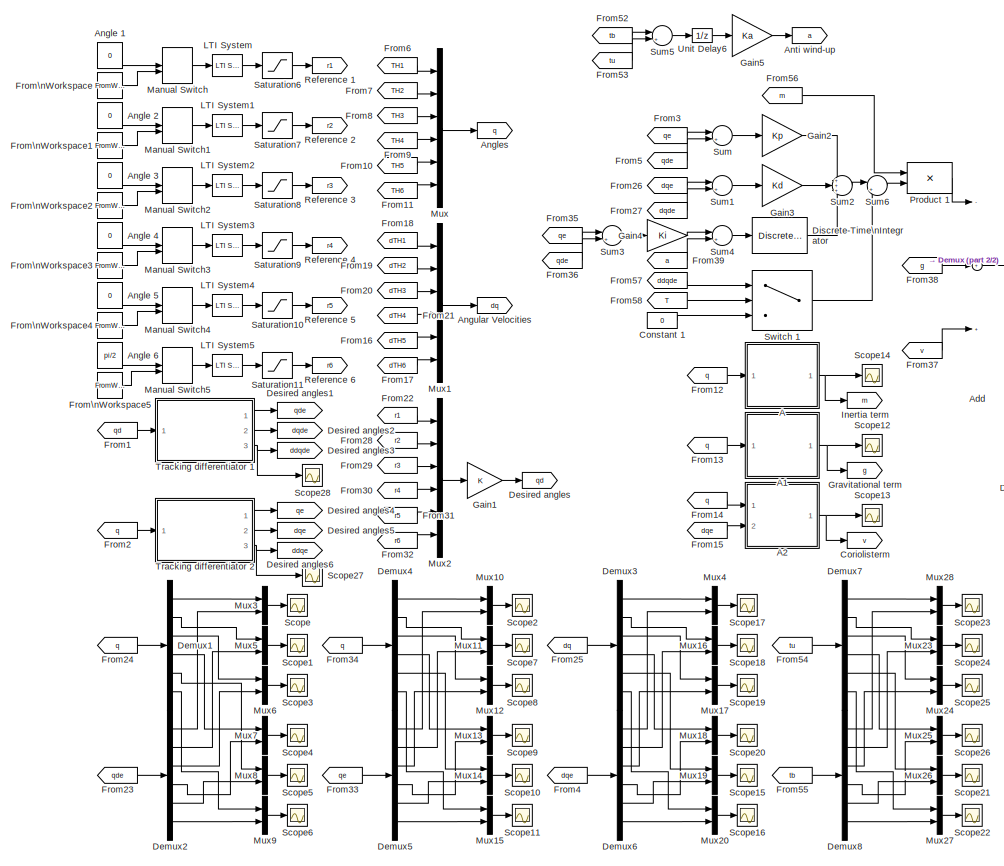
[diagram: root canvas - part 1/2, center side, full height]
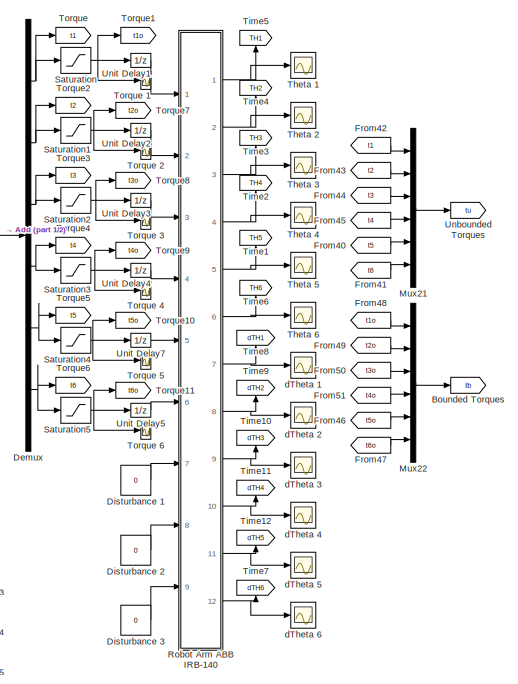
[diagram: root canvas - part 2/2, right side, full height]
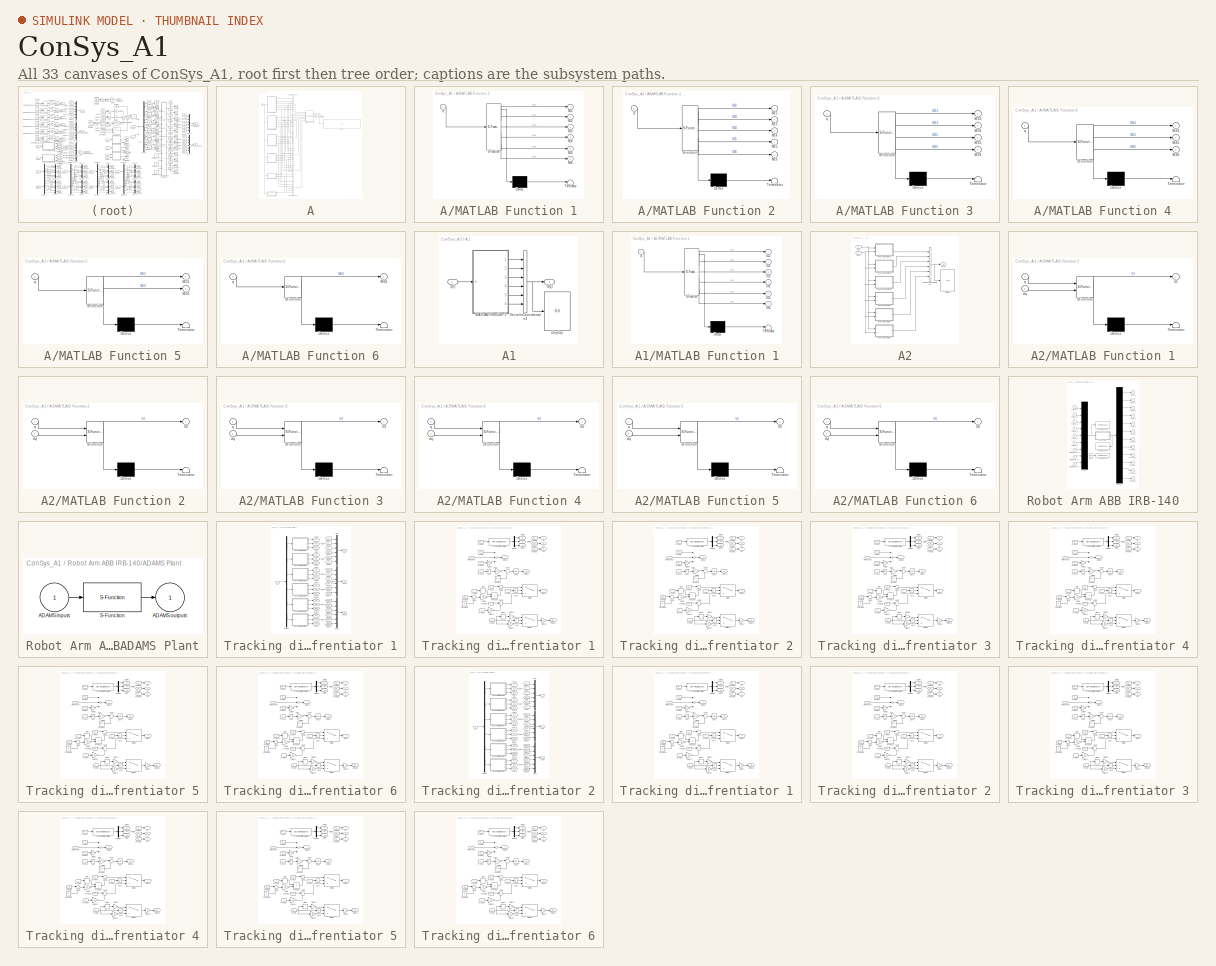
[diagram: thumbnail index - all 33 canvases of the model, root first then tree order]
MODEL ConSys_A1
KIND model
BLOCK [SubSystem] A
  Ports = [1, 1]
  RequestExecContextInheritance = off
  SID = 366
BLOCK [Display] A/Display
  Decimation = 1
  Ports = [1]
  SID = 365
BLOCK [Outport] A/M(q)
  IconDisplay = Port number
  SID = 398
BLOCK [SubSystem] A/MATLAB Function 1
  ErrorFcn = Stateflow.Translate.translate
  PermitHierarchicalResolution = ExplicitOnly
  Ports = [1, 6]
  RequestExecContextInheritance = off
  SFBlockType = MATLAB Function
  SID = 368
  TreatAsAtomicUnit = on
BLOCK [Demux] A/MATLAB Function 1/ Demux 
  Outputs = 1
  Ports = [1, 1]
  SID = 368::13
BLOCK [S-Function] A/MATLAB Function 1/ SFunction 
  EnableBusSupport = on
  FunctionName = sf_sfun
  PortCounts = [1 7]
  Ports = [1, 7]
  SID = 368::12
  Tag = Stateflow S-Function ConSys_A1 2
BLOCK [Terminator] A/MATLAB Function 1/ Terminator 
  SID = 368::14
BLOCK [Outport] A/MATLAB Function 1/M11
  IconDisplay = Port number
  SID = 368::15
BLOCK [Outport] A/MATLAB Function 1/M12
  IconDisplay = Port number
  Port = 2
  SID = 368::16
BLOCK [Outport] A/MATLAB Function 1/M13
  IconDisplay = Port number
  Port = 3
  SID = 368::17
BLOCK [Outport] A/MATLAB Function 1/M14
  IconDisplay = Port number
  Port = 4
  SID = 368::18
BLOCK [Outport] A/MATLAB Function 1/M15
  IconDisplay = Port number
  Port = 5
  SID = 368::19
BLOCK [Outport] A/MATLAB Function 1/M16
  IconDisplay = Port number
  Port = 6
  SID = 368::20
BLOCK [Inport] A/MATLAB Function 1/q
  IconDisplay = Port number
  SID = 368::3
BLOCK [SubSystem] A/MATLAB Function 2
  ErrorFcn = Stateflow.Translate.translate
  PermitHierarchicalResolution = ExplicitOnly
  Ports = [1, 5]
  RequestExecContextInheritance = off
  SFBlockType = MATLAB Function
  SID = 399
  TreatAsAtomicUnit = on
BLOCK [Demux] A/MATLAB Function 2/ Demux 
  Outputs = 1
  Ports = [1, 1]
  SID = 399::13
BLOCK [S-Function] A/MATLAB Function 2/ SFunction 
  EnableBusSupport = on
  FunctionName = sf_sfun
  PortCounts = [1 6]
  Ports = [1, 6]
  SID = 399::12
  Tag = Stateflow S-Function ConSys_A1 1
BLOCK [Terminator] A/MATLAB Function 2/ Terminator 
  SID = 399::14
BLOCK [Outport] A/MATLAB Function 2/M22
  IconDisplay = Port number
  SID = 399::15
BLOCK [Outport] A/MATLAB Function 2/M23
  IconDisplay = Port number
  Port = 2
  SID = 399::16
BLOCK [Outport] A/MATLAB Function 2/M24
  IconDisplay = Port number
  Port = 3
  SID = 399::17
BLOCK [Outport] A/MATLAB Function 2/M25
  IconDisplay = Port number
  Port = 4
  SID = 399::18
BLOCK [Outport] A/MATLAB Function 2/M26
  IconDisplay = Port number
  Port = 5
  SID = 399::19
BLOCK [Inport] A/MATLAB Function 2/q
  IconDisplay = Port number
  SID = 399::3
BLOCK [SubSystem] A/MATLAB Function 3
  ErrorFcn = Stateflow.Translate.translate
  PermitHierarchicalResolution = ExplicitOnly
  Ports = [1, 4]
  RequestExecContextInheritance = off
  SFBlockType = MATLAB Function
  SID = 402
  TreatAsAtomicUnit = on
BLOCK [Demux] A/MATLAB Function 3/ Demux 
  Outputs = 1
  Ports = [1, 1]
  SID = 402::13
BLOCK [S-Function] A/MATLAB Function 3/ SFunction 
  EnableBusSupport = on
  FunctionName = sf_sfun
  PortCounts = [1 5]
  Ports = [1, 5]
  SID = 402::12
  Tag = Stateflow S-Function ConSys_A1 3
BLOCK [Terminator] A/MATLAB Function 3/ Terminator 
  SID = 402::14
BLOCK [Outport] A/MATLAB Function 3/M33
  IconDisplay = Port number
  SID = 402::15
BLOCK [Outport] A/MATLAB Function 3/M34
  IconDisplay = Port number
  Port = 2
  SID = 402::16
BLOCK [Outport] A/MATLAB Function 3/M35
  IconDisplay = Port number
  Port = 3
  SID = 402::17
BLOCK [Outport] A/MATLAB Function 3/M36
  IconDisplay = Port number
  Port = 4
  SID = 402::18
BLOCK [Inport] A/MATLAB Function 3/q
  IconDisplay = Port number
  SID = 402::3
BLOCK [SubSystem] A/MATLAB Function 4
  ErrorFcn = Stateflow.Translate.translate
  PermitHierarchicalResolution = ExplicitOnly
  Ports = [1, 3]
  RequestExecContextInheritance = off
  SFBlockType = MATLAB Function
  SID = 404
  TreatAsAtomicUnit = on
BLOCK [Demux] A/MATLAB Function 4/ Demux 
  Outputs = 1
  Ports = [1, 1]
  SID = 404::13
BLOCK [S-Function] A/MATLAB Function 4/ SFunction 
  EnableBusSupport = on
  FunctionName = sf_sfun
  PortCounts = [1 4]
  Ports = [1, 4]
  SID = 404::12
  Tag = Stateflow S-Function ConSys_A1 4
BLOCK [Terminator] A/MATLAB Function 4/ Terminator 
  SID = 404::14
BLOCK [Outport] A/MATLAB Function 4/M44
  IconDisplay = Port number
  SID = 404::15
BLOCK [Outport] A/MATLAB Function 4/M45
  IconDisplay = Port number
  Port = 2
  SID = 404::16
BLOCK [Outport] A/MATLAB Function 4/M46
  IconDisplay = Port number
  Port = 3
  SID = 404::17
BLOCK [Inport] A/MATLAB Function 4/q
  IconDisplay = Port number
  SID = 404::3
BLOCK [SubSystem] A/MATLAB Function 5
  ErrorFcn = Stateflow.Translate.translate
  PermitHierarchicalResolution = ExplicitOnly
  Ports = [1, 2]
  RequestExecContextInheritance = off
  SFBlockType = MATLAB Function
  SID = 406
  TreatAsAtomicUnit = on
BLOCK [Demux] A/MATLAB Function 5/ Demux 
  Outputs = 1
  Ports = [1, 1]
  SID = 406::13
BLOCK [S-Function] A/MATLAB Function 5/ SFunction 
  EnableBusSupport = on
  FunctionName = sf_sfun
  PortCounts = [1 3]
  Ports = [1, 3]
  SID = 406::12
  Tag = Stateflow S-Function ConSys_A1 5
BLOCK [Terminator] A/MATLAB Function 5/ Terminator 
  SID = 406::14
BLOCK [Outport] A/MATLAB Function 5/M55
  IconDisplay = Port number
  SID = 406::15
BLOCK [Outport] A/MATLAB Function 5/M56
  IconDisplay = Port number
  Port = 2
  SID = 406::16
BLOCK [Inport] A/MATLAB Function 5/q
  IconDisplay = Port number
  SID = 406::3
BLOCK [SubSystem] A/MATLAB Function 6
  ErrorFcn = Stateflow.Translate.translate
  PermitHierarchicalResolution = ExplicitOnly
  Ports = [1, 1]
  RequestExecContextInheritance = off
  SFBlockType = MATLAB Function
  SID = 408
  TreatAsAtomicUnit = on
BLOCK [Demux] A/MATLAB Function 6/ Demux 
  Outputs = 1
  Ports = [1, 1]
  SID = 408::13
BLOCK [S-Function] A/MATLAB Function 6/ SFunction 
  EnableBusSupport = on
  FunctionName = sf_sfun
  PortCounts = [1 2]
  Ports = [1, 2]
  SID = 408::12
  Tag = Stateflow S-Function ConSys_A1 6
BLOCK [Terminator] A/MATLAB Function 6/ Terminator 
  SID = 408::14
BLOCK [Outport] A/MATLAB Function 6/M66
  IconDisplay = Port number
  SID = 408::15
BLOCK [Inport] A/MATLAB Function 6/q
  IconDisplay = Port number
  SID = 408::3
BLOCK [Math] A/Math\nFunction
  Operator = transpose
  Ports = [1, 1]
  SID = 369
BLOCK [Concatenate] A/Matrix\nConcatenate
  ConcatenateDimension = 2
  Mode = Multidimensional array
  NumInputs = 6
  Ports = [6, 1]
  SID = 370
BLOCK [Concatenate] A/Vector\nConcatenate1
  NumInputs = 6
  Ports = [6, 1]
  SID = 401
BLOCK [Concatenate] A/Vector\nConcatenate2
  NumInputs = 6
  Ports = [6, 1]
  SID = 403
BLOCK [Concatenate] A/Vector\nConcatenate3
  NumInputs = 6
  Ports = [6, 1]
  SID = 405
BLOCK [Concatenate] A/Vector\nConcatenate4
  NumInputs = 6
  Ports = [6, 1]
  SID = 400
BLOCK [Concatenate] A/Vector\nConcatenate5
  NumInputs = 6
  Ports = [6, 1]
  SID = 407
BLOCK [Concatenate] A/Vector\nConcatenate6
  NumInputs = 6
  Ports = [6, 1]
  SID = 409
BLOCK [Inport] A/q(t)
  IconDisplay = Port number
  SID = 367
BLOCK [SubSystem] A1
  Ports = [1, 1]
  RequestExecContextInheritance = off
  SID = 410
BLOCK [Display] A1/Display
  Decimation = 1
  Ports = [1]
  SID = 412
BLOCK [Outport] A1/G(q)
  IconDisplay = Port number
  SID = 427
BLOCK [SubSystem] A1/MATLAB Function 1
  ErrorFcn = Stateflow.Translate.translate
  PermitHierarchicalResolution = ExplicitOnly
  Ports = [1, 6]
  RequestExecContextInheritance = off
  SFBlockType = MATLAB Function
  SID = 413
  TreatAsAtomicUnit = on
BLOCK [Demux] A1/MATLAB Function 1/ Demux 
  Outputs = 1
  Ports = [1, 1]
  SID = 413::13
BLOCK [S-Function] A1/MATLAB Function 1/ SFunction 
  EnableBusSupport = on
  FunctionName = sf_sfun
  PortCounts = [1 7]
  Ports = [1, 7]
  SID = 413::12
  Tag = Stateflow S-Function ConSys_A1 7
BLOCK [Terminator] A1/MATLAB Function 1/ Terminator 
  SID = 413::14
BLOCK [Outport] A1/MATLAB Function 1/G11
  IconDisplay = Port number
  SID = 413::15
BLOCK [Outport] A1/MATLAB Function 1/G21
  IconDisplay = Port number
  Port = 2
  SID = 413::16
BLOCK [Outport] A1/MATLAB Function 1/G31
  IconDisplay = Port number
  Port = 3
  SID = 413::17
BLOCK [Outport] A1/MATLAB Function 1/G41
  IconDisplay = Port number
  Port = 4
  SID = 413::18
BLOCK [Outport] A1/MATLAB Function 1/G51
  IconDisplay = Port number
  Port = 5
  SID = 413::19
BLOCK [Outport] A1/MATLAB Function 1/G61
  IconDisplay = Port number
  Port = 6
  SID = 413::20
BLOCK [Inport] A1/MATLAB Function 1/q
  IconDisplay = Port number
  SID = 413::3
BLOCK [Concatenate] A1/Vector\nConcatenate4
  NumInputs = 6
  Ports = [6, 1]
  SID = 424
BLOCK [Inport] A1/q(t)
  IconDisplay = Port number
  SID = 411
BLOCK [SubSystem] A2
  Ports = [2, 1]
  RequestExecContextInheritance = off
  SID = 429
BLOCK [Display] A2/Display
  Decimation = 1
  Ports = [1]
  SID = 431
BLOCK [SubSystem] A2/MATLAB Function 1
  ErrorFcn = Stateflow.Translate.translate
  PermitHierarchicalResolution = ExplicitOnly
  Ports = [2, 1]
  RequestExecContextInheritance = off
  SFBlockType = MATLAB Function
  SID = 432
  TreatAsAtomicUnit = on
BLOCK [Demux] A2/MATLAB Function 1/ Demux 
  Outputs = 1
  Ports = [1, 1]
  SID = 432::13
BLOCK [S-Function] A2/MATLAB Function 1/ SFunction 
  EnableBusSupport = on
  FunctionName = sf_sfun
  PortCounts = [2 2]
  Ports = [2, 2]
  SID = 432::12
  Tag = Stateflow S-Function ConSys_A1 8
BLOCK [Terminator] A2/MATLAB Function 1/ Terminator 
  SID = 432::14
BLOCK [Outport] A2/MATLAB Function 1/V1
  IconDisplay = Port number
  SID = 432::15
BLOCK [Inport] A2/MATLAB Function 1/dq
  IconDisplay = Port number
  Port = 2
  SID = 432::21
BLOCK [Inport] A2/MATLAB Function 1/q
  IconDisplay = Port number
  SID = 432::3
BLOCK [SubSystem] A2/MATLAB Function 2
  ErrorFcn = Stateflow.Translate.translate
  PermitHierarchicalResolution = ExplicitOnly
  Ports = [2, 1]
  RequestExecContextInheritance = off
  SFBlockType = MATLAB Function
  SID = 446
  TreatAsAtomicUnit = on
BLOCK [Demux] A2/MATLAB Function 2/ Demux 
  Outputs = 1
  Ports = [1, 1]
  SID = 446::13
BLOCK [S-Function] A2/MATLAB Function 2/ SFunction 
  EnableBusSupport = on
  FunctionName = sf_sfun
  PortCounts = [2 2]
  Ports = [2, 2]
  SID = 446::12
  Tag = Stateflow S-Function ConSys_A1 9
BLOCK [Terminator] A2/MATLAB Function 2/ Terminator 
  SID = 446::14
BLOCK [Outport] A2/MATLAB Function 2/V2
  IconDisplay = Port number
  SID = 446::15
BLOCK [Inport] A2/MATLAB Function 2/dq
  IconDisplay = Port number
  Port = 2
  SID = 446::21
BLOCK [Inport] A2/MATLAB Function 2/q
  IconDisplay = Port number
  SID = 446::3
BLOCK [SubSystem] A2/MATLAB Function 3
  ErrorFcn = Stateflow.Translate.translate
  PermitHierarchicalResolution = ExplicitOnly
  Ports = [2, 1]
  RequestExecContextInheritance = off
  SFBlockType = MATLAB Function
  SID = 447
  TreatAsAtomicUnit = on
BLOCK [Demux] A2/MATLAB Function 3/ Demux 
  Outputs = 1
  Ports = [1, 1]
  SID = 447::13
BLOCK [S-Function] A2/MATLAB Function 3/ SFunction 
  EnableBusSupport = on
  FunctionName = sf_sfun
  PortCounts = [2 2]
  Ports = [2, 2]
  SID = 447::12
  Tag = Stateflow S-Function ConSys_A1 10
BLOCK [Terminator] A2/MATLAB Function 3/ Terminator 
  SID = 447::14
BLOCK [Outport] A2/MATLAB Function 3/V3
  IconDisplay = Port number
  SID = 447::15
BLOCK [Inport] A2/MATLAB Function 3/dq
  IconDisplay = Port number
  Port = 2
  SID = 447::21
BLOCK [Inport] A2/MATLAB Function 3/q
  IconDisplay = Port number
  SID = 447::3
BLOCK [SubSystem] A2/MATLAB Function 4
  ErrorFcn = Stateflow.Translate.translate
  PermitHierarchicalResolution = ExplicitOnly
  Ports = [2, 1]
  RequestExecContextInheritance = off
  SFBlockType = MATLAB Function
  SID = 448
  TreatAsAtomicUnit = on
BLOCK [Demux] A2/MATLAB Function 4/ Demux 
  Outputs = 1
  Ports = [1, 1]
  SID = 448::13
BLOCK [S-Function] A2/MATLAB Function 4/ SFunction 
  EnableBusSupport = on
  FunctionName = sf_sfun
  PortCounts = [2 2]
  Ports = [2, 2]
  SID = 448::12
  Tag = Stateflow S-Function ConSys_A1 11
BLOCK [Terminator] A2/MATLAB Function 4/ Terminator 
  SID = 448::14
BLOCK [Outport] A2/MATLAB Function 4/V4
  IconDisplay = Port number
  SID = 448::15
BLOCK [Inport] A2/MATLAB Function 4/dq
  IconDisplay = Port number
  Port = 2
  SID = 448::21
BLOCK [Inport] A2/MATLAB Function 4/q
  IconDisplay = Port number
  SID = 448::3
BLOCK [SubSystem] A2/MATLAB Function 5
  ErrorFcn = Stateflow.Translate.translate
  PermitHierarchicalResolution = ExplicitOnly
  Ports = [2, 1]
  RequestExecContextInheritance = off
  SFBlockType = MATLAB Function
  SID = 449
  TreatAsAtomicUnit = on
BLOCK [Demux] A2/MATLAB Function 5/ Demux 
  Outputs = 1
  Ports = [1, 1]
  SID = 449::13
BLOCK [S-Function] A2/MATLAB Function 5/ SFunction 
  EnableBusSupport = on
  FunctionName = sf_sfun
  PortCounts = [2 2]
  Ports = [2, 2]
  SID = 449::12
  Tag = Stateflow S-Function ConSys_A1 12
BLOCK [Terminator] A2/MATLAB Function 5/ Terminator 
  SID = 449::14
BLOCK [Outport] A2/MATLAB Function 5/V5
  IconDisplay = Port number
  SID = 449::15
BLOCK [Inport] A2/MATLAB Function 5/dq
  IconDisplay = Port number
  Port = 2
  SID = 449::21
BLOCK [Inport] A2/MATLAB Function 5/q
  IconDisplay = Port number
  SID = 449::3
BLOCK [SubSystem] A2/MATLAB Function 6
  ErrorFcn = Stateflow.Translate.translate
  PermitHierarchicalResolution = ExplicitOnly
  Ports = [2, 1]
  RequestExecContextInheritance = off
  SFBlockType = MATLAB Function
  SID = 450
  TreatAsAtomicUnit = on
BLOCK [Demux] A2/MATLAB Function 6/ Demux 
  Outputs = 1
  Ports = [1, 1]
  SID = 450::13
BLOCK [S-Function] A2/MATLAB Function 6/ SFunction 
  EnableBusSupport = on
  FunctionName = sf_sfun
  PortCounts = [2 2]
  Ports = [2, 2]
  SID = 450::12
  Tag = Stateflow S-Function ConSys_A1 13
BLOCK [Terminator] A2/MATLAB Function 6/ Terminator 
  SID = 450::14
BLOCK [Outport] A2/MATLAB Function 6/V6
  IconDisplay = Port number
  SID = 450::15
BLOCK [Inport] A2/MATLAB Function 6/dq
  IconDisplay = Port number
  Port = 2
  SID = 450::21
BLOCK [Inport] A2/MATLAB Function 6/q
  IconDisplay = Port number
  SID = 450::3
BLOCK [Outport] A2/V(q)
  IconDisplay = Port number
  SID = 434
BLOCK [Concatenate] A2/Vector\nConcatenate4
  NumInputs = 6
  Ports = [6, 1]
  SID = 433
BLOCK [Inport] A2/dq(t)
  IconDisplay = Port number
  Port = 2
  SID = 436
BLOCK [Inport] A2/q(t)
  IconDisplay = Port number
  SID = 430
BLOCK [Sum] Add
  InputSameDT = off
  Inputs = -++
  OutDataTypeStr = Inherit: Inherit via internal rule
  Ports = [3, 1]
  SID = 1411
  SaturateOnIntegerOverflow = off
BLOCK [Constant] Angle 1
  SID = 2309
  Value = 0
BLOCK [Constant] Angle 2
  SID = 2310
  Value = 0
BLOCK [Constant] Angle 3
  SID = 2311
  Value = 0
BLOCK [Constant] Angle 4
  SID = 2312
  Value = 0
BLOCK [Constant] Angle 5
  SID = 2313
  Value = 0
BLOCK [Constant] Angle 6
  SID = 2314
  Value = pi/2
BLOCK [Goto] Angles
  GotoTag = q
  SID = 363
BLOCK [Goto] Angular Velocities
  GotoTag = dq
  SID = 438
BLOCK [Goto] Anti wind-up
  GotoTag = a
  SID = 2218
BLOCK [Goto] Bounded Torques
  GotoTag = tb
  SID = 2213
BLOCK [Constant] Constant 1
  SID = 2317
  Value = 0
BLOCK [Goto] Coriolisterm
  GotoTag = v
  SID = 2175
BLOCK [Demux] Demux
  DisplayOption = bar
  Outputs = 6
  Ports = [1, 6]
  SID = 465
BLOCK [Demux] Demux1
  DisplayOption = bar
  Outputs = 6
  Ports = [1, 6]
  SID = 1420
BLOCK [Demux] Demux2
  DisplayOption = bar
  Outputs = 6
  Ports = [1, 6]
  SID = 1421
BLOCK [Demux] Demux3
  DisplayOption = bar
  Outputs = 6
  Ports = [1, 6]
  SID = 2146
BLOCK [Demux] Demux4
  DisplayOption = bar
  Outputs = 6
  Ports = [1, 6]
  SID = 1617
BLOCK [Demux] Demux5
  DisplayOption = bar
  Outputs = 6
  Ports = [1, 6]
  SID = 1618
BLOCK [Demux] Demux6
  DisplayOption = bar
  Outputs = 6
  Ports = [1, 6]
  SID = 2147
BLOCK [Demux] Demux7
  DisplayOption = bar
  Outputs = 6
  Ports = [1, 6]
  SID = 2222
BLOCK [Demux] Demux8
  DisplayOption = bar
  Outputs = 6
  Ports = [1, 6]
  SID = 2223
BLOCK [Goto] Desired angles
  GotoTag = qd
  SID = 451
BLOCK [Goto] Desired angles1
  GotoTag = qde
  SID = 1046
BLOCK [Goto] Desired angles2
  GotoTag = dqde
  SID = 1047
BLOCK [Goto] Desired angles3
  GotoTag = ddqde
  SID = 1048
BLOCK [Goto] Desired angles4
  GotoTag = qe
  SID = 1786
BLOCK [Goto] Desired angles5
  GotoTag = dqe
  SID = 1787
BLOCK [Goto] Desired angles6
  GotoTag = ddqe
  SID = 1788
BLOCK [DiscreteIntegrator] Discrete-Time\nIntegrator
  ICPrevOutput = DiscIntNeverNeededParam
  ICPrevScaledInput = DiscIntNeverNeededParam
  InitialCondition = [0 0 0 0 0 0]'
  IntegratorMethod = Integration: Trapezoidal
  Ports = [1, 1]
  SID = 2171
  SampleTime = Ts
BLOCK [Constant] Disturbance 1
  SID = 197
  Value = 0
BLOCK [Constant] Disturbance 2
  SID = 198
  Value = 0
BLOCK [Constant] Disturbance 3
  SID = 1746
  Value = 0
BLOCK [From] From1
  GotoTag = qd
  SID = 805
BLOCK [From] From10
  GotoTag = TH5
  SID = 360
BLOCK [From] From11
  GotoTag = TH6
  SID = 361
BLOCK [From] From12
  GotoTag = q
  SID = 364
BLOCK [From] From13
  GotoTag = q
  SID = 428
BLOCK [From] From14
  GotoTag = q
  SID = 435
BLOCK [From] From15
  GotoTag = dqe
  SID = 437
BLOCK [From] From16
  GotoTag = dTH5
  SID = 439
BLOCK [From] From17
  GotoTag = dTH6
  SID = 440
BLOCK [From] From18
  GotoTag = dTH1
  SID = 441
BLOCK [From] From19
  GotoTag = dTH2
  SID = 442
BLOCK [From] From2
  GotoTag = q
  SID = 1789
BLOCK [From] From20
  GotoTag = dTH3
  SID = 443
BLOCK [From] From21
  GotoTag = dTH4
  SID = 444
BLOCK [From] From22
  GotoTag = r1
  SID = 1611
BLOCK [From] From23
  GotoTag = qde
  SID = 1417
BLOCK [From] From24
  GotoTag = q
  SID = 1418
BLOCK [From] From25
  GotoTag = dq
  SID = 2149
BLOCK [From] From26
  GotoTag = dqe
  SID = 2163
BLOCK [From] From27
  GotoTag = dqde
  SID = 2164
BLOCK [From] From28
  GotoTag = r2
  SID = 1612
BLOCK [From] From29
  GotoTag = r3
  SID = 1613
BLOCK [From] From3
  GotoTag = qe
  SID = 1583
BLOCK [From] From30
  GotoTag = r4
  SID = 1614
BLOCK [From] From31
  GotoTag = r5
  SID = 1615
BLOCK [From] From32
  GotoTag = r6
  SID = 1616
BLOCK [From] From33
  GotoTag = qe
  SID = 1619
BLOCK [From] From34
  GotoTag = q
  SID = 1620
BLOCK [From] From35
  GotoTag = qe
  SID = 2167
BLOCK [From] From36
  GotoTag = qde
  SID = 2168
BLOCK [From] From37
  GotoTag = v
  SID = 2176
BLOCK [From] From38
  GotoTag = g
  SID = 2174
BLOCK [From] From39
  GotoTag = a
  SID = 2196
BLOCK [From] From4
  GotoTag = dqe
  SID = 2148
BLOCK [From] From40
  GotoTag = t5
  SID = 2199
BLOCK [From] From41
  GotoTag = t6
  SID = 2200
BLOCK [From] From42
  GotoTag = t1
  SID = 2201
BLOCK [From] From43
  GotoTag = t2
  SID = 2202
BLOCK [From] From44
  GotoTag = t3
  SID = 2203
BLOCK [From] From45
  GotoTag = t4
  SID = 2204
BLOCK [From] From46
  GotoTag = t5o
  SID = 2206
BLOCK [From] From47
  GotoTag = t6o
  SID = 2207
BLOCK [From] From48
  GotoTag = t1o
  SID = 2208
BLOCK [From] From49
  GotoTag = t2o
  SID = 2209
BLOCK [From] From5
  GotoTag = qde
  SID = 1584
BLOCK [From] From50
  GotoTag = t3o
  SID = 2210
BLOCK [From] From51
  GotoTag = t4o
  SID = 2211
BLOCK [From] From52
  GotoTag = tb
  SID = 2214
BLOCK [From] From53
  GotoTag = tu
  SID = 2215
BLOCK [From] From54
  GotoTag = tu
  SID = 2224
BLOCK [From] From55
  GotoTag = tb
  SID = 2225
BLOCK [From] From56
  GotoTag = m
  SID = 2283
BLOCK [From] From57
  GotoTag = ddqde
  SID = 2284
BLOCK [From] From58
  GotoTag = T
  SID = 2316
BLOCK [From] From6
  GotoTag = TH1
  SID = 356
BLOCK [From] From7
  GotoTag = TH2
  SID = 357
BLOCK [From] From8
  GotoTag = TH3
  SID = 358
BLOCK [From] From9
  GotoTag = TH4
  SID = 359
BLOCK [FromWorkspace] From\nWorkspace
  SID = 2271
  VariableName = R1
  ZeroCross = on
BLOCK [FromWorkspace] From\nWorkspace1
  SID = 2272
  VariableName = R2
  ZeroCross = on
BLOCK [FromWorkspace] From\nWorkspace2
  SID = 2273
  VariableName = R3
  ZeroCross = on
BLOCK [FromWorkspace] From\nWorkspace3
  SID = 2274
  VariableName = R4
  ZeroCross = on
BLOCK [FromWorkspace] From\nWorkspace4
  SID = 2275
  VariableName = R5
  ZeroCross = on
BLOCK [FromWorkspace] From\nWorkspace5
  SID = 2276
  VariableName = R6
  ZeroCross = on
BLOCK [Gain] Gain1
  OutDataTypeStr = Inherit: Inherit via internal rule
  ParamDataTypeStr = Inherit: Inherit via internal rule
  SID = 2145
  SaturateOnIntegerOverflow = off
BLOCK [Gain] Gain2
  Gain = Kp
  Multiplication = Matrix(K*u)
  OutDataTypeStr = Inherit: Inherit via internal rule
  ParamDataTypeStr = Inherit: Inherit via internal rule
  SID = 2162
  SaturateOnIntegerOverflow = off
BLOCK [Gain] Gain3
  Gain = Kd
  Multiplication = Matrix(K*u)
  OutDataTypeStr = Inherit: Inherit via internal rule
  ParamDataTypeStr = Inherit: Inherit via internal rule
  SID = 2165
  SaturateOnIntegerOverflow = off
BLOCK [Gain] Gain4
  Gain = Ki
  Multiplication = Matrix(K*u)
  OutDataTypeStr = Inherit: Inherit via internal rule
  ParamDataTypeStr = Inherit: Inherit via internal rule
  SID = 2169
  SaturateOnIntegerOverflow = off
BLOCK [Gain] Gain5
  Gain = Ka
  Multiplication = Matrix(K*u)
  OutDataTypeStr = Inherit: Inherit via internal rule
  ParamDataTypeStr = Inherit: Inherit via internal rule
  SID = 2217
  SaturateOnIntegerOverflow = off
BLOCK [Goto] Gravitational term
  GotoTag = g
  SID = 2173
BLOCK [Goto] Inertia term
  GotoTag = m
  SID = 2197
BLOCK [Reference] LTI System  REF=cstblocks/LTI System
  IC = []
  Ports = [1, 1]
  SID = 1634
  SourceBlock = cstblocks/LTI System
  SourceType = LTI Block
  sys = F1z
BLOCK [Reference] LTI System1  REF=cstblocks/LTI System
  IC = []
  Ports = [1, 1]
  SID = 1635
  SourceBlock = cstblocks/LTI System
  SourceType = LTI Block
  sys = F2z
BLOCK [Reference] LTI System2  REF=cstblocks/LTI System
  IC = []
  Ports = [1, 1]
  SID = 1636
  SourceBlock = cstblocks/LTI System
  SourceType = LTI Block
  sys = F3z
BLOCK [Reference] LTI System3  REF=cstblocks/LTI System
  IC = []
  Ports = [1, 1]
  SID = 1637
  SourceBlock = cstblocks/LTI System
  SourceType = LTI Block
  sys = F4z
BLOCK [Reference] LTI System4  REF=cstblocks/LTI System
  IC = []
  Ports = [1, 1]
  SID = 1638
  SourceBlock = cstblocks/LTI System
  SourceType = LTI Block
  sys = F5z
BLOCK [Reference] LTI System5  REF=cstblocks/LTI System
  IC = []
  Ports = [1, 1]
  SID = 1639
  SourceBlock = cstblocks/LTI System
  SourceType = LTI Block
  sys = F6z
BLOCK [ManualSwitch] Manual Switch
  CurrentSetting = 0
  SID = 1589
BLOCK [ManualSwitch] Manual Switch1
  CurrentSetting = 0
  SID = 1592
BLOCK [ManualSwitch] Manual Switch2
  CurrentSetting = 0
  SID = 1596
BLOCK [ManualSwitch] Manual Switch3
  CurrentSetting = 0
  SID = 1600
BLOCK [ManualSwitch] Manual Switch4
  CurrentSetting = 0
  SID = 1604
BLOCK [ManualSwitch] Manual Switch5
  CurrentSetting = 0
  SID = 1608
BLOCK [Mux] Mux
  DisplayOption = bar
  Inputs = 6
  Ports = [6, 1]
  SID = 362
BLOCK [Mux] Mux1
  DisplayOption = bar
  Inputs = 6
  Ports = [6, 1]
  SID = 445
BLOCK [Mux] Mux10
  DisplayOption = bar
  Inputs = 2
  Ports = [2, 1]
  SID = 1621
BLOCK [Mux] Mux11
  DisplayOption = bar
  Inputs = 2
  Ports = [2, 1]
  SID = 1622
BLOCK [Mux] Mux12
  DisplayOption = bar
  Inputs = 2
  Ports = [2, 1]
  SID = 1623
BLOCK [Mux] Mux13
  DisplayOption = bar
  Inputs = 2
  Ports = [2, 1]
  SID = 1624
BLOCK [Mux] Mux14
  DisplayOption = bar
  Inputs = 2
  Ports = [2, 1]
  SID = 1625
BLOCK [Mux] Mux15
  DisplayOption = bar
  Inputs = 2
  Ports = [2, 1]
  SID = 1626
BLOCK [Mux] Mux16
  DisplayOption = bar
  Inputs = 2
  Ports = [2, 1]
  SID = 2151
BLOCK [Mux] Mux17
  DisplayOption = bar
  Inputs = 2
  Ports = [2, 1]
  SID = 2152
BLOCK [Mux] Mux18
  DisplayOption = bar
  Inputs = 2
  Ports = [2, 1]
  SID = 2153
BLOCK [Mux] Mux19
  DisplayOption = bar
  Inputs = 2
  Ports = [2, 1]
  SID = 2154
BLOCK [Mux] Mux2
  DisplayOption = bar
  Inputs = 6
  Ports = [6, 1]
  SID = 458
BLOCK [Mux] Mux20
  DisplayOption = bar
  Inputs = 2
  Ports = [2, 1]
  SID = 2155
BLOCK [Mux] Mux21
  DisplayOption = bar
  Inputs = 6
  Ports = [6, 1]
  SID = 2205
BLOCK [Mux] Mux22
  DisplayOption = bar
  Inputs = 6
  Ports = [6, 1]
  SID = 2212
BLOCK [Mux] Mux23
  DisplayOption = bar
  Inputs = 2
  Ports = [2, 1]
  SID = 2226
BLOCK [Mux] Mux24
  DisplayOption = bar
  Inputs = 2
  Ports = [2, 1]
  SID = 2227
BLOCK [Mux] Mux25
  DisplayOption = bar
  Inputs = 2
  Ports = [2, 1]
  SID = 2228
BLOCK [Mux] Mux26
  DisplayOption = bar
  Inputs = 2
  Ports = [2, 1]
  SID = 2229
BLOCK [Mux] Mux27
  DisplayOption = bar
  Inputs = 2
  Ports = [2, 1]
  SID = 2230
BLOCK [Mux] Mux28
  DisplayOption = bar
  Inputs = 2
  Ports = [2, 1]
  SID = 2231
BLOCK [Mux] Mux3
  DisplayOption = bar
  Inputs = 2
  Ports = [2, 1]
  SID = 1422
BLOCK [Mux] Mux4
  DisplayOption = bar
  Inputs = 2
  Ports = [2, 1]
  SID = 2150
BLOCK [Mux] Mux5
  DisplayOption = bar
  Inputs = 2
  Ports = [2, 1]
  SID = 1492
BLOCK [Mux] Mux6
  DisplayOption = bar
  Inputs = 2
  Ports = [2, 1]
  SID = 1494
BLOCK [Mux] Mux7
  DisplayOption = bar
  Inputs = 2
  Ports = [2, 1]
  SID = 1495
BLOCK [Mux] Mux8
  DisplayOption = bar
  Inputs = 2
  Ports = [2, 1]
  SID = 1498
BLOCK [Mux] Mux9
  DisplayOption = bar
  Inputs = 2
  Ports = [2, 1]
  SID = 1499
BLOCK [Product] Product 1
  InputSameDT = off
  Multiplication = Matrix(*)
  OutDataTypeStr = Inherit: Inherit via internal rule
  Ports = [2, 1]
  RndMeth = Floor
  SID = 2281
  SaturateOnIntegerOverflow = off
BLOCK [Goto] Reference 1
  GotoTag = r1
  SID = 1590
BLOCK [Goto] Reference 2
  GotoTag = r2
  SID = 1593
BLOCK [Goto] Reference 3
  GotoTag = r3
  SID = 1597
BLOCK [Goto] Reference 4
  GotoTag = r4
  SID = 1601
BLOCK [Goto] Reference 5
  GotoTag = r5
  SID = 1605
BLOCK [Goto] Reference 6
  GotoTag = r6
  SID = 1609
BLOCK [SubSystem] Robot Arm ABB IRB-140
  Ports = [9, 12]
  RequestExecContextInheritance = off
  SID = 2318
  ShowPortLabels = none
BLOCK [SubSystem] Robot Arm ABB IRB-140/ADAMS Plant
  InitFcn = clear mex
  LoadFcn = %check based on dialog box setting for when setting by popup menu                                             \nif exist('ADAMS_solver_type')                                                                                 \n  if strcmp(ADAMS_solver_type,'C++')                                                                          \n    set_param(gcb,'exetyp','C++');                              ...<+4531ch>
  OpenFcn = open_system(gcb,'mask')                                                                                                                          \nif not(exist('set_some_params_states'))                                                                                                          \n                                                                                                          ...<+634ch>
  Ports = [1, 1]
  RequestExecContextInheritance = off
  SID = 2328
BLOCK [Inport] Robot Arm ABB IRB-140/ADAMS Plant/ADAMS inputs
  IconDisplay = Port number
  SID = 2329
BLOCK [Outport] Robot Arm ABB IRB-140/ADAMS Plant/ADAMS outputs
  IconDisplay = Port number
  InitialOutput = 0
  SID = 2331
BLOCK [S-Function] Robot Arm ABB IRB-140/ADAMS Plant/S-Function
  EnableBusSupport = off
  FunctionName = adams_plant
  Parameters = exevie,exesol,stat,outfil,nampre,o_rate,nam_in,namout,dft,modsim,modani,dt_out,inicmd,exetyp,comtyp,ada_host, workdir,pin_interp_order,pout_extrap_order,pin_extrap_order,pout_interp_order,simulink_lead_cosim
  Ports = [1, 1]
  SID = 2330
  StopFcn = clear mex
BLOCK [Clock] Robot Arm ABB IRB-140/Clock
  SID = 2332
BLOCK [Demux] Robot Arm ABB IRB-140/Demux
  Outputs = 12
  Ports = [1, 12]
  SID = 2333
BLOCK [Inport] Robot Arm ABB IRB-140/Disturbance_1
  IconDisplay = Port number
  Port = 7
  SID = 2325
BLOCK [Inport] Robot Arm ABB IRB-140/Disturbance_2
  IconDisplay = Port number
  Port = 8
  SID = 2326
BLOCK [Inport] Robot Arm ABB IRB-140/Disturbance_3
  IconDisplay = Port number
  Port = 9
  SID = 2327
BLOCK [Mux] Robot Arm ABB IRB-140/Mux
  Inputs = 9
  Ports = [9, 1]
  SID = 2334
BLOCK [ToWorkspace] Robot Arm ABB IRB-140/T To Workspace
  MaxDataPoints = 100000
  Ports = [1]
  SID = 2335
  VariableName = ADAMS_tout
BLOCK [Outport] Robot Arm ABB IRB-140/Theta_1
  IconDisplay = Port number
  SID = 2338
BLOCK [Outport] Robot Arm ABB IRB-140/Theta_2
  IconDisplay = Port number
  Port = 2
  SID = 2339
BLOCK [Outport] Robot Arm ABB IRB-140/Theta_3
  IconDisplay = Port number
  Port = 3
  SID = 2340
BLOCK [Outport] Robot Arm ABB IRB-140/Theta_4
  IconDisplay = Port number
  Port = 4
  SID = 2341
BLOCK [Outport] Robot Arm ABB IRB-140/Theta_5
  IconDisplay = Port number
  Port = 5
  SID = 2342
BLOCK [Outport] Robot Arm ABB IRB-140/Theta_6
  IconDisplay = Port number
  Port = 6
  SID = 2343
BLOCK [Inport] Robot Arm ABB IRB-140/Torque_1
  IconDisplay = Port number
  SID = 2319
BLOCK [Inport] Robot Arm ABB IRB-140/Torque_2
  IconDisplay = Port number
  Port = 2
  SID = 2320
BLOCK [Inport] Robot Arm ABB IRB-140/Torque_3
  IconDisplay = Port number
  Port = 3
  SID = 2321
BLOCK [Inport] Robot Arm ABB IRB-140/Torque_4
  IconDisplay = Port number
  Port = 4
  SID = 2322
BLOCK [Inport] Robot Arm ABB IRB-140/Torque_5
  IconDisplay = Port number
  Port = 5
  SID = 2323
BLOCK [Inport] Robot Arm ABB IRB-140/Torque_6
  IconDisplay = Port number
  Port = 6
  SID = 2324
BLOCK [ToWorkspace] Robot Arm ABB IRB-140/U To Workspace
  MaxDataPoints = 100000
  Ports = [1]
  SID = 2336
  VariableName = ADAMS_uout
BLOCK [ToWorkspace] Robot Arm ABB IRB-140/Y To Workspace
  MaxDataPoints = 100000
  Ports = [1]
  SID = 2337
  VariableName = ADAMS_yout
BLOCK [Outport] Robot Arm ABB IRB-140/dTheta_1
  IconDisplay = Port number
  Port = 7
  SID = 2344
BLOCK [Outport] Robot Arm ABB IRB-140/dTheta_2
  IconDisplay = Port number
  Port = 8
  SID = 2345
BLOCK [Outport] Robot Arm ABB IRB-140/dTheta_3
  IconDisplay = Port number
  Port = 9
  SID = 2346
BLOCK [Outport] Robot Arm ABB IRB-140/dTheta_4
  IconDisplay = Port number
  Port = 10
  SID = 2347
BLOCK [Outport] Robot Arm ABB IRB-140/dTheta_5
  IconDisplay = Port number
  Port = 11
  SID = 2348
BLOCK [Outport] Robot Arm ABB IRB-140/dTheta_6
  IconDisplay = Port number
  Port = 12
  SID = 2349
BLOCK [Saturate] Saturation
  InputPortMap = u0
  LowerLimit = -400
  Ports = [1, 1]
  SID = 1429
  UpperLimit = 400
BLOCK [Saturate] Saturation1
  InputPortMap = u0
  LowerLimit = -300
  Ports = [1, 1]
  SID = 1431
  UpperLimit = 300
BLOCK [Saturate] Saturation10
  InputPortMap = u0
  LowerLimit = -120
  Ports = [1, 1]
  SID = 1643
  UpperLimit = 120
BLOCK [Saturate] Saturation11
  InputPortMap = u0
  LowerLimit = -400
  Ports = [1, 1]
  SID = 1644
  UpperLimit = 400
BLOCK [Saturate] Saturation2
  InputPortMap = u0
  LowerLimit = -250
  Ports = [1, 1]
  SID = 1432
  UpperLimit = 250
BLOCK [Saturate] Saturation3
  InputPortMap = u0
  LowerLimit = -50
  Ports = [1, 1]
  SID = 1433
  UpperLimit = 50
BLOCK [Saturate] Saturation4
  InputPortMap = u0
  LowerLimit = -8
  Ports = [1, 1]
  SID = 1434
  UpperLimit = 8
BLOCK [Saturate] Saturation5
  InputPortMap = u0
  LowerLimit = -0.3
  Ports = [1, 1]
  SID = 1435
  UpperLimit = 0.3
BLOCK [Saturate] Saturation6
  InputPortMap = u0
  LowerLimit = -180
  Ports = [1, 1]
  SID = 1633
  UpperLimit = 180
BLOCK [Saturate] Saturation7
  InputPortMap = u0
  LowerLimit = -100
  Ports = [1, 1]
  SID = 1640
  UpperLimit = 100
BLOCK [Saturate] Saturation8
  InputPortMap = u0
  LowerLimit = -140
  Ports = [1, 1]
  SID = 1641
  UpperLimit = 140
BLOCK [Saturate] Saturation9
  InputPortMap = u0
  LowerLimit = -200*pi/180
  Ports = [1, 1]
  SID = 1642
  UpperLimit = 200*pi/180
BLOCK [Scope] Scope
  DataFormat = StructureWithTime
  Floating = off
  LimitDataPoints = off
  NumInputPorts = 1
  Ports = [1]
  SID = 1419
  SampleTime = 0
  SaveName = ScopeData18
  ShowLegends = off
  YMax = 2
  YMin = -2
BLOCK [Scope] Scope1
  DataFormat = StructureWithTime
  Floating = off
  LimitDataPoints = off
  NumInputPorts = 1
  Ports = [1]
  SID = 1493
  SampleTime = 0
  SaveName = ScopeData19
  ShowLegends = off
  YMax = 3
  YMin = -3
  ZoomMode = xonly
BLOCK [Scope] Scope10
  DataFormat = StructureWithTime
  Floating = off
  LimitDataPoints = off
  NumInputPorts = 1
  Ports = [1]
  SID = 1631
  SampleTime = 0
  SaveName = ScopeData20
  ShowLegends = off
  YMax = 2
  YMin = -2
  ZoomMode = xonly
BLOCK [Scope] Scope11
  DataFormat = StructureWithTime
  Floating = off
  LimitDataPoints = off
  NumInputPorts = 1
  Ports = [1]
  SID = 1632
  SampleTime = 0
  SaveName = ScopeData25
  ShowLegends = off
  YMin = -2
  ZoomMode = xonly
BLOCK [Scope] Scope12
  DataFormat = StructureWithTime
  Floating = off
  LimitDataPoints = off
  NumInputPorts = 1
  Ports = [1]
  SID = 2141
  SampleTime = 0
  SaveName = ScopeData30
  ShowLegends = off
  YMax = 4
  YMin = -2
BLOCK [Scope] Scope13
  DataFormat = StructureWithTime
  Floating = off
  LimitDataPoints = off
  NumInputPorts = 1
  Ports = [1]
  SID = 2142
  SampleTime = 0
  SaveName = ScopeData31
  ShowLegends = off
  YMax = 4
  YMin = -2
BLOCK [Scope] Scope14
  DataFormat = StructureWithTime
  Floating = off
  LimitDataPoints = off
  NumInputPorts = 1
  Ports = [1]
  SID = 2143
  SampleTime = 0
  SaveName = ScopeData32
  ShowLegends = off
  YMax = 4
  YMin = -2
BLOCK [Scope] Scope15
  DataFormat = StructureWithTime
  Floating = off
  LimitDataPoints = off
  NumInputPorts = 1
  Ports = [1]
  SID = 2156
  SampleTime = 0
  SaveName = ScopeData33
  ShowLegends = off
  YMax = 2
  YMin = -2
  ZoomMode = xonly
BLOCK [Scope] Scope16
  DataFormat = StructureWithTime
  Floating = off
  LimitDataPoints = off
  NumInputPorts = 1
  Ports = [1]
  SID = 2157
  SampleTime = 0
  SaveName = ScopeData34
  ShowLegends = off
  YMin = -2
  ZoomMode = xonly
BLOCK [Scope] Scope17
  DataFormat = StructureWithTime
  Floating = off
  LimitDataPoints = off
  NumInputPorts = 1
  Ports = [1]
  SID = 2158
  SampleTime = 0
  SaveName = ScopeData35
  ShowLegends = off
  YMax = 2
  YMin = -1
BLOCK [Scope] Scope18
  DataFormat = StructureWithTime
  Floating = off
  LimitDataPoints = off
  NumInputPorts = 1
  Ports = [1]
  SID = 2159
  SampleTime = 0
  SaveName = ScopeData36
  ShowLegends = off
  YMax = 2
  YMin = -1
  ZoomMode = xonly
BLOCK [Scope] Scope19
  DataFormat = StructureWithTime
  Floating = off
  LimitDataPoints = off
  NumInputPorts = 1
  Ports = [1]
  SID = 2160
  SampleTime = 0
  SaveName = ScopeData37
  ShowLegends = off
  YMax = 2
  YMin = -1
  ZoomMode = xonly
BLOCK [Scope] Scope2
  DataFormat = StructureWithTime
  Floating = off
  LimitDataPoints = off
  NumInputPorts = 1
  Ports = [1]
  SID = 1627
  SampleTime = 0
  SaveName = ScopeData26
  ShowLegends = off
  YMax = 2
  YMin = -1
BLOCK [Scope] Scope20
  DataFormat = StructureWithTime
  Floating = off
  LimitDataPoints = off
  NumInputPorts = 1
  Ports = [1]
  SID = 2161
  SampleTime = 0
  SaveName = ScopeData38
  ShowLegends = off
  YMax = 2
  YMin = -1
  ZoomMode = xonly
BLOCK [Scope] Scope21
  DataFormat = StructureWithTime
  Floating = off
  LimitDataPoints = off
  NumInputPorts = 1
  Ports = [1]
  SID = 2232
  SampleTime = 0
  SaveName = ScopeData39
  ShowLegends = off
  YMax = 2
  YMin = -2
  ZoomMode = xonly
BLOCK [Scope] Scope22
  DataFormat = StructureWithTime
  Floating = off
  LimitDataPoints = off
  NumInputPorts = 1
  Ports = [1]
  SID = 2233
  SampleTime = 0
  SaveName = ScopeData40
  ShowLegends = off
  YMax = 1
  YMin = -1
  ZoomMode = xonly
BLOCK [Scope] Scope23
  DataFormat = StructureWithTime
  Floating = off
  LimitDataPoints = off
  NumInputPorts = 1
  Ports = [1]
  SID = 2234
  SampleTime = 0
  SaveName = ScopeData41
  ShowLegends = off
  YMax = 2
  YMin = -1
BLOCK [Scope] Scope24
  DataFormat = StructureWithTime
  Floating = off
  LimitDataPoints = off
  NumInputPorts = 1
  Ports = [1]
  SID = 2235
  SampleTime = 0
  SaveName = ScopeData42
  ShowLegends = off
  YMax = 2
  YMin = -1
  ZoomMode = xonly
BLOCK [Scope] Scope25
  DataFormat = StructureWithTime
  Floating = off
  LimitDataPoints = off
  NumInputPorts = 1
  Ports = [1]
  SID = 2236
  SampleTime = 0
  SaveName = ScopeData43
  ShowLegends = off
  YMax = 2
  YMin = -1
  ZoomMode = xonly
BLOCK [Scope] Scope26
  DataFormat = StructureWithTime
  Floating = off
  LimitDataPoints = off
  NumInputPorts = 1
  Ports = [1]
  SID = 2237
  SampleTime = 0
  SaveName = ScopeData44
  ShowLegends = off
  YMax = 2
  YMin = -1
  ZoomMode = xonly
BLOCK [Scope] Scope27
  DataFormat = StructureWithTime
  Floating = off
  LimitDataPoints = off
  NumInputPorts = 1
  Ports = [1]
  SID = 2285
  SampleTime = 0
  SaveName = ScopeData45
  ShowLegends = off
  YMax = 2
  YMin = -2
BLOCK [Scope] Scope28
  DataFormat = StructureWithTime
  Floating = off
  LimitDataPoints = off
  NumInputPorts = 1
  Ports = [1]
  SID = 2286
  SampleTime = 0
  SaveName = ScopeData46
  ShowLegends = off
  YMax = 20
  YMin = -20
BLOCK [Scope] Scope3
  DataFormat = StructureWithTime
  Floating = off
  LimitDataPoints = off
  NumInputPorts = 1
  Ports = [1]
  SID = 1496
  SampleTime = 0
  SaveName = ScopeData21
  ShowLegends = off
  YMax = 2
  YMin = -2
  ZoomMode = xonly
BLOCK [Scope] Scope4
  DataFormat = StructureWithTime
  Floating = off
  LimitDataPoints = off
  NumInputPorts = 1
  Ports = [1]
  SID = 1497
  SampleTime = 0
  SaveName = ScopeData22
  ShowLegends = off
  YMax = 2
  YMin = -2
  ZoomMode = xonly
BLOCK [Scope] Scope5
  DataFormat = StructureWithTime
  Floating = off
  LimitDataPoints = off
  NumInputPorts = 1
  Ports = [1]
  SID = 1500
  SampleTime = 0
  SaveName = ScopeData23
  ShowLegends = off
  YMax = 2
  YMin = -2
  ZoomMode = yonly
BLOCK [Scope] Scope6
  DataFormat = StructureWithTime
  Floating = off
  LimitDataPoints = off
  NumInputPorts = 1
  Ports = [1]
  SID = 1501
  SampleTime = 0
  SaveName = ScopeData24
  ShowLegends = off
  ZoomMode = yonly
BLOCK [Scope] Scope7
  DataFormat = StructureWithTime
  Floating = off
  LimitDataPoints = off
  NumInputPorts = 1
  Ports = [1]
  SID = 1628
  SampleTime = 0
  SaveName = ScopeData27
  ShowLegends = off
  YMax = 2
  YMin = -1
  ZoomMode = xonly
BLOCK [Scope] Scope8
  DataFormat = StructureWithTime
  Floating = off
  LimitDataPoints = off
  NumInputPorts = 1
  Ports = [1]
  SID = 1629
  SampleTime = 0
  SaveName = ScopeData28
  ShowLegends = off
  YMax = 2
  YMin = -1
  ZoomMode = xonly
BLOCK [Scope] Scope9
  DataFormat = StructureWithTime
  Floating = off
  LimitDataPoints = off
  NumInputPorts = 1
  Ports = [1]
  SID = 1630
  SampleTime = 0
  SaveName = ScopeData29
  ShowLegends = off
  YMax = 2
  YMin = -1
  ZoomMode = xonly
BLOCK [Sum] Sum
  IconShape = round
  InputSameDT = off
  Inputs = |+-
  OutDataTypeStr = Inherit: Inherit via internal rule
  Ports = [2, 1]
  SID = 1585
  SaturateOnIntegerOverflow = off
BLOCK [Sum] Sum1
  IconShape = round
  InputSameDT = off
  Inputs = |+-
  OutDataTypeStr = Inherit: Inherit via internal rule
  Ports = [2, 1]
  SID = 2166
  SaturateOnIntegerOverflow = off
BLOCK [Sum] Sum2
  IconShape = round
  InputSameDT = off
  Inputs = +++
  OutDataTypeStr = Inherit: Inherit via internal rule
  Ports = [3, 1]
  SID = 2282
  SaturateOnIntegerOverflow = off
BLOCK [Sum] Sum3
  IconShape = round
  InputSameDT = off
  Inputs = |+-
  OutDataTypeStr = Inherit: Inherit via internal rule
  Ports = [2, 1]
  SID = 2170
  SaturateOnIntegerOverflow = off
BLOCK [Sum] Sum4
  IconShape = round
  InputSameDT = off
  Inputs = |++
  OutDataTypeStr = Inherit: Inherit via internal rule
  Ports = [2, 1]
  SID = 2195
  SaturateOnIntegerOverflow = off
BLOCK [Sum] Sum5
  IconShape = round
  InputSameDT = off
  Inputs = |+-
  OutDataTypeStr = Inherit: Inherit via internal rule
  Ports = [2, 1]
  SID = 2216
  SaturateOnIntegerOverflow = off
BLOCK [Sum] Sum6
  IconShape = round
  InputSameDT = off
  Inputs = |+-
  OutDataTypeStr = Inherit: Inherit via internal rule
  Ports = [2, 1]
  SID = 2299
  SaturateOnIntegerOverflow = off
BLOCK [Switch] Switch 1
  Criteria = u2 > Threshold
  InputSameDT = off
  SID = 2315
  SaturateOnIntegerOverflow = off
  Threshold = 5
BLOCK [Scope] Theta 1
  Floating = off
  LimitDataPoints = off
  NumInputPorts = 1
  Ports = [1]
  SID = 1
  SaveName = ScopeData1
  ShowLegends = off
  YMax = 0.6
  YMin = -0.6
  ZoomMode = xonly
BLOCK [Scope] Theta 2
  Floating = off
  LimitDataPoints = off
  NumInputPorts = 1
  Ports = [1]
  SID = 2
  SaveName = ScopeData2
  ShowLegends = off
  YMax = 1
  YMin = -1
BLOCK [Scope] Theta 3
  Floating = off
  LimitDataPoints = off
  NumInputPorts = 1
  Ports = [1]
  SID = 3
  SaveName = ScopeData3
  ShowLegends = off
BLOCK [Scope] Theta 4
  Floating = off
  LimitDataPoints = off
  NumInputPorts = 1
  Ports = [1]
  SID = 4
  SaveName = ScopeData4
  ShowLegends = off
BLOCK [Scope] Theta 5
  Floating = off
  LimitDataPoints = off
  NumInputPorts = 1
  Ports = [1]
  SID = 5
  SaveName = ScopeData5
  ShowLegends = off
BLOCK [Scope] Theta 6
  Floating = off
  LimitDataPoints = off
  NumInputPorts = 1
  Ports = [1]
  SID = 6
  ShowLegends = off
  YMax = 100
  YMin = -100
BLOCK [Goto] Time1
  GotoTag = TH5
  SID = 184
BLOCK [Goto] Time10
  GotoTag = dTH3
  SID = 349
BLOCK [Goto] Time11
  GotoTag = dTH4
  SID = 351
BLOCK [Goto] Time12
  GotoTag = dTH5
  SID = 353
BLOCK [Goto] Time2
  GotoTag = TH4
  SID = 185
BLOCK [Goto] Time3
  GotoTag = TH3
  SID = 186
BLOCK [Goto] Time4
  GotoTag = TH2
  SID = 187
BLOCK [Goto] Time5
  GotoTag = TH1
  SID = 188
BLOCK [Goto] Time6
  GotoTag = TH6
  SID = 183
BLOCK [Goto] Time7
  GotoTag = dTH6
  SID = 344
BLOCK [Goto] Time8
  GotoTag = dTH1
  SID = 345
BLOCK [Goto] Time9
  GotoTag = dTH2
  SID = 347
BLOCK [Goto] Torque
  GotoTag = t1
  SID = 2177
BLOCK [Scope] Torque 1
  Floating = off
  LimitDataPoints = off
  NumInputPorts = 1
  Ports = [1]
  SID = 279
  SaveName = ScopeData6
  ShowLegends = off
  YMax = 400
  YMin = -400
BLOCK [Scope] Torque 2
  Floating = off
  LimitDataPoints = off
  NumInputPorts = 1
  Ports = [1]
  SID = 2187
  SaveName = ScopeData7
  ShowLegends = off
  YMax = 400
  YMin = -400
BLOCK [Scope] Torque 3
  Floating = off
  LimitDataPoints = off
  NumInputPorts = 1
  Ports = [1]
  SID = 2188
  SaveName = ScopeData8
  ShowLegends = off
  YMax = 400
  YMin = -400
BLOCK [Scope] Torque 4
  Floating = off
  LimitDataPoints = off
  NumInputPorts = 1
  Ports = [1]
  SID = 2189
  SaveName = ScopeData9
  ShowLegends = off
  YMax = 20
  YMin = -20
BLOCK [Scope] Torque 5
  Floating = off
  LimitDataPoints = off
  NumInputPorts = 1
  Ports = [1]
  SID = 2190
  SaveName = ScopeData10
  ShowLegends = off
  YMax = 400
  YMin = -400
BLOCK [Scope] Torque 6
  Floating = off
  LimitDataPoints = off
  NumInputPorts = 1
  Ports = [1]
  SID = 2191
  SaveName = ScopeData11
  ShowLegends = off
  YMax = 0.3
  YMin = -0.3
BLOCK [Goto] Torque1
  GotoTag = t1o
  SID = 2178
BLOCK [Goto] Torque10
  GotoTag = t5o
  SID = 2193
BLOCK [Goto] Torque11
  GotoTag = t6o
  SID = 2194
BLOCK [Goto] Torque2
  GotoTag = t2
  SID = 2179
BLOCK [Goto] Torque3
  GotoTag = t3
  SID = 2180
BLOCK [Goto] Torque4
  GotoTag = t4
  SID = 2181
BLOCK [Goto] Torque5
  GotoTag = t5
  SID = 2182
BLOCK [Goto] Torque6
  GotoTag = t6
  SID = 2183
BLOCK [Goto] Torque7
  GotoTag = t2o
  SID = 2184
BLOCK [Goto] Torque8
  GotoTag = t3o
  SID = 2185
BLOCK [Goto] Torque9
  GotoTag = t4o
  SID = 2192
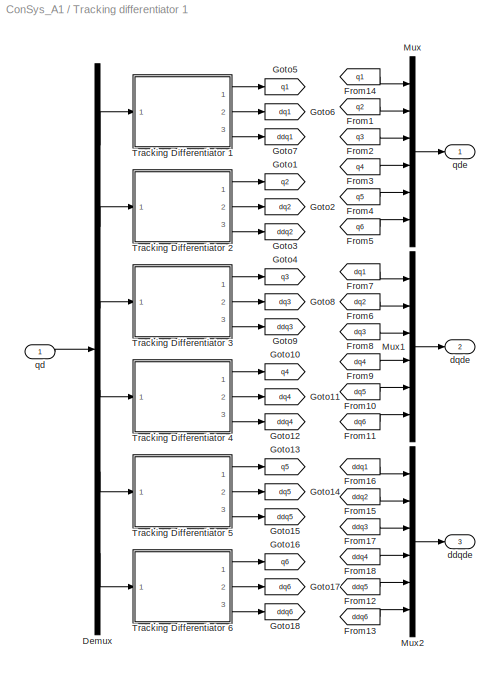
BLOCK [SubSystem] Tracking differentiator 1
  Ports = [1, 3]
  RequestExecContextInheritance = off
  SID = 797
BLOCK [Demux] Tracking differentiator 1/Demux
  DisplayOption = bar
  Outputs = 6
  Ports = [1, 6]
  SID = 808
BLOCK [From] Tracking differentiator 1/From1
  GotoTag = q2
  SID = 1027
BLOCK [From] Tracking differentiator 1/From10
  GotoTag = dq5
  SID = 1037
BLOCK [From] Tracking differentiator 1/From11
  GotoTag = dq6
  SID = 1038
BLOCK [From] Tracking differentiator 1/From12
  GotoTag = ddq5
  SID = 1039
BLOCK [From] Tracking differentiator 1/From13
  GotoTag = ddq6
  SID = 1040
BLOCK [From] Tracking differentiator 1/From14
  GotoTag = q1
  SID = 1026
BLOCK [From] Tracking differentiator 1/From15
  GotoTag = ddq2
  SID = 1041
BLOCK [From] Tracking differentiator 1/From16
  GotoTag = ddq1
  SID = 1042
BLOCK [From] Tracking differentiator 1/From17
  GotoTag = ddq3
  SID = 1043
BLOCK [From] Tracking differentiator 1/From18
  GotoTag = ddq4
  SID = 1044
BLOCK [From] Tracking differentiator 1/From2
  GotoTag = q3
  SID = 1028
BLOCK [From] Tracking differentiator 1/From3
  GotoTag = q4
  SID = 1029
BLOCK [From] Tracking differentiator 1/From4
  GotoTag = q5
  SID = 1030
BLOCK [From] Tracking differentiator 1/From5
  GotoTag = q6
  SID = 1031
BLOCK [From] Tracking differentiator 1/From6
  GotoTag = dq2
  SID = 1033
BLOCK [From] Tracking differentiator 1/From7
  GotoTag = dq1
  SID = 1034
BLOCK [From] Tracking differentiator 1/From8
  GotoTag = dq3
  SID = 1035
BLOCK [From] Tracking differentiator 1/From9
  GotoTag = dq4
  SID = 1036
BLOCK [Goto] Tracking differentiator 1/Goto1
  GotoTag = q2
  SID = 527
BLOCK [Goto] Tracking differentiator 1/Goto10
  GotoTag = q4
  SID = 863
BLOCK [Goto] Tracking differentiator 1/Goto11
  GotoTag = dq4
  SID = 864
BLOCK [Goto] Tracking differentiator 1/Goto12
  GotoTag = ddq4
  SID = 865
BLOCK [Goto] Tracking differentiator 1/Goto13
  GotoTag = q5
  SID = 917
BLOCK [Goto] Tracking differentiator 1/Goto14
  GotoTag = dq5
  SID = 918
BLOCK [Goto] Tracking differentiator 1/Goto15
  GotoTag = ddq5
  SID = 919
BLOCK [Goto] Tracking differentiator 1/Goto16
  GotoTag = q6
  SID = 971
BLOCK [Goto] Tracking differentiator 1/Goto17
  GotoTag = dq6
  SID = 972
BLOCK [Goto] Tracking differentiator 1/Goto18
  GotoTag = ddq6
  SID = 973
BLOCK [Goto] Tracking differentiator 1/Goto2
  GotoTag = dq2
  SID = 528
BLOCK [Goto] Tracking differentiator 1/Goto3
  GotoTag = ddq2
  SID = 529
BLOCK [Goto] Tracking differentiator 1/Goto4
  GotoTag = q3
  SID = 809
BLOCK [Goto] Tracking differentiator 1/Goto5
  GotoTag = q1
  SID = 473
BLOCK [Goto] Tracking differentiator 1/Goto6
  GotoTag = dq1
  SID = 474
BLOCK [Goto] Tracking differentiator 1/Goto7
  GotoTag = ddq1
  SID = 475
BLOCK [Goto] Tracking differentiator 1/Goto8
  GotoTag = dq3
  SID = 810
BLOCK [Goto] Tracking differentiator 1/Goto9
  GotoTag = ddq3
  SID = 811
BLOCK [Mux] Tracking differentiator 1/Mux
  DisplayOption = bar
  Inputs = 6
  Ports = [6, 1]
  SID = 1025
BLOCK [Mux] Tracking differentiator 1/Mux1
  DisplayOption = bar
  Inputs = 6
  Ports = [6, 1]
  SID = 1032
BLOCK [Mux] Tracking differentiator 1/Mux2
  DisplayOption = bar
  Inputs = 6
  Ports = [6, 1]
  SID = 1045
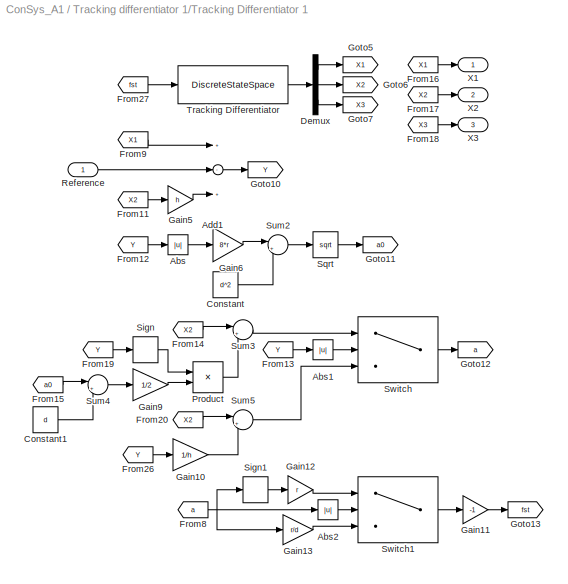
BLOCK [SubSystem] Tracking differentiator 1/Tracking Differentiator 1
  Ports = [1, 3]
  RequestExecContextInheritance = off
  SID = 476
BLOCK [Abs] Tracking differentiator 1/Tracking Differentiator 1/Abs
  SID = 478
  SaturateOnIntegerOverflow = off
BLOCK [Abs] Tracking differentiator 1/Tracking Differentiator 1/Abs1
  SID = 479
  SaturateOnIntegerOverflow = off
BLOCK [Abs] Tracking differentiator 1/Tracking Differentiator 1/Abs2
  SID = 480
  SaturateOnIntegerOverflow = off
BLOCK [Sum] Tracking differentiator 1/Tracking Differentiator 1/Add1
  InputSameDT = off
  Inputs = +-+
  OutDataTypeStr = Inherit: Inherit via internal rule
  Ports = [3, 1]
  SID = 481
  SaturateOnIntegerOverflow = off
BLOCK [Constant] Tracking differentiator 1/Tracking Differentiator 1/Constant
  SID = 482
  Value = d^2
BLOCK [Constant] Tracking differentiator 1/Tracking Differentiator 1/Constant1
  SID = 483
  Value = d
BLOCK [Demux] Tracking differentiator 1/Tracking Differentiator 1/Demux
  DisplayOption = bar
  Outputs = 3
  Ports = [1, 3]
  SID = 484
BLOCK [From] Tracking differentiator 1/Tracking Differentiator 1/From11
  GotoTag = X2
  SID = 485
BLOCK [From] Tracking differentiator 1/Tracking Differentiator 1/From12
  GotoTag = Y
  SID = 486
BLOCK [From] Tracking differentiator 1/Tracking Differentiator 1/From13
  GotoTag = Y
  SID = 487
BLOCK [From] Tracking differentiator 1/Tracking Differentiator 1/From14
  GotoTag = X2
  SID = 488
BLOCK [From] Tracking differentiator 1/Tracking Differentiator 1/From15
  GotoTag = a0
  SID = 489
BLOCK [From] Tracking differentiator 1/Tracking Differentiator 1/From16
  GotoTag = X1
  SID = 490
BLOCK [From] Tracking differentiator 1/Tracking Differentiator 1/From17
  GotoTag = X2
  SID = 491
BLOCK [From] Tracking differentiator 1/Tracking Differentiator 1/From18
  GotoTag = X3
  SID = 492
BLOCK [From] Tracking differentiator 1/Tracking Differentiator 1/From19
  GotoTag = Y
  SID = 493
BLOCK [From] Tracking differentiator 1/Tracking Differentiator 1/From20
  GotoTag = X2
  SID = 494
BLOCK [From] Tracking differentiator 1/Tracking Differentiator 1/From26
  GotoTag = Y
  SID = 495
BLOCK [From] Tracking differentiator 1/Tracking Differentiator 1/From27
  GotoTag = fst
  SID = 496
BLOCK [From] Tracking differentiator 1/Tracking Differentiator 1/From8
  GotoTag = a
  SID = 497
BLOCK [From] Tracking differentiator 1/Tracking Differentiator 1/From9
  GotoTag = X1
  SID = 498
BLOCK [Gain] Tracking differentiator 1/Tracking Differentiator 1/Gain10
  Gain = 1/h
  OutDataTypeStr = Inherit: Inherit via internal rule
  ParamDataTypeStr = Inherit: Inherit via internal rule
  SID = 499
  SaturateOnIntegerOverflow = off
BLOCK [Gain] Tracking differentiator 1/Tracking Differentiator 1/Gain11
  Gain = -1
  OutDataTypeStr = Inherit: Inherit via internal rule
  ParamDataTypeStr = Inherit: Inherit via internal rule
  SID = 500
  SaturateOnIntegerOverflow = off
BLOCK [Gain] Tracking differentiator 1/Tracking Differentiator 1/Gain12
  Gain = r
  OutDataTypeStr = Inherit: Inherit via internal rule
  ParamDataTypeStr = Inherit: Inherit via internal rule
  SID = 501
  SaturateOnIntegerOverflow = off
BLOCK [Gain] Tracking differentiator 1/Tracking Differentiator 1/Gain13
  Gain = r/d
  OutDataTypeStr = Inherit: Inherit via internal rule
  ParamDataTypeStr = Inherit: Inherit via internal rule
  SID = 502
  SaturateOnIntegerOverflow = off
BLOCK [Gain] Tracking differentiator 1/Tracking Differentiator 1/Gain5
  Gain = h
  OutDataTypeStr = Inherit: Inherit via internal rule
  ParamDataTypeStr = Inherit: Inherit via internal rule
  SID = 503
  SaturateOnIntegerOverflow = off
BLOCK [Gain] Tracking differentiator 1/Tracking Differentiator 1/Gain6
  Gain = 8*r
  OutDataTypeStr = Inherit: Inherit via internal rule
  ParamDataTypeStr = Inherit: Inherit via internal rule
  SID = 504
  SaturateOnIntegerOverflow = off
BLOCK [Gain] Tracking differentiator 1/Tracking Differentiator 1/Gain9
  Gain = 1/2
  OutDataTypeStr = Inherit: Inherit via internal rule
  ParamDataTypeStr = Inherit: Inherit via internal rule
  SID = 505
  SaturateOnIntegerOverflow = off
BLOCK [Goto] Tracking differentiator 1/Tracking Differentiator 1/Goto10
  GotoTag = Y
  SID = 506
BLOCK [Goto] Tracking differentiator 1/Tracking Differentiator 1/Goto11
  GotoTag = a0
  SID = 507
BLOCK [Goto] Tracking differentiator 1/Tracking Differentiator 1/Goto12
  GotoTag = a
  SID = 508
BLOCK [Goto] Tracking differentiator 1/Tracking Differentiator 1/Goto13
  GotoTag = fst
  SID = 509
BLOCK [Goto] Tracking differentiator 1/Tracking Differentiator 1/Goto5
  GotoTag = X1
  SID = 510
BLOCK [Goto] Tracking differentiator 1/Tracking Differentiator 1/Goto6
  GotoTag = X2
  SID = 511
BLOCK [Goto] Tracking differentiator 1/Tracking Differentiator 1/Goto7
  GotoTag = X3
  SID = 512
BLOCK [Product] Tracking differentiator 1/Tracking Differentiator 1/Product
  InputSameDT = off
  OutDataTypeStr = Inherit: Inherit via internal rule
  Ports = [2, 1]
  RndMeth = Floor
  SID = 513
  SaturateOnIntegerOverflow = off
BLOCK [Inport] Tracking differentiator 1/Tracking Differentiator 1/Reference
  IconDisplay = Port number
  SID = 477
BLOCK [Signum] Tracking differentiator 1/Tracking Differentiator 1/Sign
  SID = 514
BLOCK [Signum] Tracking differentiator 1/Tracking Differentiator 1/Sign1
  SID = 515
BLOCK [Sqrt] Tracking differentiator 1/Tracking Differentiator 1/Sqrt
  SID = 516
BLOCK [Sum] Tracking differentiator 1/Tracking Differentiator 1/Sum2
  IconShape = round
  InputSameDT = off
  Inputs = |++
  OutDataTypeStr = Inherit: Inherit via internal rule
  Ports = [2, 1]
  SID = 517
  SaturateOnIntegerOverflow = off
BLOCK [Sum] Tracking differentiator 1/Tracking Differentiator 1/Sum3
  IconShape = round
  InputSameDT = off
  Inputs = |++
  OutDataTypeStr = Inherit: Inherit via internal rule
  Ports = [2, 1]
  SID = 518
  SaturateOnIntegerOverflow = off
BLOCK [Sum] Tracking differentiator 1/Tracking Differentiator 1/Sum4
  IconShape = round
  InputSameDT = off
  Inputs = |+-
  OutDataTypeStr = Inherit: Inherit via internal rule
  Ports = [2, 1]
  SID = 519
  SaturateOnIntegerOverflow = off
BLOCK [Sum] Tracking differentiator 1/Tracking Differentiator 1/Sum5
  IconShape = round
  InputSameDT = off
  Inputs = |++
  OutDataTypeStr = Inherit: Inherit via internal rule
  Ports = [2, 1]
  SID = 520
  SaturateOnIntegerOverflow = off
BLOCK [Switch] Tracking differentiator 1/Tracking Differentiator 1/Switch
  Criteria = u2 > Threshold
  InputSameDT = off
  SID = 521
  SaturateOnIntegerOverflow = off
  Threshold = d0
BLOCK [Switch] Tracking differentiator 1/Tracking Differentiator 1/Switch1
  Criteria = u2 > Threshold
  InputSameDT = off
  SID = 522
  SaturateOnIntegerOverflow = off
  Threshold = d
BLOCK [DiscreteStateSpace] Tracking differentiator 1/Tracking Differentiator 1/Tracking Differentiator
  A = TD.a
  B = TD.b
  C = TD.c
  D = TD.d
  SID = 523
  SampleTime = Ts
BLOCK [Outport] Tracking differentiator 1/Tracking Differentiator 1/X1
  IconDisplay = Port number
  SID = 524
BLOCK [Outport] Tracking differentiator 1/Tracking Differentiator 1/X2
  IconDisplay = Port number
  Port = 2
  SID = 525
BLOCK [Outport] Tracking differentiator 1/Tracking Differentiator 1/X3
  IconDisplay = Port number
  Port = 3
  SID = 526
BLOCK [SubSystem] Tracking differentiator 1/Tracking Differentiator 2
  Ports = [1, 3]
  RequestExecContextInheritance = off
  SID = 530
BLOCK [Abs] Tracking differentiator 1/Tracking Differentiator 2/Abs
  SID = 532
  SaturateOnIntegerOverflow = off
BLOCK [Abs] Tracking differentiator 1/Tracking Differentiator 2/Abs1
  SID = 533
  SaturateOnIntegerOverflow = off
BLOCK [Abs] Tracking differentiator 1/Tracking Differentiator 2/Abs2
  SID = 534
  SaturateOnIntegerOverflow = off
BLOCK [Sum] Tracking differentiator 1/Tracking Differentiator 2/Add1
  InputSameDT = off
  Inputs = +-+
  OutDataTypeStr = Inherit: Inherit via internal rule
  Ports = [3, 1]
  SID = 535
  SaturateOnIntegerOverflow = off
BLOCK [Constant] Tracking differentiator 1/Tracking Differentiator 2/Constant
  SID = 536
  Value = d^2
BLOCK [Constant] Tracking differentiator 1/Tracking Differentiator 2/Constant1
  SID = 537
  Value = d
BLOCK [Demux] Tracking differentiator 1/Tracking Differentiator 2/Demux
  DisplayOption = bar
  Outputs = 3
  Ports = [1, 3]
  SID = 538
BLOCK [From] Tracking differentiator 1/Tracking Differentiator 2/From11
  GotoTag = X2
  SID = 539
BLOCK [From] Tracking differentiator 1/Tracking Differentiator 2/From12
  GotoTag = Y
  SID = 540
BLOCK [From] Tracking differentiator 1/Tracking Differentiator 2/From13
  GotoTag = Y
  SID = 541
BLOCK [From] Tracking differentiator 1/Tracking Differentiator 2/From14
  GotoTag = X2
  SID = 542
BLOCK [From] Tracking differentiator 1/Tracking Differentiator 2/From15
  GotoTag = a0
  SID = 543
BLOCK [From] Tracking differentiator 1/Tracking Differentiator 2/From16
  GotoTag = X1
  SID = 544
BLOCK [From] Tracking differentiator 1/Tracking Differentiator 2/From17
  GotoTag = X2
  SID = 545
BLOCK [From] Tracking differentiator 1/Tracking Differentiator 2/From18
  GotoTag = X3
  SID = 546
BLOCK [From] Tracking differentiator 1/Tracking Differentiator 2/From19
  GotoTag = Y
  SID = 547
BLOCK [From] Tracking differentiator 1/Tracking Differentiator 2/From20
  GotoTag = X2
  SID = 548
BLOCK [From] Tracking differentiator 1/Tracking Differentiator 2/From26
  GotoTag = Y
  SID = 549
BLOCK [From] Tracking differentiator 1/Tracking Differentiator 2/From27
  GotoTag = fst
  SID = 550
BLOCK [From] Tracking differentiator 1/Tracking Differentiator 2/From8
  GotoTag = a
  SID = 551
BLOCK [From] Tracking differentiator 1/Tracking Differentiator 2/From9
  GotoTag = X1
  SID = 552
BLOCK [Gain] Tracking differentiator 1/Tracking Differentiator 2/Gain10
  Gain = 1/h
  OutDataTypeStr = Inherit: Inherit via internal rule
  ParamDataTypeStr = Inherit: Inherit via internal rule
  SID = 553
  SaturateOnIntegerOverflow = off
BLOCK [Gain] Tracking differentiator 1/Tracking Differentiator 2/Gain11
  Gain = -1
  OutDataTypeStr = Inherit: Inherit via internal rule
  ParamDataTypeStr = Inherit: Inherit via internal rule
  SID = 554
  SaturateOnIntegerOverflow = off
BLOCK [Gain] Tracking differentiator 1/Tracking Differentiator 2/Gain12
  Gain = r
  OutDataTypeStr = Inherit: Inherit via internal rule
  ParamDataTypeStr = Inherit: Inherit via internal rule
  SID = 555
  SaturateOnIntegerOverflow = off
BLOCK [Gain] Tracking differentiator 1/Tracking Differentiator 2/Gain13
  Gain = r/d
  OutDataTypeStr = Inherit: Inherit via internal rule
  ParamDataTypeStr = Inherit: Inherit via internal rule
  SID = 556
  SaturateOnIntegerOverflow = off
BLOCK [Gain] Tracking differentiator 1/Tracking Differentiator 2/Gain5
  Gain = h
  OutDataTypeStr = Inherit: Inherit via internal rule
  ParamDataTypeStr = Inherit: Inherit via internal rule
  SID = 557
  SaturateOnIntegerOverflow = off
BLOCK [Gain] Tracking differentiator 1/Tracking Differentiator 2/Gain6
  Gain = 8*r
  OutDataTypeStr = Inherit: Inherit via internal rule
  ParamDataTypeStr = Inherit: Inherit via internal rule
  SID = 558
  SaturateOnIntegerOverflow = off
BLOCK [Gain] Tracking differentiator 1/Tracking Differentiator 2/Gain9
  Gain = 1/2
  OutDataTypeStr = Inherit: Inherit via internal rule
  ParamDataTypeStr = Inherit: Inherit via internal rule
  SID = 559
  SaturateOnIntegerOverflow = off
BLOCK [Goto] Tracking differentiator 1/Tracking Differentiator 2/Goto10
  GotoTag = Y
  SID = 560
BLOCK [Goto] Tracking differentiator 1/Tracking Differentiator 2/Goto11
  GotoTag = a0
  SID = 561
BLOCK [Goto] Tracking differentiator 1/Tracking Differentiator 2/Goto12
  GotoTag = a
  SID = 562
BLOCK [Goto] Tracking differentiator 1/Tracking Differentiator 2/Goto13
  GotoTag = fst
  SID = 563
BLOCK [Goto] Tracking differentiator 1/Tracking Differentiator 2/Goto5
  GotoTag = X1
  SID = 564
BLOCK [Goto] Tracking differentiator 1/Tracking Differentiator 2/Goto6
  GotoTag = X2
  SID = 565
BLOCK [Goto] Tracking differentiator 1/Tracking Differentiator 2/Goto7
  GotoTag = X3
  SID = 566
BLOCK [Product] Tracking differentiator 1/Tracking Differentiator 2/Product
  InputSameDT = off
  OutDataTypeStr = Inherit: Inherit via internal rule
  Ports = [2, 1]
  RndMeth = Floor
  SID = 567
  SaturateOnIntegerOverflow = off
BLOCK [Inport] Tracking differentiator 1/Tracking Differentiator 2/Reference
  IconDisplay = Port number
  SID = 531
BLOCK [Signum] Tracking differentiator 1/Tracking Differentiator 2/Sign
  SID = 568
BLOCK [Signum] Tracking differentiator 1/Tracking Differentiator 2/Sign1
  SID = 569
BLOCK [Sqrt] Tracking differentiator 1/Tracking Differentiator 2/Sqrt
  SID = 570
BLOCK [Sum] Tracking differentiator 1/Tracking Differentiator 2/Sum2
  IconShape = round
  InputSameDT = off
  Inputs = |++
  OutDataTypeStr = Inherit: Inherit via internal rule
  Ports = [2, 1]
  SID = 571
  SaturateOnIntegerOverflow = off
BLOCK [Sum] Tracking differentiator 1/Tracking Differentiator 2/Sum3
  IconShape = round
  InputSameDT = off
  Inputs = |++
  OutDataTypeStr = Inherit: Inherit via internal rule
  Ports = [2, 1]
  SID = 572
  SaturateOnIntegerOverflow = off
BLOCK [Sum] Tracking differentiator 1/Tracking Differentiator 2/Sum4
  IconShape = round
  InputSameDT = off
  Inputs = |+-
  OutDataTypeStr = Inherit: Inherit via internal rule
  Ports = [2, 1]
  SID = 573
  SaturateOnIntegerOverflow = off
BLOCK [Sum] Tracking differentiator 1/Tracking Differentiator 2/Sum5
  IconShape = round
  InputSameDT = off
  Inputs = |++
  OutDataTypeStr = Inherit: Inherit via internal rule
  Ports = [2, 1]
  SID = 574
  SaturateOnIntegerOverflow = off
BLOCK [Switch] Tracking differentiator 1/Tracking Differentiator 2/Switch
  Criteria = u2 > Threshold
  InputSameDT = off
  SID = 575
  SaturateOnIntegerOverflow = off
  Threshold = d0
BLOCK [Switch] Tracking differentiator 1/Tracking Differentiator 2/Switch1
  Criteria = u2 > Threshold
  InputSameDT = off
  SID = 576
  SaturateOnIntegerOverflow = off
  Threshold = d
BLOCK [DiscreteStateSpace] Tracking differentiator 1/Tracking Differentiator 2/Tracking Differentiator
  A = TD.a
  B = TD.b
  C = TD.c
  D = TD.d
  SID = 577
  SampleTime = Ts
BLOCK [Outport] Tracking differentiator 1/Tracking Differentiator 2/X1
  IconDisplay = Port number
  SID = 578
BLOCK [Outport] Tracking differentiator 1/Tracking Differentiator 2/X2
  IconDisplay = Port number
  Port = 2
  SID = 579
BLOCK [Outport] Tracking differentiator 1/Tracking Differentiator 2/X3
  IconDisplay = Port number
  Port = 3
  SID = 580
BLOCK [SubSystem] Tracking differentiator 1/Tracking Differentiator 3
  Ports = [1, 3]
  RequestExecContextInheritance = off
  SID = 812
BLOCK [Abs] Tracking differentiator 1/Tracking Differentiator 3/Abs
  SID = 814
  SaturateOnIntegerOverflow = off
BLOCK [Abs] Tracking differentiator 1/Tracking Differentiator 3/Abs1
  SID = 815
  SaturateOnIntegerOverflow = off
BLOCK [Abs] Tracking differentiator 1/Tracking Differentiator 3/Abs2
  SID = 816
  SaturateOnIntegerOverflow = off
BLOCK [Sum] Tracking differentiator 1/Tracking Differentiator 3/Add1
  InputSameDT = off
  Inputs = +-+
  OutDataTypeStr = Inherit: Inherit via internal rule
  Ports = [3, 1]
  SID = 817
  SaturateOnIntegerOverflow = off
BLOCK [Constant] Tracking differentiator 1/Tracking Differentiator 3/Constant
  SID = 818
  Value = d^2
BLOCK [Constant] Tracking differentiator 1/Tracking Differentiator 3/Constant1
  SID = 819
  Value = d
BLOCK [Demux] Tracking differentiator 1/Tracking Differentiator 3/Demux
  DisplayOption = bar
  Outputs = 3
  Ports = [1, 3]
  SID = 820
BLOCK [From] Tracking differentiator 1/Tracking Differentiator 3/From11
  GotoTag = X2
  SID = 821
BLOCK [From] Tracking differentiator 1/Tracking Differentiator 3/From12
  GotoTag = Y
  SID = 822
BLOCK [From] Tracking differentiator 1/Tracking Differentiator 3/From13
  GotoTag = Y
  SID = 823
BLOCK [From] Tracking differentiator 1/Tracking Differentiator 3/From14
  GotoTag = X2
  SID = 824
BLOCK [From] Tracking differentiator 1/Tracking Differentiator 3/From15
  GotoTag = a0
  SID = 825
BLOCK [From] Tracking differentiator 1/Tracking Differentiator 3/From16
  GotoTag = X1
  SID = 826
BLOCK [From] Tracking differentiator 1/Tracking Differentiator 3/From17
  GotoTag = X2
  SID = 827
BLOCK [From] Tracking differentiator 1/Tracking Differentiator 3/From18
  GotoTag = X3
  SID = 828
BLOCK [From] Tracking differentiator 1/Tracking Differentiator 3/From19
  GotoTag = Y
  SID = 829
BLOCK [From] Tracking differentiator 1/Tracking Differentiator 3/From20
  GotoTag = X2
  SID = 830
BLOCK [From] Tracking differentiator 1/Tracking Differentiator 3/From26
  GotoTag = Y
  SID = 831
BLOCK [From] Tracking differentiator 1/Tracking Differentiator 3/From27
  GotoTag = fst
  SID = 832
BLOCK [From] Tracking differentiator 1/Tracking Differentiator 3/From8
  GotoTag = a
  SID = 833
BLOCK [From] Tracking differentiator 1/Tracking Differentiator 3/From9
  GotoTag = X1
  SID = 834
BLOCK [Gain] Tracking differentiator 1/Tracking Differentiator 3/Gain10
  Gain = 1/h
  OutDataTypeStr = Inherit: Inherit via internal rule
  ParamDataTypeStr = Inherit: Inherit via internal rule
  SID = 835
  SaturateOnIntegerOverflow = off
BLOCK [Gain] Tracking differentiator 1/Tracking Differentiator 3/Gain11
  Gain = -1
  OutDataTypeStr = Inherit: Inherit via internal rule
  ParamDataTypeStr = Inherit: Inherit via internal rule
  SID = 836
  SaturateOnIntegerOverflow = off
BLOCK [Gain] Tracking differentiator 1/Tracking Differentiator 3/Gain12
  Gain = r
  OutDataTypeStr = Inherit: Inherit via internal rule
  ParamDataTypeStr = Inherit: Inherit via internal rule
  SID = 837
  SaturateOnIntegerOverflow = off
BLOCK [Gain] Tracking differentiator 1/Tracking Differentiator 3/Gain13
  Gain = r/d
  OutDataTypeStr = Inherit: Inherit via internal rule
  ParamDataTypeStr = Inherit: Inherit via internal rule
  SID = 838
  SaturateOnIntegerOverflow = off
BLOCK [Gain] Tracking differentiator 1/Tracking Differentiator 3/Gain5
  Gain = h
  OutDataTypeStr = Inherit: Inherit via internal rule
  ParamDataTypeStr = Inherit: Inherit via internal rule
  SID = 839
  SaturateOnIntegerOverflow = off
BLOCK [Gain] Tracking differentiator 1/Tracking Differentiator 3/Gain6
  Gain = 8*r
  OutDataTypeStr = Inherit: Inherit via internal rule
  ParamDataTypeStr = Inherit: Inherit via internal rule
  SID = 840
  SaturateOnIntegerOverflow = off
BLOCK [Gain] Tracking differentiator 1/Tracking Differentiator 3/Gain9
  Gain = 1/2
  OutDataTypeStr = Inherit: Inherit via internal rule
  ParamDataTypeStr = Inherit: Inherit via internal rule
  SID = 841
  SaturateOnIntegerOverflow = off
BLOCK [Goto] Tracking differentiator 1/Tracking Differentiator 3/Goto10
  GotoTag = Y
  SID = 842
BLOCK [Goto] Tracking differentiator 1/Tracking Differentiator 3/Goto11
  GotoTag = a0
  SID = 843
BLOCK [Goto] Tracking differentiator 1/Tracking Differentiator 3/Goto12
  GotoTag = a
  SID = 844
BLOCK [Goto] Tracking differentiator 1/Tracking Differentiator 3/Goto13
  GotoTag = fst
  SID = 845
BLOCK [Goto] Tracking differentiator 1/Tracking Differentiator 3/Goto5
  GotoTag = X1
  SID = 846
BLOCK [Goto] Tracking differentiator 1/Tracking Differentiator 3/Goto6
  GotoTag = X2
  SID = 847
BLOCK [Goto] Tracking differentiator 1/Tracking Differentiator 3/Goto7
  GotoTag = X3
  SID = 848
BLOCK [Product] Tracking differentiator 1/Tracking Differentiator 3/Product
  InputSameDT = off
  OutDataTypeStr = Inherit: Inherit via internal rule
  Ports = [2, 1]
  RndMeth = Floor
  SID = 849
  SaturateOnIntegerOverflow = off
BLOCK [Inport] Tracking differentiator 1/Tracking Differentiator 3/Reference
  IconDisplay = Port number
  SID = 813
BLOCK [Signum] Tracking differentiator 1/Tracking Differentiator 3/Sign
  SID = 850
BLOCK [Signum] Tracking differentiator 1/Tracking Differentiator 3/Sign1
  SID = 851
BLOCK [Sqrt] Tracking differentiator 1/Tracking Differentiator 3/Sqrt
  SID = 852
BLOCK [Sum] Tracking differentiator 1/Tracking Differentiator 3/Sum2
  IconShape = round
  InputSameDT = off
  Inputs = |++
  OutDataTypeStr = Inherit: Inherit via internal rule
  Ports = [2, 1]
  SID = 853
  SaturateOnIntegerOverflow = off
BLOCK [Sum] Tracking differentiator 1/Tracking Differentiator 3/Sum3
  IconShape = round
  InputSameDT = off
  Inputs = |++
  OutDataTypeStr = Inherit: Inherit via internal rule
  Ports = [2, 1]
  SID = 854
  SaturateOnIntegerOverflow = off
BLOCK [Sum] Tracking differentiator 1/Tracking Differentiator 3/Sum4
  IconShape = round
  InputSameDT = off
  Inputs = |+-
  OutDataTypeStr = Inherit: Inherit via internal rule
  Ports = [2, 1]
  SID = 855
  SaturateOnIntegerOverflow = off
BLOCK [Sum] Tracking differentiator 1/Tracking Differentiator 3/Sum5
  IconShape = round
  InputSameDT = off
  Inputs = |++
  OutDataTypeStr = Inherit: Inherit via internal rule
  Ports = [2, 1]
  SID = 856
  SaturateOnIntegerOverflow = off
BLOCK [Switch] Tracking differentiator 1/Tracking Differentiator 3/Switch
  Criteria = u2 > Threshold
  InputSameDT = off
  SID = 857
  SaturateOnIntegerOverflow = off
  Threshold = d0
BLOCK [Switch] Tracking differentiator 1/Tracking Differentiator 3/Switch1
  Criteria = u2 > Threshold
  InputSameDT = off
  SID = 858
  SaturateOnIntegerOverflow = off
  Threshold = d
BLOCK [DiscreteStateSpace] Tracking differentiator 1/Tracking Differentiator 3/Tracking Differentiator
  A = TD.a
  B = TD.b
  C = TD.c
  D = TD.d
  SID = 859
  SampleTime = Ts
BLOCK [Outport] Tracking differentiator 1/Tracking Differentiator 3/X1
  IconDisplay = Port number
  SID = 860
BLOCK [Outport] Tracking differentiator 1/Tracking Differentiator 3/X2
  IconDisplay = Port number
  Port = 2
  SID = 861
BLOCK [Outport] Tracking differentiator 1/Tracking Differentiator 3/X3
  IconDisplay = Port number
  Port = 3
  SID = 862
BLOCK [SubSystem] Tracking differentiator 1/Tracking Differentiator 4
  Ports = [1, 3]
  RequestExecContextInheritance = off
  SID = 866
BLOCK [Abs] Tracking differentiator 1/Tracking Differentiator 4/Abs
  SID = 868
  SaturateOnIntegerOverflow = off
BLOCK [Abs] Tracking differentiator 1/Tracking Differentiator 4/Abs1
  SID = 869
  SaturateOnIntegerOverflow = off
BLOCK [Abs] Tracking differentiator 1/Tracking Differentiator 4/Abs2
  SID = 870
  SaturateOnIntegerOverflow = off
BLOCK [Sum] Tracking differentiator 1/Tracking Differentiator 4/Add1
  InputSameDT = off
  Inputs = +-+
  OutDataTypeStr = Inherit: Inherit via internal rule
  Ports = [3, 1]
  SID = 871
  SaturateOnIntegerOverflow = off
BLOCK [Constant] Tracking differentiator 1/Tracking Differentiator 4/Constant
  SID = 872
  Value = d^2
BLOCK [Constant] Tracking differentiator 1/Tracking Differentiator 4/Constant1
  SID = 873
  Value = d
BLOCK [Demux] Tracking differentiator 1/Tracking Differentiator 4/Demux
  DisplayOption = bar
  Outputs = 3
  Ports = [1, 3]
  SID = 874
BLOCK [From] Tracking differentiator 1/Tracking Differentiator 4/From11
  GotoTag = X2
  SID = 875
BLOCK [From] Tracking differentiator 1/Tracking Differentiator 4/From12
  GotoTag = Y
  SID = 876
BLOCK [From] Tracking differentiator 1/Tracking Differentiator 4/From13
  GotoTag = Y
  SID = 877
BLOCK [From] Tracking differentiator 1/Tracking Differentiator 4/From14
  GotoTag = X2
  SID = 878
BLOCK [From] Tracking differentiator 1/Tracking Differentiator 4/From15
  GotoTag = a0
  SID = 879
BLOCK [From] Tracking differentiator 1/Tracking Differentiator 4/From16
  GotoTag = X1
  SID = 880
BLOCK [From] Tracking differentiator 1/Tracking Differentiator 4/From17
  GotoTag = X2
  SID = 881
BLOCK [From] Tracking differentiator 1/Tracking Differentiator 4/From18
  GotoTag = X3
  SID = 882
BLOCK [From] Tracking differentiator 1/Tracking Differentiator 4/From19
  GotoTag = Y
  SID = 883
BLOCK [From] Tracking differentiator 1/Tracking Differentiator 4/From20
  GotoTag = X2
  SID = 884
BLOCK [From] Tracking differentiator 1/Tracking Differentiator 4/From26
  GotoTag = Y
  SID = 885
BLOCK [From] Tracking differentiator 1/Tracking Differentiator 4/From27
  GotoTag = fst
  SID = 886
BLOCK [From] Tracking differentiator 1/Tracking Differentiator 4/From8
  GotoTag = a
  SID = 887
BLOCK [From] Tracking differentiator 1/Tracking Differentiator 4/From9
  GotoTag = X1
  SID = 888
BLOCK [Gain] Tracking differentiator 1/Tracking Differentiator 4/Gain10
  Gain = 1/h
  OutDataTypeStr = Inherit: Inherit via internal rule
  ParamDataTypeStr = Inherit: Inherit via internal rule
  SID = 889
  SaturateOnIntegerOverflow = off
BLOCK [Gain] Tracking differentiator 1/Tracking Differentiator 4/Gain11
  Gain = -1
  OutDataTypeStr = Inherit: Inherit via internal rule
  ParamDataTypeStr = Inherit: Inherit via internal rule
  SID = 890
  SaturateOnIntegerOverflow = off
BLOCK [Gain] Tracking differentiator 1/Tracking Differentiator 4/Gain12
  Gain = r
  OutDataTypeStr = Inherit: Inherit via internal rule
  ParamDataTypeStr = Inherit: Inherit via internal rule
  SID = 891
  SaturateOnIntegerOverflow = off
BLOCK [Gain] Tracking differentiator 1/Tracking Differentiator 4/Gain13
  Gain = r/d
  OutDataTypeStr = Inherit: Inherit via internal rule
  ParamDataTypeStr = Inherit: Inherit via internal rule
  SID = 892
  SaturateOnIntegerOverflow = off
BLOCK [Gain] Tracking differentiator 1/Tracking Differentiator 4/Gain5
  Gain = h
  OutDataTypeStr = Inherit: Inherit via internal rule
  ParamDataTypeStr = Inherit: Inherit via internal rule
  SID = 893
  SaturateOnIntegerOverflow = off
BLOCK [Gain] Tracking differentiator 1/Tracking Differentiator 4/Gain6
  Gain = 8*r
  OutDataTypeStr = Inherit: Inherit via internal rule
  ParamDataTypeStr = Inherit: Inherit via internal rule
  SID = 894
  SaturateOnIntegerOverflow = off
BLOCK [Gain] Tracking differentiator 1/Tracking Differentiator 4/Gain9
  Gain = 1/2
  OutDataTypeStr = Inherit: Inherit via internal rule
  ParamDataTypeStr = Inherit: Inherit via internal rule
  SID = 895
  SaturateOnIntegerOverflow = off
BLOCK [Goto] Tracking differentiator 1/Tracking Differentiator 4/Goto10
  GotoTag = Y
  SID = 896
BLOCK [Goto] Tracking differentiator 1/Tracking Differentiator 4/Goto11
  GotoTag = a0
  SID = 897
BLOCK [Goto] Tracking differentiator 1/Tracking Differentiator 4/Goto12
  GotoTag = a
  SID = 898
BLOCK [Goto] Tracking differentiator 1/Tracking Differentiator 4/Goto13
  GotoTag = fst
  SID = 899
BLOCK [Goto] Tracking differentiator 1/Tracking Differentiator 4/Goto5
  GotoTag = X1
  SID = 900
BLOCK [Goto] Tracking differentiator 1/Tracking Differentiator 4/Goto6
  GotoTag = X2
  SID = 901
BLOCK [Goto] Tracking differentiator 1/Tracking Differentiator 4/Goto7
  GotoTag = X3
  SID = 902
BLOCK [Product] Tracking differentiator 1/Tracking Differentiator 4/Product
  InputSameDT = off
  OutDataTypeStr = Inherit: Inherit via internal rule
  Ports = [2, 1]
  RndMeth = Floor
  SID = 903
  SaturateOnIntegerOverflow = off
BLOCK [Inport] Tracking differentiator 1/Tracking Differentiator 4/Reference
  IconDisplay = Port number
  SID = 867
BLOCK [Signum] Tracking differentiator 1/Tracking Differentiator 4/Sign
  SID = 904
BLOCK [Signum] Tracking differentiator 1/Tracking Differentiator 4/Sign1
  SID = 905
BLOCK [Sqrt] Tracking differentiator 1/Tracking Differentiator 4/Sqrt
  SID = 906
BLOCK [Sum] Tracking differentiator 1/Tracking Differentiator 4/Sum2
  IconShape = round
  InputSameDT = off
  Inputs = |++
  OutDataTypeStr = Inherit: Inherit via internal rule
  Ports = [2, 1]
  SID = 907
  SaturateOnIntegerOverflow = off
BLOCK [Sum] Tracking differentiator 1/Tracking Differentiator 4/Sum3
  IconShape = round
  InputSameDT = off
  Inputs = |++
  OutDataTypeStr = Inherit: Inherit via internal rule
  Ports = [2, 1]
  SID = 908
  SaturateOnIntegerOverflow = off
BLOCK [Sum] Tracking differentiator 1/Tracking Differentiator 4/Sum4
  IconShape = round
  InputSameDT = off
  Inputs = |+-
  OutDataTypeStr = Inherit: Inherit via internal rule
  Ports = [2, 1]
  SID = 909
  SaturateOnIntegerOverflow = off
BLOCK [Sum] Tracking differentiator 1/Tracking Differentiator 4/Sum5
  IconShape = round
  InputSameDT = off
  Inputs = |++
  OutDataTypeStr = Inherit: Inherit via internal rule
  Ports = [2, 1]
  SID = 910
  SaturateOnIntegerOverflow = off
BLOCK [Switch] Tracking differentiator 1/Tracking Differentiator 4/Switch
  Criteria = u2 > Threshold
  InputSameDT = off
  SID = 911
  SaturateOnIntegerOverflow = off
  Threshold = d0
BLOCK [Switch] Tracking differentiator 1/Tracking Differentiator 4/Switch1
  Criteria = u2 > Threshold
  InputSameDT = off
  SID = 912
  SaturateOnIntegerOverflow = off
  Threshold = d
BLOCK [DiscreteStateSpace] Tracking differentiator 1/Tracking Differentiator 4/Tracking Differentiator
  A = TD.a
  B = TD.b
  C = TD.c
  D = TD.d
  SID = 913
  SampleTime = Ts
BLOCK [Outport] Tracking differentiator 1/Tracking Differentiator 4/X1
  IconDisplay = Port number
  SID = 914
BLOCK [Outport] Tracking differentiator 1/Tracking Differentiator 4/X2
  IconDisplay = Port number
  Port = 2
  SID = 915
BLOCK [Outport] Tracking differentiator 1/Tracking Differentiator 4/X3
  IconDisplay = Port number
  Port = 3
  SID = 916
BLOCK [SubSystem] Tracking differentiator 1/Tracking Differentiator 5
  Ports = [1, 3]
  RequestExecContextInheritance = off
  SID = 920
BLOCK [Abs] Tracking differentiator 1/Tracking Differentiator 5/Abs
  SID = 922
  SaturateOnIntegerOverflow = off
BLOCK [Abs] Tracking differentiator 1/Tracking Differentiator 5/Abs1
  SID = 923
  SaturateOnIntegerOverflow = off
BLOCK [Abs] Tracking differentiator 1/Tracking Differentiator 5/Abs2
  SID = 924
  SaturateOnIntegerOverflow = off
BLOCK [Sum] Tracking differentiator 1/Tracking Differentiator 5/Add1
  InputSameDT = off
  Inputs = +-+
  OutDataTypeStr = Inherit: Inherit via internal rule
  Ports = [3, 1]
  SID = 925
  SaturateOnIntegerOverflow = off
BLOCK [Constant] Tracking differentiator 1/Tracking Differentiator 5/Constant
  SID = 926
  Value = d^2
BLOCK [Constant] Tracking differentiator 1/Tracking Differentiator 5/Constant1
  SID = 927
  Value = d
BLOCK [Demux] Tracking differentiator 1/Tracking Differentiator 5/Demux
  DisplayOption = bar
  Outputs = 3
  Ports = [1, 3]
  SID = 928
BLOCK [From] Tracking differentiator 1/Tracking Differentiator 5/From11
  GotoTag = X2
  SID = 929
BLOCK [From] Tracking differentiator 1/Tracking Differentiator 5/From12
  GotoTag = Y
  SID = 930
BLOCK [From] Tracking differentiator 1/Tracking Differentiator 5/From13
  GotoTag = Y
  SID = 931
BLOCK [From] Tracking differentiator 1/Tracking Differentiator 5/From14
  GotoTag = X2
  SID = 932
BLOCK [From] Tracking differentiator 1/Tracking Differentiator 5/From15
  GotoTag = a0
  SID = 933
BLOCK [From] Tracking differentiator 1/Tracking Differentiator 5/From16
  GotoTag = X1
  SID = 934
BLOCK [From] Tracking differentiator 1/Tracking Differentiator 5/From17
  GotoTag = X2
  SID = 935
BLOCK [From] Tracking differentiator 1/Tracking Differentiator 5/From18
  GotoTag = X3
  SID = 936
BLOCK [From] Tracking differentiator 1/Tracking Differentiator 5/From19
  GotoTag = Y
  SID = 937
BLOCK [From] Tracking differentiator 1/Tracking Differentiator 5/From20
  GotoTag = X2
  SID = 938
BLOCK [From] Tracking differentiator 1/Tracking Differentiator 5/From26
  GotoTag = Y
  SID = 939
BLOCK [From] Tracking differentiator 1/Tracking Differentiator 5/From27
  GotoTag = fst
  SID = 940
BLOCK [From] Tracking differentiator 1/Tracking Differentiator 5/From8
  GotoTag = a
  SID = 941
BLOCK [From] Tracking differentiator 1/Tracking Differentiator 5/From9
  GotoTag = X1
  SID = 942
BLOCK [Gain] Tracking differentiator 1/Tracking Differentiator 5/Gain10
  Gain = 1/h
  OutDataTypeStr = Inherit: Inherit via internal rule
  ParamDataTypeStr = Inherit: Inherit via internal rule
  SID = 943
  SaturateOnIntegerOverflow = off
BLOCK [Gain] Tracking differentiator 1/Tracking Differentiator 5/Gain11
  Gain = -1
  OutDataTypeStr = Inherit: Inherit via internal rule
  ParamDataTypeStr = Inherit: Inherit via internal rule
  SID = 944
  SaturateOnIntegerOverflow = off
BLOCK [Gain] Tracking differentiator 1/Tracking Differentiator 5/Gain12
  Gain = r
  OutDataTypeStr = Inherit: Inherit via internal rule
  ParamDataTypeStr = Inherit: Inherit via internal rule
  SID = 945
  SaturateOnIntegerOverflow = off
BLOCK [Gain] Tracking differentiator 1/Tracking Differentiator 5/Gain13
  Gain = r/d
  OutDataTypeStr = Inherit: Inherit via internal rule
  ParamDataTypeStr = Inherit: Inherit via internal rule
  SID = 946
  SaturateOnIntegerOverflow = off
BLOCK [Gain] Tracking differentiator 1/Tracking Differentiator 5/Gain5
  Gain = h
  OutDataTypeStr = Inherit: Inherit via internal rule
  ParamDataTypeStr = Inherit: Inherit via internal rule
  SID = 947
  SaturateOnIntegerOverflow = off
BLOCK [Gain] Tracking differentiator 1/Tracking Differentiator 5/Gain6
  Gain = 8*r
  OutDataTypeStr = Inherit: Inherit via internal rule
  ParamDataTypeStr = Inherit: Inherit via internal rule
  SID = 948
  SaturateOnIntegerOverflow = off
BLOCK [Gain] Tracking differentiator 1/Tracking Differentiator 5/Gain9
  Gain = 1/2
  OutDataTypeStr = Inherit: Inherit via internal rule
  ParamDataTypeStr = Inherit: Inherit via internal rule
  SID = 949
  SaturateOnIntegerOverflow = off
BLOCK [Goto] Tracking differentiator 1/Tracking Differentiator 5/Goto10
  GotoTag = Y
  SID = 950
BLOCK [Goto] Tracking differentiator 1/Tracking Differentiator 5/Goto11
  GotoTag = a0
  SID = 951
BLOCK [Goto] Tracking differentiator 1/Tracking Differentiator 5/Goto12
  GotoTag = a
  SID = 952
BLOCK [Goto] Tracking differentiator 1/Tracking Differentiator 5/Goto13
  GotoTag = fst
  SID = 953
BLOCK [Goto] Tracking differentiator 1/Tracking Differentiator 5/Goto5
  GotoTag = X1
  SID = 954
BLOCK [Goto] Tracking differentiator 1/Tracking Differentiator 5/Goto6
  GotoTag = X2
  SID = 955
BLOCK [Goto] Tracking differentiator 1/Tracking Differentiator 5/Goto7
  GotoTag = X3
  SID = 956
BLOCK [Product] Tracking differentiator 1/Tracking Differentiator 5/Product
  InputSameDT = off
  OutDataTypeStr = Inherit: Inherit via internal rule
  Ports = [2, 1]
  RndMeth = Floor
  SID = 957
  SaturateOnIntegerOverflow = off
BLOCK [Inport] Tracking differentiator 1/Tracking Differentiator 5/Reference
  IconDisplay = Port number
  SID = 921
BLOCK [Signum] Tracking differentiator 1/Tracking Differentiator 5/Sign
  SID = 958
BLOCK [Signum] Tracking differentiator 1/Tracking Differentiator 5/Sign1
  SID = 959
BLOCK [Sqrt] Tracking differentiator 1/Tracking Differentiator 5/Sqrt
  SID = 960
BLOCK [Sum] Tracking differentiator 1/Tracking Differentiator 5/Sum2
  IconShape = round
  InputSameDT = off
  Inputs = |++
  OutDataTypeStr = Inherit: Inherit via internal rule
  Ports = [2, 1]
  SID = 961
  SaturateOnIntegerOverflow = off
BLOCK [Sum] Tracking differentiator 1/Tracking Differentiator 5/Sum3
  IconShape = round
  InputSameDT = off
  Inputs = |++
  OutDataTypeStr = Inherit: Inherit via internal rule
  Ports = [2, 1]
  SID = 962
  SaturateOnIntegerOverflow = off
BLOCK [Sum] Tracking differentiator 1/Tracking Differentiator 5/Sum4
  IconShape = round
  InputSameDT = off
  Inputs = |+-
  OutDataTypeStr = Inherit: Inherit via internal rule
  Ports = [2, 1]
  SID = 963
  SaturateOnIntegerOverflow = off
BLOCK [Sum] Tracking differentiator 1/Tracking Differentiator 5/Sum5
  IconShape = round
  InputSameDT = off
  Inputs = |++
  OutDataTypeStr = Inherit: Inherit via internal rule
  Ports = [2, 1]
  SID = 964
  SaturateOnIntegerOverflow = off
BLOCK [Switch] Tracking differentiator 1/Tracking Differentiator 5/Switch
  Criteria = u2 > Threshold
  InputSameDT = off
  SID = 965
  SaturateOnIntegerOverflow = off
  Threshold = d0
BLOCK [Switch] Tracking differentiator 1/Tracking Differentiator 5/Switch1
  Criteria = u2 > Threshold
  InputSameDT = off
  SID = 966
  SaturateOnIntegerOverflow = off
  Threshold = d
BLOCK [DiscreteStateSpace] Tracking differentiator 1/Tracking Differentiator 5/Tracking Differentiator
  A = TD.a
  B = TD.b
  C = TD.c
  D = TD.d
  SID = 967
  SampleTime = Ts
BLOCK [Outport] Tracking differentiator 1/Tracking Differentiator 5/X1
  IconDisplay = Port number
  SID = 968
BLOCK [Outport] Tracking differentiator 1/Tracking Differentiator 5/X2
  IconDisplay = Port number
  Port = 2
  SID = 969
BLOCK [Outport] Tracking differentiator 1/Tracking Differentiator 5/X3
  IconDisplay = Port number
  Port = 3
  SID = 970
BLOCK [SubSystem] Tracking differentiator 1/Tracking Differentiator 6
  Ports = [1, 3]
  RequestExecContextInheritance = off
  SID = 974
BLOCK [Abs] Tracking differentiator 1/Tracking Differentiator 6/Abs
  SID = 976
  SaturateOnIntegerOverflow = off
BLOCK [Abs] Tracking differentiator 1/Tracking Differentiator 6/Abs1
  SID = 977
  SaturateOnIntegerOverflow = off
BLOCK [Abs] Tracking differentiator 1/Tracking Differentiator 6/Abs2
  SID = 978
  SaturateOnIntegerOverflow = off
BLOCK [Sum] Tracking differentiator 1/Tracking Differentiator 6/Add1
  InputSameDT = off
  Inputs = +-+
  OutDataTypeStr = Inherit: Inherit via internal rule
  Ports = [3, 1]
  SID = 979
  SaturateOnIntegerOverflow = off
BLOCK [Constant] Tracking differentiator 1/Tracking Differentiator 6/Constant
  SID = 980
  Value = d^2
BLOCK [Constant] Tracking differentiator 1/Tracking Differentiator 6/Constant1
  SID = 981
  Value = d
BLOCK [Demux] Tracking differentiator 1/Tracking Differentiator 6/Demux
  DisplayOption = bar
  Outputs = 3
  Ports = [1, 3]
  SID = 982
BLOCK [From] Tracking differentiator 1/Tracking Differentiator 6/From11
  GotoTag = X2
  SID = 983
BLOCK [From] Tracking differentiator 1/Tracking Differentiator 6/From12
  GotoTag = Y
  SID = 984
BLOCK [From] Tracking differentiator 1/Tracking Differentiator 6/From13
  GotoTag = Y
  SID = 985
BLOCK [From] Tracking differentiator 1/Tracking Differentiator 6/From14
  GotoTag = X2
  SID = 986
BLOCK [From] Tracking differentiator 1/Tracking Differentiator 6/From15
  GotoTag = a0
  SID = 987
BLOCK [From] Tracking differentiator 1/Tracking Differentiator 6/From16
  GotoTag = X1
  SID = 988
BLOCK [From] Tracking differentiator 1/Tracking Differentiator 6/From17
  GotoTag = X2
  SID = 989
BLOCK [From] Tracking differentiator 1/Tracking Differentiator 6/From18
  GotoTag = X3
  SID = 990
BLOCK [From] Tracking differentiator 1/Tracking Differentiator 6/From19
  GotoTag = Y
  SID = 991
BLOCK [From] Tracking differentiator 1/Tracking Differentiator 6/From20
  GotoTag = X2
  SID = 992
BLOCK [From] Tracking differentiator 1/Tracking Differentiator 6/From26
  GotoTag = Y
  SID = 993
BLOCK [From] Tracking differentiator 1/Tracking Differentiator 6/From27
  GotoTag = fst
  SID = 994
BLOCK [From] Tracking differentiator 1/Tracking Differentiator 6/From8
  GotoTag = a
  SID = 995
BLOCK [From] Tracking differentiator 1/Tracking Differentiator 6/From9
  GotoTag = X1
  SID = 996
BLOCK [Gain] Tracking differentiator 1/Tracking Differentiator 6/Gain10
  Gain = 1/h
  OutDataTypeStr = Inherit: Inherit via internal rule
  ParamDataTypeStr = Inherit: Inherit via internal rule
  SID = 997
  SaturateOnIntegerOverflow = off
BLOCK [Gain] Tracking differentiator 1/Tracking Differentiator 6/Gain11
  Gain = -1
  OutDataTypeStr = Inherit: Inherit via internal rule
  ParamDataTypeStr = Inherit: Inherit via internal rule
  SID = 998
  SaturateOnIntegerOverflow = off
BLOCK [Gain] Tracking differentiator 1/Tracking Differentiator 6/Gain12
  Gain = r
  OutDataTypeStr = Inherit: Inherit via internal rule
  ParamDataTypeStr = Inherit: Inherit via internal rule
  SID = 999
  SaturateOnIntegerOverflow = off
BLOCK [Gain] Tracking differentiator 1/Tracking Differentiator 6/Gain13
  Gain = r/d
  OutDataTypeStr = Inherit: Inherit via internal rule
  ParamDataTypeStr = Inherit: Inherit via internal rule
  SID = 1000
  SaturateOnIntegerOverflow = off
BLOCK [Gain] Tracking differentiator 1/Tracking Differentiator 6/Gain5
  Gain = h
  OutDataTypeStr = Inherit: Inherit via internal rule
  ParamDataTypeStr = Inherit: Inherit via internal rule
  SID = 1001
  SaturateOnIntegerOverflow = off
BLOCK [Gain] Tracking differentiator 1/Tracking Differentiator 6/Gain6
  Gain = 8*r
  OutDataTypeStr = Inherit: Inherit via internal rule
  ParamDataTypeStr = Inherit: Inherit via internal rule
  SID = 1002
  SaturateOnIntegerOverflow = off
BLOCK [Gain] Tracking differentiator 1/Tracking Differentiator 6/Gain9
  Gain = 1/2
  OutDataTypeStr = Inherit: Inherit via internal rule
  ParamDataTypeStr = Inherit: Inherit via internal rule
  SID = 1003
  SaturateOnIntegerOverflow = off
BLOCK [Goto] Tracking differentiator 1/Tracking Differentiator 6/Goto10
  GotoTag = Y
  SID = 1004
BLOCK [Goto] Tracking differentiator 1/Tracking Differentiator 6/Goto11
  GotoTag = a0
  SID = 1005
BLOCK [Goto] Tracking differentiator 1/Tracking Differentiator 6/Goto12
  GotoTag = a
  SID = 1006
BLOCK [Goto] Tracking differentiator 1/Tracking Differentiator 6/Goto13
  GotoTag = fst
  SID = 1007
BLOCK [Goto] Tracking differentiator 1/Tracking Differentiator 6/Goto5
  GotoTag = X1
  SID = 1008
BLOCK [Goto] Tracking differentiator 1/Tracking Differentiator 6/Goto6
  GotoTag = X2
  SID = 1009
BLOCK [Goto] Tracking differentiator 1/Tracking Differentiator 6/Goto7
  GotoTag = X3
  SID = 1010
BLOCK [Product] Tracking differentiator 1/Tracking Differentiator 6/Product
  InputSameDT = off
  OutDataTypeStr = Inherit: Inherit via internal rule
  Ports = [2, 1]
  RndMeth = Floor
  SID = 1011
  SaturateOnIntegerOverflow = off
BLOCK [Inport] Tracking differentiator 1/Tracking Differentiator 6/Reference
  IconDisplay = Port number
  SID = 975
BLOCK [Signum] Tracking differentiator 1/Tracking Differentiator 6/Sign
  SID = 1012
BLOCK [Signum] Tracking differentiator 1/Tracking Differentiator 6/Sign1
  SID = 1013
BLOCK [Sqrt] Tracking differentiator 1/Tracking Differentiator 6/Sqrt
  SID = 1014
BLOCK [Sum] Tracking differentiator 1/Tracking Differentiator 6/Sum2
  IconShape = round
  InputSameDT = off
  Inputs = |++
  OutDataTypeStr = Inherit: Inherit via internal rule
  Ports = [2, 1]
  SID = 1015
  SaturateOnIntegerOverflow = off
BLOCK [Sum] Tracking differentiator 1/Tracking Differentiator 6/Sum3
  IconShape = round
  InputSameDT = off
  Inputs = |++
  OutDataTypeStr = Inherit: Inherit via internal rule
  Ports = [2, 1]
  SID = 1016
  SaturateOnIntegerOverflow = off
BLOCK [Sum] Tracking differentiator 1/Tracking Differentiator 6/Sum4
  IconShape = round
  InputSameDT = off
  Inputs = |+-
  OutDataTypeStr = Inherit: Inherit via internal rule
  Ports = [2, 1]
  SID = 1017
  SaturateOnIntegerOverflow = off
BLOCK [Sum] Tracking differentiator 1/Tracking Differentiator 6/Sum5
  IconShape = round
  InputSameDT = off
  Inputs = |++
  OutDataTypeStr = Inherit: Inherit via internal rule
  Ports = [2, 1]
  SID = 1018
  SaturateOnIntegerOverflow = off
BLOCK [Switch] Tracking differentiator 1/Tracking Differentiator 6/Switch
  Criteria = u2 > Threshold
  InputSameDT = off
  SID = 1019
  SaturateOnIntegerOverflow = off
  Threshold = d0
BLOCK [Switch] Tracking differentiator 1/Tracking Differentiator 6/Switch1
  Criteria = u2 > Threshold
  InputSameDT = off
  SID = 1020
  SaturateOnIntegerOverflow = off
  Threshold = d
BLOCK [DiscreteStateSpace] Tracking differentiator 1/Tracking Differentiator 6/Tracking Differentiator
  A = TD.a
  B = TD.b
  C = TD.c
  D = TD.d
  SID = 1021
  SampleTime = Ts
BLOCK [Outport] Tracking differentiator 1/Tracking Differentiator 6/X1
  IconDisplay = Port number
  SID = 1022
BLOCK [Outport] Tracking differentiator 1/Tracking Differentiator 6/X2
  IconDisplay = Port number
  Port = 2
  SID = 1023
BLOCK [Outport] Tracking differentiator 1/Tracking Differentiator 6/X3
  IconDisplay = Port number
  Port = 3
  SID = 1024
BLOCK [Outport] Tracking differentiator 1/ddqde
  IconDisplay = Port number
  Port = 3
  SID = 807
BLOCK [Outport] Tracking differentiator 1/dqde
  IconDisplay = Port number
  Port = 2
  SID = 806
BLOCK [Inport] Tracking differentiator 1/qd
  IconDisplay = Port number
  SID = 798
BLOCK [Outport] Tracking differentiator 1/qde
  IconDisplay = Port number
  SID = 804
BLOCK [SubSystem] Tracking differentiator 2
  Ports = [1, 3]
  RequestExecContextInheritance = off
  SID = 1790
BLOCK [Demux] Tracking differentiator 2/Demux
  DisplayOption = bar
  Outputs = 6
  Ports = [1, 6]
  SID = 1792
BLOCK [From] Tracking differentiator 2/From1
  GotoTag = q2
  SID = 1793
BLOCK [From] Tracking differentiator 2/From10
  GotoTag = dq5
  SID = 1794
BLOCK [From] Tracking differentiator 2/From11
  GotoTag = dq6
  SID = 1795
BLOCK [From] Tracking differentiator 2/From12
  GotoTag = ddq5
  SID = 1796
BLOCK [From] Tracking differentiator 2/From13
  GotoTag = ddq6
  SID = 1797
BLOCK [From] Tracking differentiator 2/From14
  GotoTag = q1
  SID = 1798
BLOCK [From] Tracking differentiator 2/From15
  GotoTag = ddq2
  SID = 1799
BLOCK [From] Tracking differentiator 2/From16
  GotoTag = ddq1
  SID = 1800
BLOCK [From] Tracking differentiator 2/From17
  GotoTag = ddq3
  SID = 1801
BLOCK [From] Tracking differentiator 2/From18
  GotoTag = ddq4
  SID = 1802
BLOCK [From] Tracking differentiator 2/From2
  GotoTag = q3
  SID = 1803
BLOCK [From] Tracking differentiator 2/From3
  GotoTag = q4
  SID = 1804
BLOCK [From] Tracking differentiator 2/From4
  GotoTag = q5
  SID = 1805
BLOCK [From] Tracking differentiator 2/From5
  GotoTag = q6
  SID = 1806
BLOCK [From] Tracking differentiator 2/From6
  GotoTag = dq2
  SID = 1807
BLOCK [From] Tracking differentiator 2/From7
  GotoTag = dq1
  SID = 1808
BLOCK [From] Tracking differentiator 2/From8
  GotoTag = dq3
  SID = 1809
BLOCK [From] Tracking differentiator 2/From9
  GotoTag = dq4
  SID = 1810
BLOCK [Goto] Tracking differentiator 2/Goto1
  GotoTag = q2
  SID = 1811
BLOCK [Goto] Tracking differentiator 2/Goto10
  GotoTag = q4
  SID = 1812
BLOCK [Goto] Tracking differentiator 2/Goto11
  GotoTag = dq4
  SID = 1813
BLOCK [Goto] Tracking differentiator 2/Goto12
  GotoTag = ddq4
  SID = 1814
BLOCK [Goto] Tracking differentiator 2/Goto13
  GotoTag = q5
  SID = 1815
BLOCK [Goto] Tracking differentiator 2/Goto14
  GotoTag = dq5
  SID = 1816
BLOCK [Goto] Tracking differentiator 2/Goto15
  GotoTag = ddq5
  SID = 1817
BLOCK [Goto] Tracking differentiator 2/Goto16
  GotoTag = q6
  SID = 1818
BLOCK [Goto] Tracking differentiator 2/Goto17
  GotoTag = dq6
  SID = 1819
BLOCK [Goto] Tracking differentiator 2/Goto18
  GotoTag = ddq6
  SID = 1820
BLOCK [Goto] Tracking differentiator 2/Goto2
  GotoTag = dq2
  SID = 1821
BLOCK [Goto] Tracking differentiator 2/Goto3
  GotoTag = ddq2
  SID = 1822
BLOCK [Goto] Tracking differentiator 2/Goto4
  GotoTag = q3
  SID = 1823
BLOCK [Goto] Tracking differentiator 2/Goto5
  GotoTag = q1
  SID = 1824
BLOCK [Goto] Tracking differentiator 2/Goto6
  GotoTag = dq1
  SID = 1825
BLOCK [Goto] Tracking differentiator 2/Goto7
  GotoTag = ddq1
  SID = 1826
BLOCK [Goto] Tracking differentiator 2/Goto8
  GotoTag = dq3
  SID = 1827
BLOCK [Goto] Tracking differentiator 2/Goto9
  GotoTag = ddq3
  SID = 1828
BLOCK [Mux] Tracking differentiator 2/Mux
  DisplayOption = bar
  Inputs = 6
  Ports = [6, 1]
  SID = 1829
BLOCK [Mux] Tracking differentiator 2/Mux1
  DisplayOption = bar
  Inputs = 6
  Ports = [6, 1]
  SID = 1830
BLOCK [Mux] Tracking differentiator 2/Mux2
  DisplayOption = bar
  Inputs = 6
  Ports = [6, 1]
  SID = 1831
BLOCK [SubSystem] Tracking differentiator 2/Tracking Differentiator 1
  Ports = [1, 3]
  RequestExecContextInheritance = off
  SID = 1832
BLOCK [Abs] Tracking differentiator 2/Tracking Differentiator 1/Abs
  SID = 1834
  SaturateOnIntegerOverflow = off
BLOCK [Abs] Tracking differentiator 2/Tracking Differentiator 1/Abs1
  SID = 1835
  SaturateOnIntegerOverflow = off
BLOCK [Abs] Tracking differentiator 2/Tracking Differentiator 1/Abs2
  SID = 1836
  SaturateOnIntegerOverflow = off
BLOCK [Sum] Tracking differentiator 2/Tracking Differentiator 1/Add1
  InputSameDT = off
  Inputs = +-+
  OutDataTypeStr = Inherit: Inherit via internal rule
  Ports = [3, 1]
  SID = 1837
  SaturateOnIntegerOverflow = off
BLOCK [Constant] Tracking differentiator 2/Tracking Differentiator 1/Constant
  SID = 1838
  Value = d^2
BLOCK [Constant] Tracking differentiator 2/Tracking Differentiator 1/Constant1
  SID = 1839
  Value = d
BLOCK [Demux] Tracking differentiator 2/Tracking Differentiator 1/Demux
  DisplayOption = bar
  Outputs = 3
  Ports = [1, 3]
  SID = 1840
BLOCK [From] Tracking differentiator 2/Tracking Differentiator 1/From11
  GotoTag = X2
  SID = 1841
BLOCK [From] Tracking differentiator 2/Tracking Differentiator 1/From12
  GotoTag = Y
  SID = 1842
BLOCK [From] Tracking differentiator 2/Tracking Differentiator 1/From13
  GotoTag = Y
  SID = 1843
BLOCK [From] Tracking differentiator 2/Tracking Differentiator 1/From14
  GotoTag = X2
  SID = 1844
BLOCK [From] Tracking differentiator 2/Tracking Differentiator 1/From15
  GotoTag = a0
  SID = 1845
BLOCK [From] Tracking differentiator 2/Tracking Differentiator 1/From16
  GotoTag = X1
  SID = 1846
BLOCK [From] Tracking differentiator 2/Tracking Differentiator 1/From17
  GotoTag = X2
  SID = 1847
BLOCK [From] Tracking differentiator 2/Tracking Differentiator 1/From18
  GotoTag = X3
  SID = 1848
BLOCK [From] Tracking differentiator 2/Tracking Differentiator 1/From19
  GotoTag = Y
  SID = 1849
BLOCK [From] Tracking differentiator 2/Tracking Differentiator 1/From20
  GotoTag = X2
  SID = 1850
BLOCK [From] Tracking differentiator 2/Tracking Differentiator 1/From26
  GotoTag = Y
  SID = 1851
BLOCK [From] Tracking differentiator 2/Tracking Differentiator 1/From27
  GotoTag = fst
  SID = 1852
BLOCK [From] Tracking differentiator 2/Tracking Differentiator 1/From8
  GotoTag = a
  SID = 1853
BLOCK [From] Tracking differentiator 2/Tracking Differentiator 1/From9
  GotoTag = X1
  SID = 1854
BLOCK [Gain] Tracking differentiator 2/Tracking Differentiator 1/Gain10
  Gain = 1/h
  OutDataTypeStr = Inherit: Inherit via internal rule
  ParamDataTypeStr = Inherit: Inherit via internal rule
  SID = 1855
  SaturateOnIntegerOverflow = off
BLOCK [Gain] Tracking differentiator 2/Tracking Differentiator 1/Gain11
  Gain = -1
  OutDataTypeStr = Inherit: Inherit via internal rule
  ParamDataTypeStr = Inherit: Inherit via internal rule
  SID = 1856
  SaturateOnIntegerOverflow = off
BLOCK [Gain] Tracking differentiator 2/Tracking Differentiator 1/Gain12
  Gain = r
  OutDataTypeStr = Inherit: Inherit via internal rule
  ParamDataTypeStr = Inherit: Inherit via internal rule
  SID = 1857
  SaturateOnIntegerOverflow = off
BLOCK [Gain] Tracking differentiator 2/Tracking Differentiator 1/Gain13
  Gain = r/d
  OutDataTypeStr = Inherit: Inherit via internal rule
  ParamDataTypeStr = Inherit: Inherit via internal rule
  SID = 1858
  SaturateOnIntegerOverflow = off
BLOCK [Gain] Tracking differentiator 2/Tracking Differentiator 1/Gain5
  Gain = h
  OutDataTypeStr = Inherit: Inherit via internal rule
  ParamDataTypeStr = Inherit: Inherit via internal rule
  SID = 1859
  SaturateOnIntegerOverflow = off
BLOCK [Gain] Tracking differentiator 2/Tracking Differentiator 1/Gain6
  Gain = 8*r
  OutDataTypeStr = Inherit: Inherit via internal rule
  ParamDataTypeStr = Inherit: Inherit via internal rule
  SID = 1860
  SaturateOnIntegerOverflow = off
BLOCK [Gain] Tracking differentiator 2/Tracking Differentiator 1/Gain9
  Gain = 1/2
  OutDataTypeStr = Inherit: Inherit via internal rule
  ParamDataTypeStr = Inherit: Inherit via internal rule
  SID = 1861
  SaturateOnIntegerOverflow = off
BLOCK [Goto] Tracking differentiator 2/Tracking Differentiator 1/Goto10
  GotoTag = Y
  SID = 1862
BLOCK [Goto] Tracking differentiator 2/Tracking Differentiator 1/Goto11
  GotoTag = a0
  SID = 1863
BLOCK [Goto] Tracking differentiator 2/Tracking Differentiator 1/Goto12
  GotoTag = a
  SID = 1864
BLOCK [Goto] Tracking differentiator 2/Tracking Differentiator 1/Goto13
  GotoTag = fst
  SID = 1865
BLOCK [Goto] Tracking differentiator 2/Tracking Differentiator 1/Goto5
  GotoTag = X1
  SID = 1866
BLOCK [Goto] Tracking differentiator 2/Tracking Differentiator 1/Goto6
  GotoTag = X2
  SID = 1867
BLOCK [Goto] Tracking differentiator 2/Tracking Differentiator 1/Goto7
  GotoTag = X3
  SID = 1868
BLOCK [Product] Tracking differentiator 2/Tracking Differentiator 1/Product
  InputSameDT = off
  OutDataTypeStr = Inherit: Inherit via internal rule
  Ports = [2, 1]
  RndMeth = Floor
  SID = 1869
  SaturateOnIntegerOverflow = off
BLOCK [Inport] Tracking differentiator 2/Tracking Differentiator 1/Reference
  IconDisplay = Port number
  SID = 1833
BLOCK [Signum] Tracking differentiator 2/Tracking Differentiator 1/Sign
  SID = 1870
BLOCK [Signum] Tracking differentiator 2/Tracking Differentiator 1/Sign1
  SID = 1871
BLOCK [Sqrt] Tracking differentiator 2/Tracking Differentiator 1/Sqrt
  SID = 1872
BLOCK [Sum] Tracking differentiator 2/Tracking Differentiator 1/Sum2
  IconShape = round
  InputSameDT = off
  Inputs = |++
  OutDataTypeStr = Inherit: Inherit via internal rule
  Ports = [2, 1]
  SID = 1873
  SaturateOnIntegerOverflow = off
BLOCK [Sum] Tracking differentiator 2/Tracking Differentiator 1/Sum3
  IconShape = round
  InputSameDT = off
  Inputs = |++
  OutDataTypeStr = Inherit: Inherit via internal rule
  Ports = [2, 1]
  SID = 1874
  SaturateOnIntegerOverflow = off
BLOCK [Sum] Tracking differentiator 2/Tracking Differentiator 1/Sum4
  IconShape = round
  InputSameDT = off
  Inputs = |+-
  OutDataTypeStr = Inherit: Inherit via internal rule
  Ports = [2, 1]
  SID = 1875
  SaturateOnIntegerOverflow = off
BLOCK [Sum] Tracking differentiator 2/Tracking Differentiator 1/Sum5
  IconShape = round
  InputSameDT = off
  Inputs = |++
  OutDataTypeStr = Inherit: Inherit via internal rule
  Ports = [2, 1]
  SID = 1876
  SaturateOnIntegerOverflow = off
BLOCK [Switch] Tracking differentiator 2/Tracking Differentiator 1/Switch
  Criteria = u2 > Threshold
  InputSameDT = off
  SID = 1877
  SaturateOnIntegerOverflow = off
  Threshold = d0
BLOCK [Switch] Tracking differentiator 2/Tracking Differentiator 1/Switch1
  Criteria = u2 > Threshold
  InputSameDT = off
  SID = 1878
  SaturateOnIntegerOverflow = off
  Threshold = d
BLOCK [DiscreteStateSpace] Tracking differentiator 2/Tracking Differentiator 1/Tracking Differentiator
  A = TD.a
  B = TD.b
  C = TD.c
  D = TD.d
  SID = 1879
  SampleTime = Ts
BLOCK [Outport] Tracking differentiator 2/Tracking Differentiator 1/X1
  IconDisplay = Port number
  SID = 1880
BLOCK [Outport] Tracking differentiator 2/Tracking Differentiator 1/X2
  IconDisplay = Port number
  Port = 2
  SID = 1881
BLOCK [Outport] Tracking differentiator 2/Tracking Differentiator 1/X3
  IconDisplay = Port number
  Port = 3
  SID = 1882
BLOCK [SubSystem] Tracking differentiator 2/Tracking Differentiator 2
  Ports = [1, 3]
  RequestExecContextInheritance = off
  SID = 1883
BLOCK [Abs] Tracking differentiator 2/Tracking Differentiator 2/Abs
  SID = 1885
  SaturateOnIntegerOverflow = off
BLOCK [Abs] Tracking differentiator 2/Tracking Differentiator 2/Abs1
  SID = 1886
  SaturateOnIntegerOverflow = off
BLOCK [Abs] Tracking differentiator 2/Tracking Differentiator 2/Abs2
  SID = 1887
  SaturateOnIntegerOverflow = off
BLOCK [Sum] Tracking differentiator 2/Tracking Differentiator 2/Add1
  InputSameDT = off
  Inputs = +-+
  OutDataTypeStr = Inherit: Inherit via internal rule
  Ports = [3, 1]
  SID = 1888
  SaturateOnIntegerOverflow = off
BLOCK [Constant] Tracking differentiator 2/Tracking Differentiator 2/Constant
  SID = 1889
  Value = d^2
BLOCK [Constant] Tracking differentiator 2/Tracking Differentiator 2/Constant1
  SID = 1890
  Value = d
BLOCK [Demux] Tracking differentiator 2/Tracking Differentiator 2/Demux
  DisplayOption = bar
  Outputs = 3
  Ports = [1, 3]
  SID = 1891
BLOCK [From] Tracking differentiator 2/Tracking Differentiator 2/From11
  GotoTag = X2
  SID = 1892
BLOCK [From] Tracking differentiator 2/Tracking Differentiator 2/From12
  GotoTag = Y
  SID = 1893
BLOCK [From] Tracking differentiator 2/Tracking Differentiator 2/From13
  GotoTag = Y
  SID = 1894
BLOCK [From] Tracking differentiator 2/Tracking Differentiator 2/From14
  GotoTag = X2
  SID = 1895
BLOCK [From] Tracking differentiator 2/Tracking Differentiator 2/From15
  GotoTag = a0
  SID = 1896
BLOCK [From] Tracking differentiator 2/Tracking Differentiator 2/From16
  GotoTag = X1
  SID = 1897
BLOCK [From] Tracking differentiator 2/Tracking Differentiator 2/From17
  GotoTag = X2
  SID = 1898
BLOCK [From] Tracking differentiator 2/Tracking Differentiator 2/From18
  GotoTag = X3
  SID = 1899
BLOCK [From] Tracking differentiator 2/Tracking Differentiator 2/From19
  GotoTag = Y
  SID = 1900
BLOCK [From] Tracking differentiator 2/Tracking Differentiator 2/From20
  GotoTag = X2
  SID = 1901
BLOCK [From] Tracking differentiator 2/Tracking Differentiator 2/From26
  GotoTag = Y
  SID = 1902
BLOCK [From] Tracking differentiator 2/Tracking Differentiator 2/From27
  GotoTag = fst
  SID = 1903
BLOCK [From] Tracking differentiator 2/Tracking Differentiator 2/From8
  GotoTag = a
  SID = 1904
BLOCK [From] Tracking differentiator 2/Tracking Differentiator 2/From9
  GotoTag = X1
  SID = 1905
BLOCK [Gain] Tracking differentiator 2/Tracking Differentiator 2/Gain10
  Gain = 1/h
  OutDataTypeStr = Inherit: Inherit via internal rule
  ParamDataTypeStr = Inherit: Inherit via internal rule
  SID = 1906
  SaturateOnIntegerOverflow = off
BLOCK [Gain] Tracking differentiator 2/Tracking Differentiator 2/Gain11
  Gain = -1
  OutDataTypeStr = Inherit: Inherit via internal rule
  ParamDataTypeStr = Inherit: Inherit via internal rule
  SID = 1907
  SaturateOnIntegerOverflow = off
BLOCK [Gain] Tracking differentiator 2/Tracking Differentiator 2/Gain12
  Gain = r
  OutDataTypeStr = Inherit: Inherit via internal rule
  ParamDataTypeStr = Inherit: Inherit via internal rule
  SID = 1908
  SaturateOnIntegerOverflow = off
BLOCK [Gain] Tracking differentiator 2/Tracking Differentiator 2/Gain13
  Gain = r/d
  OutDataTypeStr = Inherit: Inherit via internal rule
  ParamDataTypeStr = Inherit: Inherit via internal rule
  SID = 1909
  SaturateOnIntegerOverflow = off
BLOCK [Gain] Tracking differentiator 2/Tracking Differentiator 2/Gain5
  Gain = h
  OutDataTypeStr = Inherit: Inherit via internal rule
  ParamDataTypeStr = Inherit: Inherit via internal rule
  SID = 1910
  SaturateOnIntegerOverflow = off
BLOCK [Gain] Tracking differentiator 2/Tracking Differentiator 2/Gain6
  Gain = 8*r
  OutDataTypeStr = Inherit: Inherit via internal rule
  ParamDataTypeStr = Inherit: Inherit via internal rule
  SID = 1911
  SaturateOnIntegerOverflow = off
BLOCK [Gain] Tracking differentiator 2/Tracking Differentiator 2/Gain9
  Gain = 1/2
  OutDataTypeStr = Inherit: Inherit via internal rule
  ParamDataTypeStr = Inherit: Inherit via internal rule
  SID = 1912
  SaturateOnIntegerOverflow = off
BLOCK [Goto] Tracking differentiator 2/Tracking Differentiator 2/Goto10
  GotoTag = Y
  SID = 1913
BLOCK [Goto] Tracking differentiator 2/Tracking Differentiator 2/Goto11
  GotoTag = a0
  SID = 1914
BLOCK [Goto] Tracking differentiator 2/Tracking Differentiator 2/Goto12
  GotoTag = a
  SID = 1915
BLOCK [Goto] Tracking differentiator 2/Tracking Differentiator 2/Goto13
  GotoTag = fst
  SID = 1916
BLOCK [Goto] Tracking differentiator 2/Tracking Differentiator 2/Goto5
  GotoTag = X1
  SID = 1917
BLOCK [Goto] Tracking differentiator 2/Tracking Differentiator 2/Goto6
  GotoTag = X2
  SID = 1918
BLOCK [Goto] Tracking differentiator 2/Tracking Differentiator 2/Goto7
  GotoTag = X3
  SID = 1919
BLOCK [Product] Tracking differentiator 2/Tracking Differentiator 2/Product
  InputSameDT = off
  OutDataTypeStr = Inherit: Inherit via internal rule
  Ports = [2, 1]
  RndMeth = Floor
  SID = 1920
  SaturateOnIntegerOverflow = off
BLOCK [Inport] Tracking differentiator 2/Tracking Differentiator 2/Reference
  IconDisplay = Port number
  SID = 1884
BLOCK [Signum] Tracking differentiator 2/Tracking Differentiator 2/Sign
  SID = 1921
BLOCK [Signum] Tracking differentiator 2/Tracking Differentiator 2/Sign1
  SID = 1922
BLOCK [Sqrt] Tracking differentiator 2/Tracking Differentiator 2/Sqrt
  SID = 1923
BLOCK [Sum] Tracking differentiator 2/Tracking Differentiator 2/Sum2
  IconShape = round
  InputSameDT = off
  Inputs = |++
  OutDataTypeStr = Inherit: Inherit via internal rule
  Ports = [2, 1]
  SID = 1924
  SaturateOnIntegerOverflow = off
BLOCK [Sum] Tracking differentiator 2/Tracking Differentiator 2/Sum3
  IconShape = round
  InputSameDT = off
  Inputs = |++
  OutDataTypeStr = Inherit: Inherit via internal rule
  Ports = [2, 1]
  SID = 1925
  SaturateOnIntegerOverflow = off
BLOCK [Sum] Tracking differentiator 2/Tracking Differentiator 2/Sum4
  IconShape = round
  InputSameDT = off
  Inputs = |+-
  OutDataTypeStr = Inherit: Inherit via internal rule
  Ports = [2, 1]
  SID = 1926
  SaturateOnIntegerOverflow = off
BLOCK [Sum] Tracking differentiator 2/Tracking Differentiator 2/Sum5
  IconShape = round
  InputSameDT = off
  Inputs = |++
  OutDataTypeStr = Inherit: Inherit via internal rule
  Ports = [2, 1]
  SID = 1927
  SaturateOnIntegerOverflow = off
BLOCK [Switch] Tracking differentiator 2/Tracking Differentiator 2/Switch
  Criteria = u2 > Threshold
  InputSameDT = off
  SID = 1928
  SaturateOnIntegerOverflow = off
  Threshold = d0
BLOCK [Switch] Tracking differentiator 2/Tracking Differentiator 2/Switch1
  Criteria = u2 > Threshold
  InputSameDT = off
  SID = 1929
  SaturateOnIntegerOverflow = off
  Threshold = d
BLOCK [DiscreteStateSpace] Tracking differentiator 2/Tracking Differentiator 2/Tracking Differentiator
  A = TD.a
  B = TD.b
  C = TD.c
  D = TD.d
  SID = 1930
  SampleTime = Ts
BLOCK [Outport] Tracking differentiator 2/Tracking Differentiator 2/X1
  IconDisplay = Port number
  SID = 1931
BLOCK [Outport] Tracking differentiator 2/Tracking Differentiator 2/X2
  IconDisplay = Port number
  Port = 2
  SID = 1932
BLOCK [Outport] Tracking differentiator 2/Tracking Differentiator 2/X3
  IconDisplay = Port number
  Port = 3
  SID = 1933
BLOCK [SubSystem] Tracking differentiator 2/Tracking Differentiator 3
  Ports = [1, 3]
  RequestExecContextInheritance = off
  SID = 1934
BLOCK [Abs] Tracking differentiator 2/Tracking Differentiator 3/Abs
  SID = 1936
  SaturateOnIntegerOverflow = off
BLOCK [Abs] Tracking differentiator 2/Tracking Differentiator 3/Abs1
  SID = 1937
  SaturateOnIntegerOverflow = off
BLOCK [Abs] Tracking differentiator 2/Tracking Differentiator 3/Abs2
  SID = 1938
  SaturateOnIntegerOverflow = off
BLOCK [Sum] Tracking differentiator 2/Tracking Differentiator 3/Add1
  InputSameDT = off
  Inputs = +-+
  OutDataTypeStr = Inherit: Inherit via internal rule
  Ports = [3, 1]
  SID = 1939
  SaturateOnIntegerOverflow = off
BLOCK [Constant] Tracking differentiator 2/Tracking Differentiator 3/Constant
  SID = 1940
  Value = d^2
BLOCK [Constant] Tracking differentiator 2/Tracking Differentiator 3/Constant1
  SID = 1941
  Value = d
BLOCK [Demux] Tracking differentiator 2/Tracking Differentiator 3/Demux
  DisplayOption = bar
  Outputs = 3
  Ports = [1, 3]
  SID = 1942
BLOCK [From] Tracking differentiator 2/Tracking Differentiator 3/From11
  GotoTag = X2
  SID = 1943
BLOCK [From] Tracking differentiator 2/Tracking Differentiator 3/From12
  GotoTag = Y
  SID = 1944
BLOCK [From] Tracking differentiator 2/Tracking Differentiator 3/From13
  GotoTag = Y
  SID = 1945
BLOCK [From] Tracking differentiator 2/Tracking Differentiator 3/From14
  GotoTag = X2
  SID = 1946
BLOCK [From] Tracking differentiator 2/Tracking Differentiator 3/From15
  GotoTag = a0
  SID = 1947
BLOCK [From] Tracking differentiator 2/Tracking Differentiator 3/From16
  GotoTag = X1
  SID = 1948
BLOCK [From] Tracking differentiator 2/Tracking Differentiator 3/From17
  GotoTag = X2
  SID = 1949
BLOCK [From] Tracking differentiator 2/Tracking Differentiator 3/From18
  GotoTag = X3
  SID = 1950
BLOCK [From] Tracking differentiator 2/Tracking Differentiator 3/From19
  GotoTag = Y
  SID = 1951
BLOCK [From] Tracking differentiator 2/Tracking Differentiator 3/From20
  GotoTag = X2
  SID = 1952
BLOCK [From] Tracking differentiator 2/Tracking Differentiator 3/From26
  GotoTag = Y
  SID = 1953
BLOCK [From] Tracking differentiator 2/Tracking Differentiator 3/From27
  GotoTag = fst
  SID = 1954
BLOCK [From] Tracking differentiator 2/Tracking Differentiator 3/From8
  GotoTag = a
  SID = 1955
BLOCK [From] Tracking differentiator 2/Tracking Differentiator 3/From9
  GotoTag = X1
  SID = 1956
BLOCK [Gain] Tracking differentiator 2/Tracking Differentiator 3/Gain10
  Gain = 1/h
  OutDataTypeStr = Inherit: Inherit via internal rule
  ParamDataTypeStr = Inherit: Inherit via internal rule
  SID = 1957
  SaturateOnIntegerOverflow = off
BLOCK [Gain] Tracking differentiator 2/Tracking Differentiator 3/Gain11
  Gain = -1
  OutDataTypeStr = Inherit: Inherit via internal rule
  ParamDataTypeStr = Inherit: Inherit via internal rule
  SID = 1958
  SaturateOnIntegerOverflow = off
BLOCK [Gain] Tracking differentiator 2/Tracking Differentiator 3/Gain12
  Gain = r
  OutDataTypeStr = Inherit: Inherit via internal rule
  ParamDataTypeStr = Inherit: Inherit via internal rule
  SID = 1959
  SaturateOnIntegerOverflow = off
BLOCK [Gain] Tracking differentiator 2/Tracking Differentiator 3/Gain13
  Gain = r/d
  OutDataTypeStr = Inherit: Inherit via internal rule
  ParamDataTypeStr = Inherit: Inherit via internal rule
  SID = 1960
  SaturateOnIntegerOverflow = off
BLOCK [Gain] Tracking differentiator 2/Tracking Differentiator 3/Gain5
  Gain = h
  OutDataTypeStr = Inherit: Inherit via internal rule
  ParamDataTypeStr = Inherit: Inherit via internal rule
  SID = 1961
  SaturateOnIntegerOverflow = off
BLOCK [Gain] Tracking differentiator 2/Tracking Differentiator 3/Gain6
  Gain = 8*r
  OutDataTypeStr = Inherit: Inherit via internal rule
  ParamDataTypeStr = Inherit: Inherit via internal rule
  SID = 1962
  SaturateOnIntegerOverflow = off
BLOCK [Gain] Tracking differentiator 2/Tracking Differentiator 3/Gain9
  Gain = 1/2
  OutDataTypeStr = Inherit: Inherit via internal rule
  ParamDataTypeStr = Inherit: Inherit via internal rule
  SID = 1963
  SaturateOnIntegerOverflow = off
BLOCK [Goto] Tracking differentiator 2/Tracking Differentiator 3/Goto10
  GotoTag = Y
  SID = 1964
BLOCK [Goto] Tracking differentiator 2/Tracking Differentiator 3/Goto11
  GotoTag = a0
  SID = 1965
BLOCK [Goto] Tracking differentiator 2/Tracking Differentiator 3/Goto12
  GotoTag = a
  SID = 1966
BLOCK [Goto] Tracking differentiator 2/Tracking Differentiator 3/Goto13
  GotoTag = fst
  SID = 1967
BLOCK [Goto] Tracking differentiator 2/Tracking Differentiator 3/Goto5
  GotoTag = X1
  SID = 1968
BLOCK [Goto] Tracking differentiator 2/Tracking Differentiator 3/Goto6
  GotoTag = X2
  SID = 1969
BLOCK [Goto] Tracking differentiator 2/Tracking Differentiator 3/Goto7
  GotoTag = X3
  SID = 1970
BLOCK [Product] Tracking differentiator 2/Tracking Differentiator 3/Product
  InputSameDT = off
  OutDataTypeStr = Inherit: Inherit via internal rule
  Ports = [2, 1]
  RndMeth = Floor
  SID = 1971
  SaturateOnIntegerOverflow = off
BLOCK [Inport] Tracking differentiator 2/Tracking Differentiator 3/Reference
  IconDisplay = Port number
  SID = 1935
BLOCK [Signum] Tracking differentiator 2/Tracking Differentiator 3/Sign
  SID = 1972
BLOCK [Signum] Tracking differentiator 2/Tracking Differentiator 3/Sign1
  SID = 1973
BLOCK [Sqrt] Tracking differentiator 2/Tracking Differentiator 3/Sqrt
  SID = 1974
BLOCK [Sum] Tracking differentiator 2/Tracking Differentiator 3/Sum2
  IconShape = round
  InputSameDT = off
  Inputs = |++
  OutDataTypeStr = Inherit: Inherit via internal rule
  Ports = [2, 1]
  SID = 1975
  SaturateOnIntegerOverflow = off
BLOCK [Sum] Tracking differentiator 2/Tracking Differentiator 3/Sum3
  IconShape = round
  InputSameDT = off
  Inputs = |++
  OutDataTypeStr = Inherit: Inherit via internal rule
  Ports = [2, 1]
  SID = 1976
  SaturateOnIntegerOverflow = off
BLOCK [Sum] Tracking differentiator 2/Tracking Differentiator 3/Sum4
  IconShape = round
  InputSameDT = off
  Inputs = |+-
  OutDataTypeStr = Inherit: Inherit via internal rule
  Ports = [2, 1]
  SID = 1977
  SaturateOnIntegerOverflow = off
BLOCK [Sum] Tracking differentiator 2/Tracking Differentiator 3/Sum5
  IconShape = round
  InputSameDT = off
  Inputs = |++
  OutDataTypeStr = Inherit: Inherit via internal rule
  Ports = [2, 1]
  SID = 1978
  SaturateOnIntegerOverflow = off
BLOCK [Switch] Tracking differentiator 2/Tracking Differentiator 3/Switch
  Criteria = u2 > Threshold
  InputSameDT = off
  SID = 1979
  SaturateOnIntegerOverflow = off
  Threshold = d0
BLOCK [Switch] Tracking differentiator 2/Tracking Differentiator 3/Switch1
  Criteria = u2 > Threshold
  InputSameDT = off
  SID = 1980
  SaturateOnIntegerOverflow = off
  Threshold = d
BLOCK [DiscreteStateSpace] Tracking differentiator 2/Tracking Differentiator 3/Tracking Differentiator
  A = TD.a
  B = TD.b
  C = TD.c
  D = TD.d
  SID = 1981
  SampleTime = Ts
BLOCK [Outport] Tracking differentiator 2/Tracking Differentiator 3/X1
  IconDisplay = Port number
  SID = 1982
BLOCK [Outport] Tracking differentiator 2/Tracking Differentiator 3/X2
  IconDisplay = Port number
  Port = 2
  SID = 1983
BLOCK [Outport] Tracking differentiator 2/Tracking Differentiator 3/X3
  IconDisplay = Port number
  Port = 3
  SID = 1984
BLOCK [SubSystem] Tracking differentiator 2/Tracking Differentiator 4
  Ports = [1, 3]
  RequestExecContextInheritance = off
  SID = 1985
BLOCK [Abs] Tracking differentiator 2/Tracking Differentiator 4/Abs
  SID = 1987
  SaturateOnIntegerOverflow = off
BLOCK [Abs] Tracking differentiator 2/Tracking Differentiator 4/Abs1
  SID = 1988
  SaturateOnIntegerOverflow = off
BLOCK [Abs] Tracking differentiator 2/Tracking Differentiator 4/Abs2
  SID = 1989
  SaturateOnIntegerOverflow = off
BLOCK [Sum] Tracking differentiator 2/Tracking Differentiator 4/Add1
  InputSameDT = off
  Inputs = +-+
  OutDataTypeStr = Inherit: Inherit via internal rule
  Ports = [3, 1]
  SID = 1990
  SaturateOnIntegerOverflow = off
BLOCK [Constant] Tracking differentiator 2/Tracking Differentiator 4/Constant
  SID = 1991
  Value = d^2
BLOCK [Constant] Tracking differentiator 2/Tracking Differentiator 4/Constant1
  SID = 1992
  Value = d
BLOCK [Demux] Tracking differentiator 2/Tracking Differentiator 4/Demux
  DisplayOption = bar
  Outputs = 3
  Ports = [1, 3]
  SID = 1993
BLOCK [From] Tracking differentiator 2/Tracking Differentiator 4/From11
  GotoTag = X2
  SID = 1994
BLOCK [From] Tracking differentiator 2/Tracking Differentiator 4/From12
  GotoTag = Y
  SID = 1995
BLOCK [From] Tracking differentiator 2/Tracking Differentiator 4/From13
  GotoTag = Y
  SID = 1996
BLOCK [From] Tracking differentiator 2/Tracking Differentiator 4/From14
  GotoTag = X2
  SID = 1997
BLOCK [From] Tracking differentiator 2/Tracking Differentiator 4/From15
  GotoTag = a0
  SID = 1998
BLOCK [From] Tracking differentiator 2/Tracking Differentiator 4/From16
  GotoTag = X1
  SID = 1999
BLOCK [From] Tracking differentiator 2/Tracking Differentiator 4/From17
  GotoTag = X2
  SID = 2000
BLOCK [From] Tracking differentiator 2/Tracking Differentiator 4/From18
  GotoTag = X3
  SID = 2001
BLOCK [From] Tracking differentiator 2/Tracking Differentiator 4/From19
  GotoTag = Y
  SID = 2002
BLOCK [From] Tracking differentiator 2/Tracking Differentiator 4/From20
  GotoTag = X2
  SID = 2003
BLOCK [From] Tracking differentiator 2/Tracking Differentiator 4/From26
  GotoTag = Y
  SID = 2004
BLOCK [From] Tracking differentiator 2/Tracking Differentiator 4/From27
  GotoTag = fst
  SID = 2005
BLOCK [From] Tracking differentiator 2/Tracking Differentiator 4/From8
  GotoTag = a
  SID = 2006
BLOCK [From] Tracking differentiator 2/Tracking Differentiator 4/From9
  GotoTag = X1
  SID = 2007
BLOCK [Gain] Tracking differentiator 2/Tracking Differentiator 4/Gain10
  Gain = 1/h
  OutDataTypeStr = Inherit: Inherit via internal rule
  ParamDataTypeStr = Inherit: Inherit via internal rule
  SID = 2008
  SaturateOnIntegerOverflow = off
BLOCK [Gain] Tracking differentiator 2/Tracking Differentiator 4/Gain11
  Gain = -1
  OutDataTypeStr = Inherit: Inherit via internal rule
  ParamDataTypeStr = Inherit: Inherit via internal rule
  SID = 2009
  SaturateOnIntegerOverflow = off
BLOCK [Gain] Tracking differentiator 2/Tracking Differentiator 4/Gain12
  Gain = r
  OutDataTypeStr = Inherit: Inherit via internal rule
  ParamDataTypeStr = Inherit: Inherit via internal rule
  SID = 2010
  SaturateOnIntegerOverflow = off
BLOCK [Gain] Tracking differentiator 2/Tracking Differentiator 4/Gain13
  Gain = r/d
  OutDataTypeStr = Inherit: Inherit via internal rule
  ParamDataTypeStr = Inherit: Inherit via internal rule
  SID = 2011
  SaturateOnIntegerOverflow = off
BLOCK [Gain] Tracking differentiator 2/Tracking Differentiator 4/Gain5
  Gain = h
  OutDataTypeStr = Inherit: Inherit via internal rule
  ParamDataTypeStr = Inherit: Inherit via internal rule
  SID = 2012
  SaturateOnIntegerOverflow = off
BLOCK [Gain] Tracking differentiator 2/Tracking Differentiator 4/Gain6
  Gain = 8*r
  OutDataTypeStr = Inherit: Inherit via internal rule
  ParamDataTypeStr = Inherit: Inherit via internal rule
  SID = 2013
  SaturateOnIntegerOverflow = off
BLOCK [Gain] Tracking differentiator 2/Tracking Differentiator 4/Gain9
  Gain = 1/2
  OutDataTypeStr = Inherit: Inherit via internal rule
  ParamDataTypeStr = Inherit: Inherit via internal rule
  SID = 2014
  SaturateOnIntegerOverflow = off
BLOCK [Goto] Tracking differentiator 2/Tracking Differentiator 4/Goto10
  GotoTag = Y
  SID = 2015
BLOCK [Goto] Tracking differentiator 2/Tracking Differentiator 4/Goto11
  GotoTag = a0
  SID = 2016
BLOCK [Goto] Tracking differentiator 2/Tracking Differentiator 4/Goto12
  GotoTag = a
  SID = 2017
BLOCK [Goto] Tracking differentiator 2/Tracking Differentiator 4/Goto13
  GotoTag = fst
  SID = 2018
BLOCK [Goto] Tracking differentiator 2/Tracking Differentiator 4/Goto5
  GotoTag = X1
  SID = 2019
BLOCK [Goto] Tracking differentiator 2/Tracking Differentiator 4/Goto6
  GotoTag = X2
  SID = 2020
BLOCK [Goto] Tracking differentiator 2/Tracking Differentiator 4/Goto7
  GotoTag = X3
  SID = 2021
BLOCK [Product] Tracking differentiator 2/Tracking Differentiator 4/Product
  InputSameDT = off
  OutDataTypeStr = Inherit: Inherit via internal rule
  Ports = [2, 1]
  RndMeth = Floor
  SID = 2022
  SaturateOnIntegerOverflow = off
BLOCK [Inport] Tracking differentiator 2/Tracking Differentiator 4/Reference
  IconDisplay = Port number
  SID = 1986
BLOCK [Signum] Tracking differentiator 2/Tracking Differentiator 4/Sign
  SID = 2023
BLOCK [Signum] Tracking differentiator 2/Tracking Differentiator 4/Sign1
  SID = 2024
BLOCK [Sqrt] Tracking differentiator 2/Tracking Differentiator 4/Sqrt
  SID = 2025
BLOCK [Sum] Tracking differentiator 2/Tracking Differentiator 4/Sum2
  IconShape = round
  InputSameDT = off
  Inputs = |++
  OutDataTypeStr = Inherit: Inherit via internal rule
  Ports = [2, 1]
  SID = 2026
  SaturateOnIntegerOverflow = off
BLOCK [Sum] Tracking differentiator 2/Tracking Differentiator 4/Sum3
  IconShape = round
  InputSameDT = off
  Inputs = |++
  OutDataTypeStr = Inherit: Inherit via internal rule
  Ports = [2, 1]
  SID = 2027
  SaturateOnIntegerOverflow = off
BLOCK [Sum] Tracking differentiator 2/Tracking Differentiator 4/Sum4
  IconShape = round
  InputSameDT = off
  Inputs = |+-
  OutDataTypeStr = Inherit: Inherit via internal rule
  Ports = [2, 1]
  SID = 2028
  SaturateOnIntegerOverflow = off
BLOCK [Sum] Tracking differentiator 2/Tracking Differentiator 4/Sum5
  IconShape = round
  InputSameDT = off
  Inputs = |++
  OutDataTypeStr = Inherit: Inherit via internal rule
  Ports = [2, 1]
  SID = 2029
  SaturateOnIntegerOverflow = off
BLOCK [Switch] Tracking differentiator 2/Tracking Differentiator 4/Switch
  Criteria = u2 > Threshold
  InputSameDT = off
  SID = 2030
  SaturateOnIntegerOverflow = off
  Threshold = d0
BLOCK [Switch] Tracking differentiator 2/Tracking Differentiator 4/Switch1
  Criteria = u2 > Threshold
  InputSameDT = off
  SID = 2031
  SaturateOnIntegerOverflow = off
  Threshold = d
BLOCK [DiscreteStateSpace] Tracking differentiator 2/Tracking Differentiator 4/Tracking Differentiator
  A = TD.a
  B = TD.b
  C = TD.c
  D = TD.d
  SID = 2032
  SampleTime = Ts
BLOCK [Outport] Tracking differentiator 2/Tracking Differentiator 4/X1
  IconDisplay = Port number
  SID = 2033
BLOCK [Outport] Tracking differentiator 2/Tracking Differentiator 4/X2
  IconDisplay = Port number
  Port = 2
  SID = 2034
BLOCK [Outport] Tracking differentiator 2/Tracking Differentiator 4/X3
  IconDisplay = Port number
  Port = 3
  SID = 2035
BLOCK [SubSystem] Tracking differentiator 2/Tracking Differentiator 5
  Ports = [1, 3]
  RequestExecContextInheritance = off
  SID = 2036
BLOCK [Abs] Tracking differentiator 2/Tracking Differentiator 5/Abs
  SID = 2038
  SaturateOnIntegerOverflow = off
BLOCK [Abs] Tracking differentiator 2/Tracking Differentiator 5/Abs1
  SID = 2039
  SaturateOnIntegerOverflow = off
BLOCK [Abs] Tracking differentiator 2/Tracking Differentiator 5/Abs2
  SID = 2040
  SaturateOnIntegerOverflow = off
BLOCK [Sum] Tracking differentiator 2/Tracking Differentiator 5/Add1
  InputSameDT = off
  Inputs = +-+
  OutDataTypeStr = Inherit: Inherit via internal rule
  Ports = [3, 1]
  SID = 2041
  SaturateOnIntegerOverflow = off
BLOCK [Constant] Tracking differentiator 2/Tracking Differentiator 5/Constant
  SID = 2042
  Value = d^2
BLOCK [Constant] Tracking differentiator 2/Tracking Differentiator 5/Constant1
  SID = 2043
  Value = d
BLOCK [Demux] Tracking differentiator 2/Tracking Differentiator 5/Demux
  DisplayOption = bar
  Outputs = 3
  Ports = [1, 3]
  SID = 2044
BLOCK [From] Tracking differentiator 2/Tracking Differentiator 5/From11
  GotoTag = X2
  SID = 2045
BLOCK [From] Tracking differentiator 2/Tracking Differentiator 5/From12
  GotoTag = Y
  SID = 2046
BLOCK [From] Tracking differentiator 2/Tracking Differentiator 5/From13
  GotoTag = Y
  SID = 2047
BLOCK [From] Tracking differentiator 2/Tracking Differentiator 5/From14
  GotoTag = X2
  SID = 2048
BLOCK [From] Tracking differentiator 2/Tracking Differentiator 5/From15
  GotoTag = a0
  SID = 2049
BLOCK [From] Tracking differentiator 2/Tracking Differentiator 5/From16
  GotoTag = X1
  SID = 2050
BLOCK [From] Tracking differentiator 2/Tracking Differentiator 5/From17
  GotoTag = X2
  SID = 2051
BLOCK [From] Tracking differentiator 2/Tracking Differentiator 5/From18
  GotoTag = X3
  SID = 2052
BLOCK [From] Tracking differentiator 2/Tracking Differentiator 5/From19
  GotoTag = Y
  SID = 2053
BLOCK [From] Tracking differentiator 2/Tracking Differentiator 5/From20
  GotoTag = X2
  SID = 2054
BLOCK [From] Tracking differentiator 2/Tracking Differentiator 5/From26
  GotoTag = Y
  SID = 2055
BLOCK [From] Tracking differentiator 2/Tracking Differentiator 5/From27
  GotoTag = fst
  SID = 2056
BLOCK [From] Tracking differentiator 2/Tracking Differentiator 5/From8
  GotoTag = a
  SID = 2057
BLOCK [From] Tracking differentiator 2/Tracking Differentiator 5/From9
  GotoTag = X1
  SID = 2058
BLOCK [Gain] Tracking differentiator 2/Tracking Differentiator 5/Gain10
  Gain = 1/h
  OutDataTypeStr = Inherit: Inherit via internal rule
  ParamDataTypeStr = Inherit: Inherit via internal rule
  SID = 2059
  SaturateOnIntegerOverflow = off
BLOCK [Gain] Tracking differentiator 2/Tracking Differentiator 5/Gain11
  Gain = -1
  OutDataTypeStr = Inherit: Inherit via internal rule
  ParamDataTypeStr = Inherit: Inherit via internal rule
  SID = 2060
  SaturateOnIntegerOverflow = off
BLOCK [Gain] Tracking differentiator 2/Tracking Differentiator 5/Gain12
  Gain = r
  OutDataTypeStr = Inherit: Inherit via internal rule
  ParamDataTypeStr = Inherit: Inherit via internal rule
  SID = 2061
  SaturateOnIntegerOverflow = off
BLOCK [Gain] Tracking differentiator 2/Tracking Differentiator 5/Gain13
  Gain = r/d
  OutDataTypeStr = Inherit: Inherit via internal rule
  ParamDataTypeStr = Inherit: Inherit via internal rule
  SID = 2062
  SaturateOnIntegerOverflow = off
BLOCK [Gain] Tracking differentiator 2/Tracking Differentiator 5/Gain5
  Gain = h
  OutDataTypeStr = Inherit: Inherit via internal rule
  ParamDataTypeStr = Inherit: Inherit via internal rule
  SID = 2063
  SaturateOnIntegerOverflow = off
BLOCK [Gain] Tracking differentiator 2/Tracking Differentiator 5/Gain6
  Gain = 8*r
  OutDataTypeStr = Inherit: Inherit via internal rule
  ParamDataTypeStr = Inherit: Inherit via internal rule
  SID = 2064
  SaturateOnIntegerOverflow = off
BLOCK [Gain] Tracking differentiator 2/Tracking Differentiator 5/Gain9
  Gain = 1/2
  OutDataTypeStr = Inherit: Inherit via internal rule
  ParamDataTypeStr = Inherit: Inherit via internal rule
  SID = 2065
  SaturateOnIntegerOverflow = off
BLOCK [Goto] Tracking differentiator 2/Tracking Differentiator 5/Goto10
  GotoTag = Y
  SID = 2066
BLOCK [Goto] Tracking differentiator 2/Tracking Differentiator 5/Goto11
  GotoTag = a0
  SID = 2067
BLOCK [Goto] Tracking differentiator 2/Tracking Differentiator 5/Goto12
  GotoTag = a
  SID = 2068
BLOCK [Goto] Tracking differentiator 2/Tracking Differentiator 5/Goto13
  GotoTag = fst
  SID = 2069
BLOCK [Goto] Tracking differentiator 2/Tracking Differentiator 5/Goto5
  GotoTag = X1
  SID = 2070
BLOCK [Goto] Tracking differentiator 2/Tracking Differentiator 5/Goto6
  GotoTag = X2
  SID = 2071
BLOCK [Goto] Tracking differentiator 2/Tracking Differentiator 5/Goto7
  GotoTag = X3
  SID = 2072
BLOCK [Product] Tracking differentiator 2/Tracking Differentiator 5/Product
  InputSameDT = off
  OutDataTypeStr = Inherit: Inherit via internal rule
  Ports = [2, 1]
  RndMeth = Floor
  SID = 2073
  SaturateOnIntegerOverflow = off
BLOCK [Inport] Tracking differentiator 2/Tracking Differentiator 5/Reference
  IconDisplay = Port number
  SID = 2037
BLOCK [Signum] Tracking differentiator 2/Tracking Differentiator 5/Sign
  SID = 2074
BLOCK [Signum] Tracking differentiator 2/Tracking Differentiator 5/Sign1
  SID = 2075
BLOCK [Sqrt] Tracking differentiator 2/Tracking Differentiator 5/Sqrt
  SID = 2076
BLOCK [Sum] Tracking differentiator 2/Tracking Differentiator 5/Sum2
  IconShape = round
  InputSameDT = off
  Inputs = |++
  OutDataTypeStr = Inherit: Inherit via internal rule
  Ports = [2, 1]
  SID = 2077
  SaturateOnIntegerOverflow = off
BLOCK [Sum] Tracking differentiator 2/Tracking Differentiator 5/Sum3
  IconShape = round
  InputSameDT = off
  Inputs = |++
  OutDataTypeStr = Inherit: Inherit via internal rule
  Ports = [2, 1]
  SID = 2078
  SaturateOnIntegerOverflow = off
BLOCK [Sum] Tracking differentiator 2/Tracking Differentiator 5/Sum4
  IconShape = round
  InputSameDT = off
  Inputs = |+-
  OutDataTypeStr = Inherit: Inherit via internal rule
  Ports = [2, 1]
  SID = 2079
  SaturateOnIntegerOverflow = off
BLOCK [Sum] Tracking differentiator 2/Tracking Differentiator 5/Sum5
  IconShape = round
  InputSameDT = off
  Inputs = |++
  OutDataTypeStr = Inherit: Inherit via internal rule
  Ports = [2, 1]
  SID = 2080
  SaturateOnIntegerOverflow = off
BLOCK [Switch] Tracking differentiator 2/Tracking Differentiator 5/Switch
  Criteria = u2 > Threshold
  InputSameDT = off
  SID = 2081
  SaturateOnIntegerOverflow = off
  Threshold = d0
BLOCK [Switch] Tracking differentiator 2/Tracking Differentiator 5/Switch1
  Criteria = u2 > Threshold
  InputSameDT = off
  SID = 2082
  SaturateOnIntegerOverflow = off
  Threshold = d
BLOCK [DiscreteStateSpace] Tracking differentiator 2/Tracking Differentiator 5/Tracking Differentiator
  A = TD.a
  B = TD.b
  C = TD.c
  D = TD.d
  SID = 2083
  SampleTime = Ts
BLOCK [Outport] Tracking differentiator 2/Tracking Differentiator 5/X1
  IconDisplay = Port number
  SID = 2084
BLOCK [Outport] Tracking differentiator 2/Tracking Differentiator 5/X2
  IconDisplay = Port number
  Port = 2
  SID = 2085
BLOCK [Outport] Tracking differentiator 2/Tracking Differentiator 5/X3
  IconDisplay = Port number
  Port = 3
  SID = 2086
BLOCK [SubSystem] Tracking differentiator 2/Tracking Differentiator 6
  Ports = [1, 3]
  RequestExecContextInheritance = off
  SID = 2087
BLOCK [Abs] Tracking differentiator 2/Tracking Differentiator 6/Abs
  SID = 2089
  SaturateOnIntegerOverflow = off
BLOCK [Abs] Tracking differentiator 2/Tracking Differentiator 6/Abs1
  SID = 2090
  SaturateOnIntegerOverflow = off
BLOCK [Abs] Tracking differentiator 2/Tracking Differentiator 6/Abs2
  SID = 2091
  SaturateOnIntegerOverflow = off
BLOCK [Sum] Tracking differentiator 2/Tracking Differentiator 6/Add1
  InputSameDT = off
  Inputs = +-+
  OutDataTypeStr = Inherit: Inherit via internal rule
  Ports = [3, 1]
  SID = 2092
  SaturateOnIntegerOverflow = off
BLOCK [Constant] Tracking differentiator 2/Tracking Differentiator 6/Constant
  SID = 2093
  Value = d^2
BLOCK [Constant] Tracking differentiator 2/Tracking Differentiator 6/Constant1
  SID = 2094
  Value = d
BLOCK [Demux] Tracking differentiator 2/Tracking Differentiator 6/Demux
  DisplayOption = bar
  Outputs = 3
  Ports = [1, 3]
  SID = 2095
BLOCK [From] Tracking differentiator 2/Tracking Differentiator 6/From11
  GotoTag = X2
  SID = 2096
BLOCK [From] Tracking differentiator 2/Tracking Differentiator 6/From12
  GotoTag = Y
  SID = 2097
BLOCK [From] Tracking differentiator 2/Tracking Differentiator 6/From13
  GotoTag = Y
  SID = 2098
BLOCK [From] Tracking differentiator 2/Tracking Differentiator 6/From14
  GotoTag = X2
  SID = 2099
BLOCK [From] Tracking differentiator 2/Tracking Differentiator 6/From15
  GotoTag = a0
  SID = 2100
BLOCK [From] Tracking differentiator 2/Tracking Differentiator 6/From16
  GotoTag = X1
  SID = 2101
BLOCK [From] Tracking differentiator 2/Tracking Differentiator 6/From17
  GotoTag = X2
  SID = 2102
BLOCK [From] Tracking differentiator 2/Tracking Differentiator 6/From18
  GotoTag = X3
  SID = 2103
BLOCK [From] Tracking differentiator 2/Tracking Differentiator 6/From19
  GotoTag = Y
  SID = 2104
BLOCK [From] Tracking differentiator 2/Tracking Differentiator 6/From20
  GotoTag = X2
  SID = 2105
BLOCK [From] Tracking differentiator 2/Tracking Differentiator 6/From26
  GotoTag = Y
  SID = 2106
BLOCK [From] Tracking differentiator 2/Tracking Differentiator 6/From27
  GotoTag = fst
  SID = 2107
BLOCK [From] Tracking differentiator 2/Tracking Differentiator 6/From8
  GotoTag = a
  SID = 2108
BLOCK [From] Tracking differentiator 2/Tracking Differentiator 6/From9
  GotoTag = X1
  SID = 2109
BLOCK [Gain] Tracking differentiator 2/Tracking Differentiator 6/Gain10
  Gain = 1/h
  OutDataTypeStr = Inherit: Inherit via internal rule
  ParamDataTypeStr = Inherit: Inherit via internal rule
  SID = 2110
  SaturateOnIntegerOverflow = off
BLOCK [Gain] Tracking differentiator 2/Tracking Differentiator 6/Gain11
  Gain = -1
  OutDataTypeStr = Inherit: Inherit via internal rule
  ParamDataTypeStr = Inherit: Inherit via internal rule
  SID = 2111
  SaturateOnIntegerOverflow = off
BLOCK [Gain] Tracking differentiator 2/Tracking Differentiator 6/Gain12
  Gain = r
  OutDataTypeStr = Inherit: Inherit via internal rule
  ParamDataTypeStr = Inherit: Inherit via internal rule
  SID = 2112
  SaturateOnIntegerOverflow = off
BLOCK [Gain] Tracking differentiator 2/Tracking Differentiator 6/Gain13
  Gain = r/d
  OutDataTypeStr = Inherit: Inherit via internal rule
  ParamDataTypeStr = Inherit: Inherit via internal rule
  SID = 2113
  SaturateOnIntegerOverflow = off
BLOCK [Gain] Tracking differentiator 2/Tracking Differentiator 6/Gain5
  Gain = h
  OutDataTypeStr = Inherit: Inherit via internal rule
  ParamDataTypeStr = Inherit: Inherit via internal rule
  SID = 2114
  SaturateOnIntegerOverflow = off
BLOCK [Gain] Tracking differentiator 2/Tracking Differentiator 6/Gain6
  Gain = 8*r
  OutDataTypeStr = Inherit: Inherit via internal rule
  ParamDataTypeStr = Inherit: Inherit via internal rule
  SID = 2115
  SaturateOnIntegerOverflow = off
BLOCK [Gain] Tracking differentiator 2/Tracking Differentiator 6/Gain9
  Gain = 1/2
  OutDataTypeStr = Inherit: Inherit via internal rule
  ParamDataTypeStr = Inherit: Inherit via internal rule
  SID = 2116
  SaturateOnIntegerOverflow = off
BLOCK [Goto] Tracking differentiator 2/Tracking Differentiator 6/Goto10
  GotoTag = Y
  SID = 2117
BLOCK [Goto] Tracking differentiator 2/Tracking Differentiator 6/Goto11
  GotoTag = a0
  SID = 2118
BLOCK [Goto] Tracking differentiator 2/Tracking Differentiator 6/Goto12
  GotoTag = a
  SID = 2119
BLOCK [Goto] Tracking differentiator 2/Tracking Differentiator 6/Goto13
  GotoTag = fst
  SID = 2120
BLOCK [Goto] Tracking differentiator 2/Tracking Differentiator 6/Goto5
  GotoTag = X1
  SID = 2121
BLOCK [Goto] Tracking differentiator 2/Tracking Differentiator 6/Goto6
  GotoTag = X2
  SID = 2122
BLOCK [Goto] Tracking differentiator 2/Tracking Differentiator 6/Goto7
  GotoTag = X3
  SID = 2123
BLOCK [Product] Tracking differentiator 2/Tracking Differentiator 6/Product
  InputSameDT = off
  OutDataTypeStr = Inherit: Inherit via internal rule
  Ports = [2, 1]
  RndMeth = Floor
  SID = 2124
  SaturateOnIntegerOverflow = off
BLOCK [Inport] Tracking differentiator 2/Tracking Differentiator 6/Reference
  IconDisplay = Port number
  SID = 2088
BLOCK [Signum] Tracking differentiator 2/Tracking Differentiator 6/Sign
  SID = 2125
BLOCK [Signum] Tracking differentiator 2/Tracking Differentiator 6/Sign1
  SID = 2126
BLOCK [Sqrt] Tracking differentiator 2/Tracking Differentiator 6/Sqrt
  SID = 2127
BLOCK [Sum] Tracking differentiator 2/Tracking Differentiator 6/Sum2
  IconShape = round
  InputSameDT = off
  Inputs = |++
  OutDataTypeStr = Inherit: Inherit via internal rule
  Ports = [2, 1]
  SID = 2128
  SaturateOnIntegerOverflow = off
BLOCK [Sum] Tracking differentiator 2/Tracking Differentiator 6/Sum3
  IconShape = round
  InputSameDT = off
  Inputs = |++
  OutDataTypeStr = Inherit: Inherit via internal rule
  Ports = [2, 1]
  SID = 2129
  SaturateOnIntegerOverflow = off
BLOCK [Sum] Tracking differentiator 2/Tracking Differentiator 6/Sum4
  IconShape = round
  InputSameDT = off
  Inputs = |+-
  OutDataTypeStr = Inherit: Inherit via internal rule
  Ports = [2, 1]
  SID = 2130
  SaturateOnIntegerOverflow = off
BLOCK [Sum] Tracking differentiator 2/Tracking Differentiator 6/Sum5
  IconShape = round
  InputSameDT = off
  Inputs = |++
  OutDataTypeStr = Inherit: Inherit via internal rule
  Ports = [2, 1]
  SID = 2131
  SaturateOnIntegerOverflow = off
BLOCK [Switch] Tracking differentiator 2/Tracking Differentiator 6/Switch
  Criteria = u2 > Threshold
  InputSameDT = off
  SID = 2132
  SaturateOnIntegerOverflow = off
  Threshold = d0
BLOCK [Switch] Tracking differentiator 2/Tracking Differentiator 6/Switch1
  Criteria = u2 > Threshold
  InputSameDT = off
  SID = 2133
  SaturateOnIntegerOverflow = off
  Threshold = d
BLOCK [DiscreteStateSpace] Tracking differentiator 2/Tracking Differentiator 6/Tracking Differentiator
  A = TD.a
  B = TD.b
  C = TD.c
  D = TD.d
  SID = 2134
  SampleTime = Ts
BLOCK [Outport] Tracking differentiator 2/Tracking Differentiator 6/X1
  IconDisplay = Port number
  SID = 2135
BLOCK [Outport] Tracking differentiator 2/Tracking Differentiator 6/X2
  IconDisplay = Port number
  Port = 2
  SID = 2136
BLOCK [Outport] Tracking differentiator 2/Tracking Differentiator 6/X3
  IconDisplay = Port number
  Port = 3
  SID = 2137
BLOCK [Outport] Tracking differentiator 2/ddqe
  IconDisplay = Port number
  Port = 3
  SID = 2140
BLOCK [Outport] Tracking differentiator 2/dqe
  IconDisplay = Port number
  Port = 2
  SID = 2139
BLOCK [Inport] Tracking differentiator 2/q
  IconDisplay = Port number
  SID = 1791
BLOCK [Outport] Tracking differentiator 2/qe
  IconDisplay = Port number
  SID = 2138
BLOCK [Goto] Unbounded Torques
  GotoTag = tu
  SID = 2198
BLOCK [UnitDelay] Unit Delay1
  InputProcessing = Elements as channels (sample based)
  SID = 1447
  SampleTime = -1
BLOCK [UnitDelay] Unit Delay2
  InputProcessing = Elements as channels (sample based)
  SID = 1448
  SampleTime = -1
BLOCK [UnitDelay] Unit Delay3
  InputProcessing = Elements as channels (sample based)
  SID = 1449
  SampleTime = -1
BLOCK [UnitDelay] Unit Delay4
  InputProcessing = Elements as channels (sample based)
  SID = 1450
  SampleTime = -1
BLOCK [UnitDelay] Unit Delay5
  InputProcessing = Elements as channels (sample based)
  SID = 1451
  SampleTime = -1
BLOCK [UnitDelay] Unit Delay6
  InputProcessing = Elements as channels (sample based)
  SID = 2219
  SampleTime = -1
BLOCK [UnitDelay] Unit Delay7
  InputProcessing = Elements as channels (sample based)
  SID = 1454
  SampleTime = -1
BLOCK [Scope] dTheta 1
  Floating = off
  LimitDataPoints = off
  NumInputPorts = 1
  Ports = [1]
  SID = 346
  SaveName = ScopeData13
  ShowLegends = off
  ZoomMode = xonly
BLOCK [Scope] dTheta 2
  Floating = off
  LimitDataPoints = off
  NumInputPorts = 1
  Ports = [1]
  SID = 348
  SaveName = ScopeData14
  ShowLegends = off
BLOCK [Scope] dTheta 3
  Floating = off
  LimitDataPoints = off
  NumInputPorts = 1
  Ports = [1]
  SID = 350
  SaveName = ScopeData15
  ShowLegends = off
BLOCK [Scope] dTheta 4
  Floating = off
  LimitDataPoints = off
  NumInputPorts = 1
  Ports = [1]
  SID = 352
  SaveName = ScopeData16
  ShowLegends = off
BLOCK [Scope] dTheta 5
  Floating = off
  LimitDataPoints = off
  NumInputPorts = 1
  Ports = [1]
  SID = 354
  SaveName = ScopeData17
  ShowLegends = off
BLOCK [Scope] dTheta 6
  Floating = off
  LimitDataPoints = off
  NumInputPorts = 1
  Ports = [1]
  SID = 343
  SaveName = ScopeData12
  ShowLegends = off
LINE A/MATLAB Function 1/ Demux :1 -> A/MATLAB Function 1/ Terminator :1
LINE A/MATLAB Function 1/ SFunction :1 -> A/MATLAB Function 1/ Demux :1
LINE A/MATLAB Function 1/ SFunction :2 -> A/MATLAB Function 1/M11:1
LINE A/MATLAB Function 1/ SFunction :3 -> A/MATLAB Function 1/M12:1
LINE A/MATLAB Function 1/ SFunction :4 -> A/MATLAB Function 1/M13:1
LINE A/MATLAB Function 1/ SFunction :5 -> A/MATLAB Function 1/M14:1
LINE A/MATLAB Function 1/ SFunction :6 -> A/MATLAB Function 1/M15:1
LINE A/MATLAB Function 1/ SFunction :7 -> A/MATLAB Function 1/M16:1
LINE A/MATLAB Function 1/q:1 -> A/MATLAB Function 1/ SFunction :1
LINE A/MATLAB Function 1:1 -> A/Vector\nConcatenate4:1
NET A/MATLAB Function 1:2 -> A/Vector\nConcatenate1:1, A/Vector\nConcatenate4:2
NET A/MATLAB Function 1:3 -> A/Vector\nConcatenate2:1, A/Vector\nConcatenate4:3
NET A/MATLAB Function 1:4 -> A/Vector\nConcatenate3:1, A/Vector\nConcatenate4:4
NET A/MATLAB Function 1:5 -> A/Vector\nConcatenate4:5, A/Vector\nConcatenate5:1
NET A/MATLAB Function 1:6 -> A/Vector\nConcatenate4:6, A/Vector\nConcatenate6:1
LINE A/MATLAB Function 2/ Demux :1 -> A/MATLAB Function 2/ Terminator :1
LINE A/MATLAB Function 2/ SFunction :1 -> A/MATLAB Function 2/ Demux :1
LINE A/MATLAB Function 2/ SFunction :2 -> A/MATLAB Function 2/M22:1
LINE A/MATLAB Function 2/ SFunction :3 -> A/MATLAB Function 2/M23:1
LINE A/MATLAB Function 2/ SFunction :4 -> A/MATLAB Function 2/M24:1
LINE A/MATLAB Function 2/ SFunction :5 -> A/MATLAB Function 2/M25:1
LINE A/MATLAB Function 2/ SFunction :6 -> A/MATLAB Function 2/M26:1
LINE A/MATLAB Function 2/q:1 -> A/MATLAB Function 2/ SFunction :1
LINE A/MATLAB Function 2:1 -> A/Vector\nConcatenate1:2
NET A/MATLAB Function 2:2 -> A/Vector\nConcatenate1:3, A/Vector\nConcatenate2:2
NET A/MATLAB Function 2:3 -> A/Vector\nConcatenate1:4, A/Vector\nConcatenate3:2
NET A/MATLAB Function 2:4 -> A/Vector\nConcatenate1:5, A/Vector\nConcatenate5:2
NET A/MATLAB Function 2:5 -> A/Vector\nConcatenate1:6, A/Vector\nConcatenate6:2
LINE A/MATLAB Function 3/ Demux :1 -> A/MATLAB Function 3/ Terminator :1
LINE A/MATLAB Function 3/ SFunction :1 -> A/MATLAB Function 3/ Demux :1
LINE A/MATLAB Function 3/ SFunction :2 -> A/MATLAB Function 3/M33:1
LINE A/MATLAB Function 3/ SFunction :3 -> A/MATLAB Function 3/M34:1
LINE A/MATLAB Function 3/ SFunction :4 -> A/MATLAB Function 3/M35:1
LINE A/MATLAB Function 3/ SFunction :5 -> A/MATLAB Function 3/M36:1
LINE A/MATLAB Function 3/q:1 -> A/MATLAB Function 3/ SFunction :1
LINE A/MATLAB Function 3:1 -> A/Vector\nConcatenate2:3
NET A/MATLAB Function 3:2 -> A/Vector\nConcatenate2:4, A/Vector\nConcatenate3:3
NET A/MATLAB Function 3:3 -> A/Vector\nConcatenate2:5, A/Vector\nConcatenate5:3
NET A/MATLAB Function 3:4 -> A/Vector\nConcatenate2:6, A/Vector\nConcatenate6:3
LINE A/MATLAB Function 4/ Demux :1 -> A/MATLAB Function 4/ Terminator :1
LINE A/MATLAB Function 4/ SFunction :1 -> A/MATLAB Function 4/ Demux :1
LINE A/MATLAB Function 4/ SFunction :2 -> A/MATLAB Function 4/M44:1
LINE A/MATLAB Function 4/ SFunction :3 -> A/MATLAB Function 4/M45:1
LINE A/MATLAB Function 4/ SFunction :4 -> A/MATLAB Function 4/M46:1
LINE A/MATLAB Function 4/q:1 -> A/MATLAB Function 4/ SFunction :1
LINE A/MATLAB Function 4:1 -> A/Vector\nConcatenate3:4
NET A/MATLAB Function 4:2 -> A/Vector\nConcatenate3:5, A/Vector\nConcatenate5:4
NET A/MATLAB Function 4:3 -> A/Vector\nConcatenate3:6, A/Vector\nConcatenate6:4
LINE A/MATLAB Function 5/ Demux :1 -> A/MATLAB Function 5/ Terminator :1
LINE A/MATLAB Function 5/ SFunction :1 -> A/MATLAB Function 5/ Demux :1
LINE A/MATLAB Function 5/ SFunction :2 -> A/MATLAB Function 5/M55:1
LINE A/MATLAB Function 5/ SFunction :3 -> A/MATLAB Function 5/M56:1
LINE A/MATLAB Function 5/q:1 -> A/MATLAB Function 5/ SFunction :1
LINE A/MATLAB Function 5:1 -> A/Vector\nConcatenate5:5
NET A/MATLAB Function 5:2 -> A/Vector\nConcatenate5:6, A/Vector\nConcatenate6:5
LINE A/MATLAB Function 6/ Demux :1 -> A/MATLAB Function 6/ Terminator :1
LINE A/MATLAB Function 6/ SFunction :1 -> A/MATLAB Function 6/ Demux :1
LINE A/MATLAB Function 6/ SFunction :2 -> A/MATLAB Function 6/M66:1
LINE A/MATLAB Function 6/q:1 -> A/MATLAB Function 6/ SFunction :1
LINE A/MATLAB Function 6:1 -> A/Vector\nConcatenate6:6
NET A/Math\nFunction:1 -> A/Display:1, A/M(q):1
LINE A/Matrix\nConcatenate:1 -> A/Math\nFunction:1
LINE A/Vector\nConcatenate1:1 -> A/Matrix\nConcatenate:2
LINE A/Vector\nConcatenate2:1 -> A/Matrix\nConcatenate:3
LINE A/Vector\nConcatenate3:1 -> A/Matrix\nConcatenate:4
LINE A/Vector\nConcatenate4:1 -> A/Matrix\nConcatenate:1
LINE A/Vector\nConcatenate5:1 -> A/Matrix\nConcatenate:5
LINE A/Vector\nConcatenate6:1 -> A/Matrix\nConcatenate:6
NET A/q(t):1 -> A/MATLAB Function 1:1, A/MATLAB Function 2:1, A/MATLAB Function 3:1, A/MATLAB Function 4:1, A/MATLAB Function 5:1, A/MATLAB Function 6:1
LINE A1/MATLAB Function 1/ Demux :1 -> A1/MATLAB Function 1/ Terminator :1
LINE A1/MATLAB Function 1/ SFunction :1 -> A1/MATLAB Function 1/ Demux :1
LINE A1/MATLAB Function 1/ SFunction :2 -> A1/MATLAB Function 1/G11:1
LINE A1/MATLAB Function 1/ SFunction :3 -> A1/MATLAB Function 1/G21:1
LINE A1/MATLAB Function 1/ SFunction :4 -> A1/MATLAB Function 1/G31:1
LINE A1/MATLAB Function 1/ SFunction :5 -> A1/MATLAB Function 1/G41:1
LINE A1/MATLAB Function 1/ SFunction :6 -> A1/MATLAB Function 1/G51:1
LINE A1/MATLAB Function 1/ SFunction :7 -> A1/MATLAB Function 1/G61:1
LINE A1/MATLAB Function 1/q:1 -> A1/MATLAB Function 1/ SFunction :1
LINE A1/MATLAB Function 1:1 -> A1/Vector\nConcatenate4:1
LINE A1/MATLAB Function 1:2 -> A1/Vector\nConcatenate4:2
LINE A1/MATLAB Function 1:3 -> A1/Vector\nConcatenate4:3
LINE A1/MATLAB Function 1:4 -> A1/Vector\nConcatenate4:4
LINE A1/MATLAB Function 1:5 -> A1/Vector\nConcatenate4:5
LINE A1/MATLAB Function 1:6 -> A1/Vector\nConcatenate4:6
NET A1/Vector\nConcatenate4:1 -> A1/Display:1, A1/G(q):1
LINE A1/q(t):1 -> A1/MATLAB Function 1:1
NET A1:1 -> Gravitational term:1, Scope12:1
LINE A2/MATLAB Function 1/ Demux :1 -> A2/MATLAB Function 1/ Terminator :1
LINE A2/MATLAB Function 1/ SFunction :1 -> A2/MATLAB Function 1/ Demux :1
LINE A2/MATLAB Function 1/ SFunction :2 -> A2/MATLAB Function 1/V1:1
LINE A2/MATLAB Function 1/dq:1 -> A2/MATLAB Function 1/ SFunction :2
LINE A2/MATLAB Function 1/q:1 -> A2/MATLAB Function 1/ SFunction :1
LINE A2/MATLAB Function 1:1 -> A2/Vector\nConcatenate4:1
LINE A2/MATLAB Function 2/ Demux :1 -> A2/MATLAB Function 2/ Terminator :1
LINE A2/MATLAB Function 2/ SFunction :1 -> A2/MATLAB Function 2/ Demux :1
LINE A2/MATLAB Function 2/ SFunction :2 -> A2/MATLAB Function 2/V2:1
LINE A2/MATLAB Function 2/dq:1 -> A2/MATLAB Function 2/ SFunction :2
LINE A2/MATLAB Function 2/q:1 -> A2/MATLAB Function 2/ SFunction :1
LINE A2/MATLAB Function 2:1 -> A2/Vector\nConcatenate4:2
LINE A2/MATLAB Function 3/ Demux :1 -> A2/MATLAB Function 3/ Terminator :1
LINE A2/MATLAB Function 3/ SFunction :1 -> A2/MATLAB Function 3/ Demux :1
LINE A2/MATLAB Function 3/ SFunction :2 -> A2/MATLAB Function 3/V3:1
LINE A2/MATLAB Function 3/dq:1 -> A2/MATLAB Function 3/ SFunction :2
LINE A2/MATLAB Function 3/q:1 -> A2/MATLAB Function 3/ SFunction :1
LINE A2/MATLAB Function 3:1 -> A2/Vector\nConcatenate4:3
LINE A2/MATLAB Function 4/ Demux :1 -> A2/MATLAB Function 4/ Terminator :1
LINE A2/MATLAB Function 4/ SFunction :1 -> A2/MATLAB Function 4/ Demux :1
LINE A2/MATLAB Function 4/ SFunction :2 -> A2/MATLAB Function 4/V4:1
LINE A2/MATLAB Function 4/dq:1 -> A2/MATLAB Function 4/ SFunction :2
LINE A2/MATLAB Function 4/q:1 -> A2/MATLAB Function 4/ SFunction :1
LINE A2/MATLAB Function 4:1 -> A2/Vector\nConcatenate4:4
LINE A2/MATLAB Function 5/ Demux :1 -> A2/MATLAB Function 5/ Terminator :1
LINE A2/MATLAB Function 5/ SFunction :1 -> A2/MATLAB Function 5/ Demux :1
LINE A2/MATLAB Function 5/ SFunction :2 -> A2/MATLAB Function 5/V5:1
LINE A2/MATLAB Function 5/dq:1 -> A2/MATLAB Function 5/ SFunction :2
LINE A2/MATLAB Function 5/q:1 -> A2/MATLAB Function 5/ SFunction :1
LINE A2/MATLAB Function 5:1 -> A2/Vector\nConcatenate4:5
LINE A2/MATLAB Function 6/ Demux :1 -> A2/MATLAB Function 6/ Terminator :1
LINE A2/MATLAB Function 6/ SFunction :1 -> A2/MATLAB Function 6/ Demux :1
LINE A2/MATLAB Function 6/ SFunction :2 -> A2/MATLAB Function 6/V6:1
LINE A2/MATLAB Function 6/dq:1 -> A2/MATLAB Function 6/ SFunction :2
LINE A2/MATLAB Function 6/q:1 -> A2/MATLAB Function 6/ SFunction :1
LINE A2/MATLAB Function 6:1 -> A2/Vector\nConcatenate4:6
NET A2/Vector\nConcatenate4:1 -> A2/Display:1, A2/V(q):1
NET A2/dq(t):1 -> A2/MATLAB Function 1:2, A2/MATLAB Function 2:2, A2/MATLAB Function 3:2, A2/MATLAB Function 4:2, A2/MATLAB Function 5:2, A2/MATLAB Function 6:2
NET A2/q(t):1 -> A2/MATLAB Function 1:1, A2/MATLAB Function 2:1, A2/MATLAB Function 3:1, A2/MATLAB Function 4:1, A2/MATLAB Function 5:1, A2/MATLAB Function 6:1
NET A2:1 -> Coriolisterm:1, Scope13:1
NET A:1 -> Inertia term:1, Scope14:1
LINE Add:1 -> Demux:1
LINE Angle 1:1 -> Manual Switch:1
LINE Angle 2:1 -> Manual Switch1:1
LINE Angle 3:1 -> Manual Switch2:1
LINE Angle 4:1 -> Manual Switch3:1
LINE Angle 5:1 -> Manual Switch4:1
LINE Angle 6:1 -> Manual Switch5:1
LINE Constant 1:1 -> Switch 1:3
LINE Demux1:1 -> Mux3:1
LINE Demux1:2 -> Mux5:1
LINE Demux1:3 -> Mux6:1
LINE Demux1:4 -> Mux7:1
LINE Demux1:5 -> Mux8:1
LINE Demux1:6 -> Mux9:1
LINE Demux2:1 -> Mux3:2
LINE Demux2:2 -> Mux5:2
LINE Demux2:3 -> Mux6:2
LINE Demux2:4 -> Mux7:2
LINE Demux2:5 -> Mux8:2
LINE Demux2:6 -> Mux9:2
LINE Demux3:1 -> Mux4:1
LINE Demux3:2 -> Mux16:1
LINE Demux3:3 -> Mux17:1
LINE Demux3:4 -> Mux18:1
LINE Demux3:5 -> Mux19:1
LINE Demux3:6 -> Mux20:1
LINE Demux4:1 -> Mux10:1
LINE Demux4:2 -> Mux11:1
LINE Demux4:3 -> Mux12:1
LINE Demux4:4 -> Mux13:1
LINE Demux4:5 -> Mux14:1
LINE Demux4:6 -> Mux15:1
LINE Demux5:1 -> Mux10:2
LINE Demux5:2 -> Mux11:2
LINE Demux5:3 -> Mux12:2
LINE Demux5:4 -> Mux13:2
LINE Demux5:5 -> Mux14:2
LINE Demux5:6 -> Mux15:2
LINE Demux6:1 -> Mux4:2
LINE Demux6:2 -> Mux16:2
LINE Demux6:3 -> Mux17:2
LINE Demux6:4 -> Mux18:2
LINE Demux6:5 -> Mux19:2
LINE Demux6:6 -> Mux20:2
LINE Demux7:1 -> Mux28:1
LINE Demux7:2 -> Mux23:1
LINE Demux7:3 -> Mux24:1
LINE Demux7:4 -> Mux25:1
LINE Demux7:5 -> Mux26:1
LINE Demux7:6 -> Mux27:1
LINE Demux8:1 -> Mux28:2
LINE Demux8:2 -> Mux23:2
LINE Demux8:3 -> Mux24:2
LINE Demux8:4 -> Mux25:2
LINE Demux8:5 -> Mux26:2
LINE Demux8:6 -> Mux27:2
NET Demux:1 -> Saturation:1, Torque:1
NET Demux:2 -> Saturation1:1, Torque2:1
NET Demux:3 -> Saturation2:1, Torque3:1
NET Demux:4 -> Saturation3:1, Torque4:1
NET Demux:5 -> Saturation4:1, Torque5:1
NET Demux:6 -> Saturation5:1, Torque6:1
LINE Discrete-Time\nIntegrator:1 -> Sum2:3
LINE Disturbance 1:1 -> Robot Arm ABB IRB-140:7
LINE Disturbance 2:1 -> Robot Arm ABB IRB-140:8
LINE Disturbance 3:1 -> Robot Arm ABB IRB-140:9
LINE From10:1 -> Mux:5
LINE From11:1 -> Mux:6
LINE From12:1 -> A:1
LINE From13:1 -> A1:1
LINE From14:1 -> A2:1
LINE From15:1 -> A2:2
LINE From16:1 -> Mux1:5
LINE From17:1 -> Mux1:6
LINE From18:1 -> Mux1:1
LINE From19:1 -> Mux1:2
LINE From1:1 -> Tracking differentiator 1:1
LINE From20:1 -> Mux1:3
LINE From21:1 -> Mux1:4
LINE From22:1 -> Mux2:1
LINE From23:1 -> Demux2:1
LINE From24:1 -> Demux1:1
LINE From25:1 -> Demux3:1
LINE From26:1 -> Sum1:1
LINE From27:1 -> Sum1:2
LINE From28:1 -> Mux2:2
LINE From29:1 -> Mux2:3
LINE From2:1 -> Tracking differentiator 2:1
LINE From30:1 -> Mux2:4
LINE From31:1 -> Mux2:5
LINE From32:1 -> Mux2:6
LINE From33:1 -> Demux5:1
LINE From34:1 -> Demux4:1
LINE From35:1 -> Sum3:1
LINE From36:1 -> Sum3:2
LINE From37:1 -> Add:3
LINE From38:1 -> Add:2
LINE From39:1 -> Sum4:2
LINE From3:1 -> Sum:1
LINE From40:1 -> Mux21:5
LINE From41:1 -> Mux21:6
LINE From42:1 -> Mux21:1
LINE From43:1 -> Mux21:2
LINE From44:1 -> Mux21:3
LINE From45:1 -> Mux21:4
LINE From46:1 -> Mux22:5
LINE From47:1 -> Mux22:6
LINE From48:1 -> Mux22:1
LINE From49:1 -> Mux22:2
LINE From4:1 -> Demux6:1
LINE From50:1 -> Mux22:3
LINE From51:1 -> Mux22:4
LINE From52:1 -> Sum5:1
LINE From53:1 -> Sum5:2
LINE From54:1 -> Demux7:1
LINE From55:1 -> Demux8:1
LINE From56:1 -> Product 1:1
LINE From57:1 -> Switch 1:1
LINE From58:1 -> Switch 1:2
LINE From5:1 -> Sum:2
LINE From6:1 -> Mux:1
LINE From7:1 -> Mux:2
LINE From8:1 -> Mux:3
LINE From9:1 -> Mux:4
LINE From\nWorkspace1:1 -> Manual Switch1:2
LINE From\nWorkspace2:1 -> Manual Switch2:2
LINE From\nWorkspace3:1 -> Manual Switch3:2
LINE From\nWorkspace4:1 -> Manual Switch4:2
LINE From\nWorkspace5:1 -> Manual Switch5:2
LINE From\nWorkspace:1 -> Manual Switch:2
LINE Gain1:1 -> Desired angles:1
LINE Gain2:1 -> Sum2:1
LINE Gain3:1 -> Sum2:2
LINE Gain4:1 -> Sum4:1
LINE Gain5:1 -> Anti wind-up:1
LINE LTI System1:1 -> Saturation7:1
LINE LTI System2:1 -> Saturation8:1
LINE LTI System3:1 -> Saturation9:1
LINE LTI System4:1 -> Saturation10:1
LINE LTI System5:1 -> Saturation11:1
LINE LTI System:1 -> Saturation6:1
LINE Manual Switch1:1 -> LTI System1:1
LINE Manual Switch2:1 -> LTI System2:1
LINE Manual Switch3:1 -> LTI System3:1
LINE Manual Switch4:1 -> LTI System4:1
LINE Manual Switch5:1 -> LTI System5:1
LINE Manual Switch:1 -> LTI System:1
LINE Mux10:1 -> Scope2:1
LINE Mux11:1 -> Scope7:1
LINE Mux12:1 -> Scope8:1
LINE Mux13:1 -> Scope9:1
LINE Mux14:1 -> Scope10:1
LINE Mux15:1 -> Scope11:1
LINE Mux16:1 -> Scope18:1
LINE Mux17:1 -> Scope19:1
LINE Mux18:1 -> Scope20:1
LINE Mux19:1 -> Scope15:1
LINE Mux1:1 -> Angular Velocities:1
LINE Mux20:1 -> Scope16:1
LINE Mux21:1 -> Unbounded Torques:1
LINE Mux22:1 -> Bounded Torques:1
LINE Mux23:1 -> Scope24:1
LINE Mux24:1 -> Scope25:1
LINE Mux25:1 -> Scope26:1
LINE Mux26:1 -> Scope21:1
LINE Mux27:1 -> Scope22:1
LINE Mux28:1 -> Scope23:1
LINE Mux2:1 -> Gain1:1
LINE Mux3:1 -> Scope:1
LINE Mux4:1 -> Scope17:1
LINE Mux5:1 -> Scope1:1
LINE Mux6:1 -> Scope3:1
LINE Mux7:1 -> Scope4:1
LINE Mux8:1 -> Scope5:1
LINE Mux9:1 -> Scope6:1
LINE Mux:1 -> Angles:1
LINE Product 1:1 -> Add:1
LINE Robot Arm ABB IRB-140/ADAMS Plant/ADAMS inputs:1 -> Robot Arm ABB IRB-140/ADAMS Plant/S-Function:1
LINE Robot Arm ABB IRB-140/ADAMS Plant/S-Function:1 -> Robot Arm ABB IRB-140/ADAMS Plant/ADAMS outputs:1
NET Robot Arm ABB IRB-140/ADAMS Plant:1 -> Robot Arm ABB IRB-140/Demux:1, Robot Arm ABB IRB-140/Y To Workspace:1
LINE Robot Arm ABB IRB-140/Clock:1 -> Robot Arm ABB IRB-140/T To Workspace:1
LINE Robot Arm ABB IRB-140/Demux:1 -> Robot Arm ABB IRB-140/Theta_1:1
LINE Robot Arm ABB IRB-140/Demux:10 -> Robot Arm ABB IRB-140/dTheta_4:1
LINE Robot Arm ABB IRB-140/Demux:11 -> Robot Arm ABB IRB-140/dTheta_5:1
LINE Robot Arm ABB IRB-140/Demux:12 -> Robot Arm ABB IRB-140/dTheta_6:1
LINE Robot Arm ABB IRB-140/Demux:2 -> Robot Arm ABB IRB-140/Theta_2:1
LINE Robot Arm ABB IRB-140/Demux:3 -> Robot Arm ABB IRB-140/Theta_3:1
LINE Robot Arm ABB IRB-140/Demux:4 -> Robot Arm ABB IRB-140/Theta_4:1
LINE Robot Arm ABB IRB-140/Demux:5 -> Robot Arm ABB IRB-140/Theta_5:1
LINE Robot Arm ABB IRB-140/Demux:6 -> Robot Arm ABB IRB-140/Theta_6:1
LINE Robot Arm ABB IRB-140/Demux:7 -> Robot Arm ABB IRB-140/dTheta_1:1
LINE Robot Arm ABB IRB-140/Demux:8 -> Robot Arm ABB IRB-140/dTheta_2:1
LINE Robot Arm ABB IRB-140/Demux:9 -> Robot Arm ABB IRB-140/dTheta_3:1
LINE Robot Arm ABB IRB-140/Disturbance_1:1 -> Robot Arm ABB IRB-140/Mux:7
LINE Robot Arm ABB IRB-140/Disturbance_2:1 -> Robot Arm ABB IRB-140/Mux:8
LINE Robot Arm ABB IRB-140/Disturbance_3:1 -> Robot Arm ABB IRB-140/Mux:9
NET Robot Arm ABB IRB-140/Mux:1 -> Robot Arm ABB IRB-140/ADAMS Plant:1, Robot Arm ABB IRB-140/U To Workspace:1
LINE Robot Arm ABB IRB-140/Torque_1:1 -> Robot Arm ABB IRB-140/Mux:1
LINE Robot Arm ABB IRB-140/Torque_2:1 -> Robot Arm ABB IRB-140/Mux:2
LINE Robot Arm ABB IRB-140/Torque_3:1 -> Robot Arm ABB IRB-140/Mux:3
LINE Robot Arm ABB IRB-140/Torque_4:1 -> Robot Arm ABB IRB-140/Mux:4
LINE Robot Arm ABB IRB-140/Torque_5:1 -> Robot Arm ABB IRB-140/Mux:5
LINE Robot Arm ABB IRB-140/Torque_6:1 -> Robot Arm ABB IRB-140/Mux:6
NET Robot Arm ABB IRB-140:1 -> Theta 1:1, Time5:1
NET Robot Arm ABB IRB-140:10 -> Time11:1, dTheta 4:1
NET Robot Arm ABB IRB-140:11 -> Time12:1, dTheta 5:1
NET Robot Arm ABB IRB-140:12 -> Time7:1, dTheta 6:1
NET Robot Arm ABB IRB-140:2 -> Theta 2:1, Time4:1
NET Robot Arm ABB IRB-140:3 -> Theta 3:1, Time3:1
NET Robot Arm ABB IRB-140:4 -> Theta 4:1, Time2:1
NET Robot Arm ABB IRB-140:5 -> Theta 5:1, Time1:1
NET Robot Arm ABB IRB-140:6 -> Theta 6:1, Time6:1
NET Robot Arm ABB IRB-140:7 -> Time8:1, dTheta 1:1
NET Robot Arm ABB IRB-140:8 -> Time9:1, dTheta 2:1
NET Robot Arm ABB IRB-140:9 -> Time10:1, dTheta 3:1
LINE Saturation10:1 -> Reference 5:1
LINE Saturation11:1 -> Reference 6:1
NET Saturation1:1 -> Torque 2:1, Torque7:1, Unit Delay2:1
NET Saturation2:1 -> Torque 3:1, Torque8:1, Unit Delay3:1
NET Saturation3:1 -> Torque 4:1, Torque9:1, Unit Delay4:1
NET Saturation4:1 -> Torque 5:1, Torque10:1, Unit Delay7:1
NET Saturation5:1 -> Torque 6:1, Torque11:1, Unit Delay5:1
LINE Saturation6:1 -> Reference 1:1
LINE Saturation7:1 -> Reference 2:1
LINE Saturation8:1 -> Reference 3:1
LINE Saturation9:1 -> Reference 4:1
NET Saturation:1 -> Torque 1:1, Torque1:1, Unit Delay1:1
LINE Sum1:1 -> Gain3:1
LINE Sum2:1 -> Sum6:1
LINE Sum3:1 -> Gain4:1
LINE Sum4:1 -> Discrete-Time\nIntegrator:1
LINE Sum5:1 -> Unit Delay6:1
LINE Sum6:1 -> Product 1:2
LINE Sum:1 -> Gain2:1
LINE Switch 1:1 -> Sum6:2
LINE Tracking differentiator 1/Demux:1 -> Tracking differentiator 1/Tracking Differentiator 1:1
LINE Tracking differentiator 1/Demux:2 -> Tracking differentiator 1/Tracking Differentiator 2:1
LINE Tracking differentiator 1/Demux:3 -> Tracking differentiator 1/Tracking Differentiator 3:1
LINE Tracking differentiator 1/Demux:4 -> Tracking differentiator 1/Tracking Differentiator 4:1
LINE Tracking differentiator 1/Demux:5 -> Tracking differentiator 1/Tracking Differentiator 5:1
LINE Tracking differentiator 1/Demux:6 -> Tracking differentiator 1/Tracking Differentiator 6:1
LINE Tracking differentiator 1/From10:1 -> Tracking differentiator 1/Mux1:5
LINE Tracking differentiator 1/From11:1 -> Tracking differentiator 1/Mux1:6
LINE Tracking differentiator 1/From12:1 -> Tracking differentiator 1/Mux2:5
LINE Tracking differentiator 1/From13:1 -> Tracking differentiator 1/Mux2:6
LINE Tracking differentiator 1/From14:1 -> Tracking differentiator 1/Mux:1
LINE Tracking differentiator 1/From15:1 -> Tracking differentiator 1/Mux2:2
LINE Tracking differentiator 1/From16:1 -> Tracking differentiator 1/Mux2:1
LINE Tracking differentiator 1/From17:1 -> Tracking differentiator 1/Mux2:3
LINE Tracking differentiator 1/From18:1 -> Tracking differentiator 1/Mux2:4
LINE Tracking differentiator 1/From1:1 -> Tracking differentiator 1/Mux:2
LINE Tracking differentiator 1/From2:1 -> Tracking differentiator 1/Mux:3
LINE Tracking differentiator 1/From3:1 -> Tracking differentiator 1/Mux:4
LINE Tracking differentiator 1/From4:1 -> Tracking differentiator 1/Mux:5
LINE Tracking differentiator 1/From5:1 -> Tracking differentiator 1/Mux:6
LINE Tracking differentiator 1/From6:1 -> Tracking differentiator 1/Mux1:2
LINE Tracking differentiator 1/From7:1 -> Tracking differentiator 1/Mux1:1
LINE Tracking differentiator 1/From8:1 -> Tracking differentiator 1/Mux1:3
LINE Tracking differentiator 1/From9:1 -> Tracking differentiator 1/Mux1:4
LINE Tracking differentiator 1/Mux1:1 -> Tracking differentiator 1/dqde:1
LINE Tracking differentiator 1/Mux2:1 -> Tracking differentiator 1/ddqde:1
LINE Tracking differentiator 1/Mux:1 -> Tracking differentiator 1/qde:1
LINE Tracking differentiator 1/Tracking Differentiator 1/Abs1:1 -> Tracking differentiator 1/Tracking Differentiator 1/Switch:2
LINE Tracking differentiator 1/Tracking Differentiator 1/Abs2:1 -> Tracking differentiator 1/Tracking Differentiator 1/Switch1:2
LINE Tracking differentiator 1/Tracking Differentiator 1/Abs:1 -> Tracking differentiator 1/Tracking Differentiator 1/Gain6:1
LINE Tracking differentiator 1/Tracking Differentiator 1/Add1:1 -> Tracking differentiator 1/Tracking Differentiator 1/Goto10:1
LINE Tracking differentiator 1/Tracking Differentiator 1/Constant1:1 -> Tracking differentiator 1/Tracking Differentiator 1/Sum4:2
LINE Tracking differentiator 1/Tracking Differentiator 1/Constant:1 -> Tracking differentiator 1/Tracking Differentiator 1/Sum2:2
LINE Tracking differentiator 1/Tracking Differentiator 1/Demux:1 -> Tracking differentiator 1/Tracking Differentiator 1/Goto5:1
LINE Tracking differentiator 1/Tracking Differentiator 1/Demux:2 -> Tracking differentiator 1/Tracking Differentiator 1/Goto6:1
LINE Tracking differentiator 1/Tracking Differentiator 1/Demux:3 -> Tracking differentiator 1/Tracking Differentiator 1/Goto7:1
LINE Tracking differentiator 1/Tracking Differentiator 1/From11:1 -> Tracking differentiator 1/Tracking Differentiator 1/Gain5:1
LINE Tracking differentiator 1/Tracking Differentiator 1/From12:1 -> Tracking differentiator 1/Tracking Differentiator 1/Abs:1
LINE Tracking differentiator 1/Tracking Differentiator 1/From13:1 -> Tracking differentiator 1/Tracking Differentiator 1/Abs1:1
LINE Tracking differentiator 1/Tracking Differentiator 1/From14:1 -> Tracking differentiator 1/Tracking Differentiator 1/Sum3:1
LINE Tracking differentiator 1/Tracking Differentiator 1/From15:1 -> Tracking differentiator 1/Tracking Differentiator 1/Sum4:1
LINE Tracking differentiator 1/Tracking Differentiator 1/From16:1 -> Tracking differentiator 1/Tracking Differentiator 1/X1:1
LINE Tracking differentiator 1/Tracking Differentiator 1/From17:1 -> Tracking differentiator 1/Tracking Differentiator 1/X2:1
LINE Tracking differentiator 1/Tracking Differentiator 1/From18:1 -> Tracking differentiator 1/Tracking Differentiator 1/X3:1
LINE Tracking differentiator 1/Tracking Differentiator 1/From19:1 -> Tracking differentiator 1/Tracking Differentiator 1/Sign:1
LINE Tracking differentiator 1/Tracking Differentiator 1/From20:1 -> Tracking differentiator 1/Tracking Differentiator 1/Sum5:1
LINE Tracking differentiator 1/Tracking Differentiator 1/From26:1 -> Tracking differentiator 1/Tracking Differentiator 1/Gain10:1
LINE Tracking differentiator 1/Tracking Differentiator 1/From27:1 -> Tracking differentiator 1/Tracking Differentiator 1/Tracking Differentiator:1
NET Tracking differentiator 1/Tracking Differentiator 1/From8:1 -> Tracking differentiator 1/Tracking Differentiator 1/Abs2:1, Tracking differentiator 1/Tracking Differentiator 1/Gain13:1, Tracking differentiator 1/Tracking Differentiator 1/Sign1:1
LINE Tracking differentiator 1/Tracking Differentiator 1/From9:1 -> Tracking differentiator 1/Tracking Differentiator 1/Add1:1
LINE Tracking differentiator 1/Tracking Differentiator 1/Gain10:1 -> Tracking differentiator 1/Tracking Differentiator 1/Sum5:2
LINE Tracking differentiator 1/Tracking Differentiator 1/Gain11:1 -> Tracking differentiator 1/Tracking Differentiator 1/Goto13:1
LINE Tracking differentiator 1/Tracking Differentiator 1/Gain12:1 -> Tracking differentiator 1/Tracking Differentiator 1/Switch1:1
LINE Tracking differentiator 1/Tracking Differentiator 1/Gain13:1 -> Tracking differentiator 1/Tracking Differentiator 1/Switch1:3
LINE Tracking differentiator 1/Tracking Differentiator 1/Gain5:1 -> Tracking differentiator 1/Tracking Differentiator 1/Add1:3
LINE Tracking differentiator 1/Tracking Differentiator 1/Gain6:1 -> Tracking differentiator 1/Tracking Differentiator 1/Sum2:1
LINE Tracking differentiator 1/Tracking Differentiator 1/Gain9:1 -> Tracking differentiator 1/Tracking Differentiator 1/Product:2
LINE Tracking differentiator 1/Tracking Differentiator 1/Product:1 -> Tracking differentiator 1/Tracking Differentiator 1/Sum3:2
LINE Tracking differentiator 1/Tracking Differentiator 1/Reference:1 -> Tracking differentiator 1/Tracking Differentiator 1/Add1:2
LINE Tracking differentiator 1/Tracking Differentiator 1/Sign1:1 -> Tracking differentiator 1/Tracking Differentiator 1/Gain12:1
LINE Tracking differentiator 1/Tracking Differentiator 1/Sign:1 -> Tracking differentiator 1/Tracking Differentiator 1/Product:1
LINE Tracking differentiator 1/Tracking Differentiator 1/Sqrt:1 -> Tracking differentiator 1/Tracking Differentiator 1/Goto11:1
LINE Tracking differentiator 1/Tracking Differentiator 1/Sum2:1 -> Tracking differentiator 1/Tracking Differentiator 1/Sqrt:1
LINE Tracking differentiator 1/Tracking Differentiator 1/Sum3:1 -> Tracking differentiator 1/Tracking Differentiator 1/Switch:1
LINE Tracking differentiator 1/Tracking Differentiator 1/Sum4:1 -> Tracking differentiator 1/Tracking Differentiator 1/Gain9:1
LINE Tracking differentiator 1/Tracking Differentiator 1/Sum5:1 -> Tracking differentiator 1/Tracking Differentiator 1/Switch:3
LINE Tracking differentiator 1/Tracking Differentiator 1/Switch1:1 -> Tracking differentiator 1/Tracking Differentiator 1/Gain11:1
LINE Tracking differentiator 1/Tracking Differentiator 1/Switch:1 -> Tracking differentiator 1/Tracking Differentiator 1/Goto12:1
LINE Tracking differentiator 1/Tracking Differentiator 1/Tracking Differentiator:1 -> Tracking differentiator 1/Tracking Differentiator 1/Demux:1
LINE Tracking differentiator 1/Tracking Differentiator 1:1 -> Tracking differentiator 1/Goto5:1
LINE Tracking differentiator 1/Tracking Differentiator 1:2 -> Tracking differentiator 1/Goto6:1
LINE Tracking differentiator 1/Tracking Differentiator 1:3 -> Tracking differentiator 1/Goto7:1
LINE Tracking differentiator 1/Tracking Differentiator 2/Abs1:1 -> Tracking differentiator 1/Tracking Differentiator 2/Switch:2
LINE Tracking differentiator 1/Tracking Differentiator 2/Abs2:1 -> Tracking differentiator 1/Tracking Differentiator 2/Switch1:2
LINE Tracking differentiator 1/Tracking Differentiator 2/Abs:1 -> Tracking differentiator 1/Tracking Differentiator 2/Gain6:1
LINE Tracking differentiator 1/Tracking Differentiator 2/Add1:1 -> Tracking differentiator 1/Tracking Differentiator 2/Goto10:1
LINE Tracking differentiator 1/Tracking Differentiator 2/Constant1:1 -> Tracking differentiator 1/Tracking Differentiator 2/Sum4:2
LINE Tracking differentiator 1/Tracking Differentiator 2/Constant:1 -> Tracking differentiator 1/Tracking Differentiator 2/Sum2:2
LINE Tracking differentiator 1/Tracking Differentiator 2/Demux:1 -> Tracking differentiator 1/Tracking Differentiator 2/Goto5:1
LINE Tracking differentiator 1/Tracking Differentiator 2/Demux:2 -> Tracking differentiator 1/Tracking Differentiator 2/Goto6:1
LINE Tracking differentiator 1/Tracking Differentiator 2/Demux:3 -> Tracking differentiator 1/Tracking Differentiator 2/Goto7:1
LINE Tracking differentiator 1/Tracking Differentiator 2/From11:1 -> Tracking differentiator 1/Tracking Differentiator 2/Gain5:1
LINE Tracking differentiator 1/Tracking Differentiator 2/From12:1 -> Tracking differentiator 1/Tracking Differentiator 2/Abs:1
LINE Tracking differentiator 1/Tracking Differentiator 2/From13:1 -> Tracking differentiator 1/Tracking Differentiator 2/Abs1:1
LINE Tracking differentiator 1/Tracking Differentiator 2/From14:1 -> Tracking differentiator 1/Tracking Differentiator 2/Sum3:1
LINE Tracking differentiator 1/Tracking Differentiator 2/From15:1 -> Tracking differentiator 1/Tracking Differentiator 2/Sum4:1
LINE Tracking differentiator 1/Tracking Differentiator 2/From16:1 -> Tracking differentiator 1/Tracking Differentiator 2/X1:1
LINE Tracking differentiator 1/Tracking Differentiator 2/From17:1 -> Tracking differentiator 1/Tracking Differentiator 2/X2:1
LINE Tracking differentiator 1/Tracking Differentiator 2/From18:1 -> Tracking differentiator 1/Tracking Differentiator 2/X3:1
LINE Tracking differentiator 1/Tracking Differentiator 2/From19:1 -> Tracking differentiator 1/Tracking Differentiator 2/Sign:1
LINE Tracking differentiator 1/Tracking Differentiator 2/From20:1 -> Tracking differentiator 1/Tracking Differentiator 2/Sum5:1
LINE Tracking differentiator 1/Tracking Differentiator 2/From26:1 -> Tracking differentiator 1/Tracking Differentiator 2/Gain10:1
LINE Tracking differentiator 1/Tracking Differentiator 2/From27:1 -> Tracking differentiator 1/Tracking Differentiator 2/Tracking Differentiator:1
NET Tracking differentiator 1/Tracking Differentiator 2/From8:1 -> Tracking differentiator 1/Tracking Differentiator 2/Abs2:1, Tracking differentiator 1/Tracking Differentiator 2/Gain13:1, Tracking differentiator 1/Tracking Differentiator 2/Sign1:1
LINE Tracking differentiator 1/Tracking Differentiator 2/From9:1 -> Tracking differentiator 1/Tracking Differentiator 2/Add1:1
LINE Tracking differentiator 1/Tracking Differentiator 2/Gain10:1 -> Tracking differentiator 1/Tracking Differentiator 2/Sum5:2
LINE Tracking differentiator 1/Tracking Differentiator 2/Gain11:1 -> Tracking differentiator 1/Tracking Differentiator 2/Goto13:1
LINE Tracking differentiator 1/Tracking Differentiator 2/Gain12:1 -> Tracking differentiator 1/Tracking Differentiator 2/Switch1:1
LINE Tracking differentiator 1/Tracking Differentiator 2/Gain13:1 -> Tracking differentiator 1/Tracking Differentiator 2/Switch1:3
LINE Tracking differentiator 1/Tracking Differentiator 2/Gain5:1 -> Tracking differentiator 1/Tracking Differentiator 2/Add1:3
LINE Tracking differentiator 1/Tracking Differentiator 2/Gain6:1 -> Tracking differentiator 1/Tracking Differentiator 2/Sum2:1
LINE Tracking differentiator 1/Tracking Differentiator 2/Gain9:1 -> Tracking differentiator 1/Tracking Differentiator 2/Product:2
LINE Tracking differentiator 1/Tracking Differentiator 2/Product:1 -> Tracking differentiator 1/Tracking Differentiator 2/Sum3:2
LINE Tracking differentiator 1/Tracking Differentiator 2/Reference:1 -> Tracking differentiator 1/Tracking Differentiator 2/Add1:2
LINE Tracking differentiator 1/Tracking Differentiator 2/Sign1:1 -> Tracking differentiator 1/Tracking Differentiator 2/Gain12:1
LINE Tracking differentiator 1/Tracking Differentiator 2/Sign:1 -> Tracking differentiator 1/Tracking Differentiator 2/Product:1
LINE Tracking differentiator 1/Tracking Differentiator 2/Sqrt:1 -> Tracking differentiator 1/Tracking Differentiator 2/Goto11:1
LINE Tracking differentiator 1/Tracking Differentiator 2/Sum2:1 -> Tracking differentiator 1/Tracking Differentiator 2/Sqrt:1
LINE Tracking differentiator 1/Tracking Differentiator 2/Sum3:1 -> Tracking differentiator 1/Tracking Differentiator 2/Switch:1
LINE Tracking differentiator 1/Tracking Differentiator 2/Sum4:1 -> Tracking differentiator 1/Tracking Differentiator 2/Gain9:1
LINE Tracking differentiator 1/Tracking Differentiator 2/Sum5:1 -> Tracking differentiator 1/Tracking Differentiator 2/Switch:3
LINE Tracking differentiator 1/Tracking Differentiator 2/Switch1:1 -> Tracking differentiator 1/Tracking Differentiator 2/Gain11:1
LINE Tracking differentiator 1/Tracking Differentiator 2/Switch:1 -> Tracking differentiator 1/Tracking Differentiator 2/Goto12:1
LINE Tracking differentiator 1/Tracking Differentiator 2/Tracking Differentiator:1 -> Tracking differentiator 1/Tracking Differentiator 2/Demux:1
LINE Tracking differentiator 1/Tracking Differentiator 2:1 -> Tracking differentiator 1/Goto1:1
LINE Tracking differentiator 1/Tracking Differentiator 2:2 -> Tracking differentiator 1/Goto2:1
LINE Tracking differentiator 1/Tracking Differentiator 2:3 -> Tracking differentiator 1/Goto3:1
LINE Tracking differentiator 1/Tracking Differentiator 3/Abs1:1 -> Tracking differentiator 1/Tracking Differentiator 3/Switch:2
LINE Tracking differentiator 1/Tracking Differentiator 3/Abs2:1 -> Tracking differentiator 1/Tracking Differentiator 3/Switch1:2
LINE Tracking differentiator 1/Tracking Differentiator 3/Abs:1 -> Tracking differentiator 1/Tracking Differentiator 3/Gain6:1
LINE Tracking differentiator 1/Tracking Differentiator 3/Add1:1 -> Tracking differentiator 1/Tracking Differentiator 3/Goto10:1
LINE Tracking differentiator 1/Tracking Differentiator 3/Constant1:1 -> Tracking differentiator 1/Tracking Differentiator 3/Sum4:2
LINE Tracking differentiator 1/Tracking Differentiator 3/Constant:1 -> Tracking differentiator 1/Tracking Differentiator 3/Sum2:2
LINE Tracking differentiator 1/Tracking Differentiator 3/Demux:1 -> Tracking differentiator 1/Tracking Differentiator 3/Goto5:1
LINE Tracking differentiator 1/Tracking Differentiator 3/Demux:2 -> Tracking differentiator 1/Tracking Differentiator 3/Goto6:1
LINE Tracking differentiator 1/Tracking Differentiator 3/Demux:3 -> Tracking differentiator 1/Tracking Differentiator 3/Goto7:1
LINE Tracking differentiator 1/Tracking Differentiator 3/From11:1 -> Tracking differentiator 1/Tracking Differentiator 3/Gain5:1
LINE Tracking differentiator 1/Tracking Differentiator 3/From12:1 -> Tracking differentiator 1/Tracking Differentiator 3/Abs:1
LINE Tracking differentiator 1/Tracking Differentiator 3/From13:1 -> Tracking differentiator 1/Tracking Differentiator 3/Abs1:1
LINE Tracking differentiator 1/Tracking Differentiator 3/From14:1 -> Tracking differentiator 1/Tracking Differentiator 3/Sum3:1
LINE Tracking differentiator 1/Tracking Differentiator 3/From15:1 -> Tracking differentiator 1/Tracking Differentiator 3/Sum4:1
LINE Tracking differentiator 1/Tracking Differentiator 3/From16:1 -> Tracking differentiator 1/Tracking Differentiator 3/X1:1
LINE Tracking differentiator 1/Tracking Differentiator 3/From17:1 -> Tracking differentiator 1/Tracking Differentiator 3/X2:1
LINE Tracking differentiator 1/Tracking Differentiator 3/From18:1 -> Tracking differentiator 1/Tracking Differentiator 3/X3:1
LINE Tracking differentiator 1/Tracking Differentiator 3/From19:1 -> Tracking differentiator 1/Tracking Differentiator 3/Sign:1
LINE Tracking differentiator 1/Tracking Differentiator 3/From20:1 -> Tracking differentiator 1/Tracking Differentiator 3/Sum5:1
LINE Tracking differentiator 1/Tracking Differentiator 3/From26:1 -> Tracking differentiator 1/Tracking Differentiator 3/Gain10:1
LINE Tracking differentiator 1/Tracking Differentiator 3/From27:1 -> Tracking differentiator 1/Tracking Differentiator 3/Tracking Differentiator:1
NET Tracking differentiator 1/Tracking Differentiator 3/From8:1 -> Tracking differentiator 1/Tracking Differentiator 3/Abs2:1, Tracking differentiator 1/Tracking Differentiator 3/Gain13:1, Tracking differentiator 1/Tracking Differentiator 3/Sign1:1
LINE Tracking differentiator 1/Tracking Differentiator 3/From9:1 -> Tracking differentiator 1/Tracking Differentiator 3/Add1:1
LINE Tracking differentiator 1/Tracking Differentiator 3/Gain10:1 -> Tracking differentiator 1/Tracking Differentiator 3/Sum5:2
LINE Tracking differentiator 1/Tracking Differentiator 3/Gain11:1 -> Tracking differentiator 1/Tracking Differentiator 3/Goto13:1
LINE Tracking differentiator 1/Tracking Differentiator 3/Gain12:1 -> Tracking differentiator 1/Tracking Differentiator 3/Switch1:1
LINE Tracking differentiator 1/Tracking Differentiator 3/Gain13:1 -> Tracking differentiator 1/Tracking Differentiator 3/Switch1:3
LINE Tracking differentiator 1/Tracking Differentiator 3/Gain5:1 -> Tracking differentiator 1/Tracking Differentiator 3/Add1:3
LINE Tracking differentiator 1/Tracking Differentiator 3/Gain6:1 -> Tracking differentiator 1/Tracking Differentiator 3/Sum2:1
LINE Tracking differentiator 1/Tracking Differentiator 3/Gain9:1 -> Tracking differentiator 1/Tracking Differentiator 3/Product:2
LINE Tracking differentiator 1/Tracking Differentiator 3/Product:1 -> Tracking differentiator 1/Tracking Differentiator 3/Sum3:2
LINE Tracking differentiator 1/Tracking Differentiator 3/Reference:1 -> Tracking differentiator 1/Tracking Differentiator 3/Add1:2
LINE Tracking differentiator 1/Tracking Differentiator 3/Sign1:1 -> Tracking differentiator 1/Tracking Differentiator 3/Gain12:1
LINE Tracking differentiator 1/Tracking Differentiator 3/Sign:1 -> Tracking differentiator 1/Tracking Differentiator 3/Product:1
LINE Tracking differentiator 1/Tracking Differentiator 3/Sqrt:1 -> Tracking differentiator 1/Tracking Differentiator 3/Goto11:1
LINE Tracking differentiator 1/Tracking Differentiator 3/Sum2:1 -> Tracking differentiator 1/Tracking Differentiator 3/Sqrt:1
LINE Tracking differentiator 1/Tracking Differentiator 3/Sum3:1 -> Tracking differentiator 1/Tracking Differentiator 3/Switch:1
LINE Tracking differentiator 1/Tracking Differentiator 3/Sum4:1 -> Tracking differentiator 1/Tracking Differentiator 3/Gain9:1
LINE Tracking differentiator 1/Tracking Differentiator 3/Sum5:1 -> Tracking differentiator 1/Tracking Differentiator 3/Switch:3
LINE Tracking differentiator 1/Tracking Differentiator 3/Switch1:1 -> Tracking differentiator 1/Tracking Differentiator 3/Gain11:1
LINE Tracking differentiator 1/Tracking Differentiator 3/Switch:1 -> Tracking differentiator 1/Tracking Differentiator 3/Goto12:1
LINE Tracking differentiator 1/Tracking Differentiator 3/Tracking Differentiator:1 -> Tracking differentiator 1/Tracking Differentiator 3/Demux:1
LINE Tracking differentiator 1/Tracking Differentiator 3:1 -> Tracking differentiator 1/Goto4:1
LINE Tracking differentiator 1/Tracking Differentiator 3:2 -> Tracking differentiator 1/Goto8:1
LINE Tracking differentiator 1/Tracking Differentiator 3:3 -> Tracking differentiator 1/Goto9:1
LINE Tracking differentiator 1/Tracking Differentiator 4/Abs1:1 -> Tracking differentiator 1/Tracking Differentiator 4/Switch:2
LINE Tracking differentiator 1/Tracking Differentiator 4/Abs2:1 -> Tracking differentiator 1/Tracking Differentiator 4/Switch1:2
LINE Tracking differentiator 1/Tracking Differentiator 4/Abs:1 -> Tracking differentiator 1/Tracking Differentiator 4/Gain6:1
LINE Tracking differentiator 1/Tracking Differentiator 4/Add1:1 -> Tracking differentiator 1/Tracking Differentiator 4/Goto10:1
LINE Tracking differentiator 1/Tracking Differentiator 4/Constant1:1 -> Tracking differentiator 1/Tracking Differentiator 4/Sum4:2
LINE Tracking differentiator 1/Tracking Differentiator 4/Constant:1 -> Tracking differentiator 1/Tracking Differentiator 4/Sum2:2
LINE Tracking differentiator 1/Tracking Differentiator 4/Demux:1 -> Tracking differentiator 1/Tracking Differentiator 4/Goto5:1
LINE Tracking differentiator 1/Tracking Differentiator 4/Demux:2 -> Tracking differentiator 1/Tracking Differentiator 4/Goto6:1
LINE Tracking differentiator 1/Tracking Differentiator 4/Demux:3 -> Tracking differentiator 1/Tracking Differentiator 4/Goto7:1
LINE Tracking differentiator 1/Tracking Differentiator 4/From11:1 -> Tracking differentiator 1/Tracking Differentiator 4/Gain5:1
LINE Tracking differentiator 1/Tracking Differentiator 4/From12:1 -> Tracking differentiator 1/Tracking Differentiator 4/Abs:1
LINE Tracking differentiator 1/Tracking Differentiator 4/From13:1 -> Tracking differentiator 1/Tracking Differentiator 4/Abs1:1
LINE Tracking differentiator 1/Tracking Differentiator 4/From14:1 -> Tracking differentiator 1/Tracking Differentiator 4/Sum3:1
LINE Tracking differentiator 1/Tracking Differentiator 4/From15:1 -> Tracking differentiator 1/Tracking Differentiator 4/Sum4:1
LINE Tracking differentiator 1/Tracking Differentiator 4/From16:1 -> Tracking differentiator 1/Tracking Differentiator 4/X1:1
LINE Tracking differentiator 1/Tracking Differentiator 4/From17:1 -> Tracking differentiator 1/Tracking Differentiator 4/X2:1
LINE Tracking differentiator 1/Tracking Differentiator 4/From18:1 -> Tracking differentiator 1/Tracking Differentiator 4/X3:1
LINE Tracking differentiator 1/Tracking Differentiator 4/From19:1 -> Tracking differentiator 1/Tracking Differentiator 4/Sign:1
LINE Tracking differentiator 1/Tracking Differentiator 4/From20:1 -> Tracking differentiator 1/Tracking Differentiator 4/Sum5:1
LINE Tracking differentiator 1/Tracking Differentiator 4/From26:1 -> Tracking differentiator 1/Tracking Differentiator 4/Gain10:1
LINE Tracking differentiator 1/Tracking Differentiator 4/From27:1 -> Tracking differentiator 1/Tracking Differentiator 4/Tracking Differentiator:1
NET Tracking differentiator 1/Tracking Differentiator 4/From8:1 -> Tracking differentiator 1/Tracking Differentiator 4/Abs2:1, Tracking differentiator 1/Tracking Differentiator 4/Gain13:1, Tracking differentiator 1/Tracking Differentiator 4/Sign1:1
LINE Tracking differentiator 1/Tracking Differentiator 4/From9:1 -> Tracking differentiator 1/Tracking Differentiator 4/Add1:1
LINE Tracking differentiator 1/Tracking Differentiator 4/Gain10:1 -> Tracking differentiator 1/Tracking Differentiator 4/Sum5:2
LINE Tracking differentiator 1/Tracking Differentiator 4/Gain11:1 -> Tracking differentiator 1/Tracking Differentiator 4/Goto13:1
LINE Tracking differentiator 1/Tracking Differentiator 4/Gain12:1 -> Tracking differentiator 1/Tracking Differentiator 4/Switch1:1
LINE Tracking differentiator 1/Tracking Differentiator 4/Gain13:1 -> Tracking differentiator 1/Tracking Differentiator 4/Switch1:3
LINE Tracking differentiator 1/Tracking Differentiator 4/Gain5:1 -> Tracking differentiator 1/Tracking Differentiator 4/Add1:3
LINE Tracking differentiator 1/Tracking Differentiator 4/Gain6:1 -> Tracking differentiator 1/Tracking Differentiator 4/Sum2:1
LINE Tracking differentiator 1/Tracking Differentiator 4/Gain9:1 -> Tracking differentiator 1/Tracking Differentiator 4/Product:2
LINE Tracking differentiator 1/Tracking Differentiator 4/Product:1 -> Tracking differentiator 1/Tracking Differentiator 4/Sum3:2
LINE Tracking differentiator 1/Tracking Differentiator 4/Reference:1 -> Tracking differentiator 1/Tracking Differentiator 4/Add1:2
LINE Tracking differentiator 1/Tracking Differentiator 4/Sign1:1 -> Tracking differentiator 1/Tracking Differentiator 4/Gain12:1
LINE Tracking differentiator 1/Tracking Differentiator 4/Sign:1 -> Tracking differentiator 1/Tracking Differentiator 4/Product:1
LINE Tracking differentiator 1/Tracking Differentiator 4/Sqrt:1 -> Tracking differentiator 1/Tracking Differentiator 4/Goto11:1
LINE Tracking differentiator 1/Tracking Differentiator 4/Sum2:1 -> Tracking differentiator 1/Tracking Differentiator 4/Sqrt:1
LINE Tracking differentiator 1/Tracking Differentiator 4/Sum3:1 -> Tracking differentiator 1/Tracking Differentiator 4/Switch:1
LINE Tracking differentiator 1/Tracking Differentiator 4/Sum4:1 -> Tracking differentiator 1/Tracking Differentiator 4/Gain9:1
LINE Tracking differentiator 1/Tracking Differentiator 4/Sum5:1 -> Tracking differentiator 1/Tracking Differentiator 4/Switch:3
LINE Tracking differentiator 1/Tracking Differentiator 4/Switch1:1 -> Tracking differentiator 1/Tracking Differentiator 4/Gain11:1
LINE Tracking differentiator 1/Tracking Differentiator 4/Switch:1 -> Tracking differentiator 1/Tracking Differentiator 4/Goto12:1
LINE Tracking differentiator 1/Tracking Differentiator 4/Tracking Differentiator:1 -> Tracking differentiator 1/Tracking Differentiator 4/Demux:1
LINE Tracking differentiator 1/Tracking Differentiator 4:1 -> Tracking differentiator 1/Goto10:1
LINE Tracking differentiator 1/Tracking Differentiator 4:2 -> Tracking differentiator 1/Goto11:1
LINE Tracking differentiator 1/Tracking Differentiator 4:3 -> Tracking differentiator 1/Goto12:1
LINE Tracking differentiator 1/Tracking Differentiator 5/Abs1:1 -> Tracking differentiator 1/Tracking Differentiator 5/Switch:2
LINE Tracking differentiator 1/Tracking Differentiator 5/Abs2:1 -> Tracking differentiator 1/Tracking Differentiator 5/Switch1:2
LINE Tracking differentiator 1/Tracking Differentiator 5/Abs:1 -> Tracking differentiator 1/Tracking Differentiator 5/Gain6:1
LINE Tracking differentiator 1/Tracking Differentiator 5/Add1:1 -> Tracking differentiator 1/Tracking Differentiator 5/Goto10:1
LINE Tracking differentiator 1/Tracking Differentiator 5/Constant1:1 -> Tracking differentiator 1/Tracking Differentiator 5/Sum4:2
LINE Tracking differentiator 1/Tracking Differentiator 5/Constant:1 -> Tracking differentiator 1/Tracking Differentiator 5/Sum2:2
LINE Tracking differentiator 1/Tracking Differentiator 5/Demux:1 -> Tracking differentiator 1/Tracking Differentiator 5/Goto5:1
LINE Tracking differentiator 1/Tracking Differentiator 5/Demux:2 -> Tracking differentiator 1/Tracking Differentiator 5/Goto6:1
LINE Tracking differentiator 1/Tracking Differentiator 5/Demux:3 -> Tracking differentiator 1/Tracking Differentiator 5/Goto7:1
LINE Tracking differentiator 1/Tracking Differentiator 5/From11:1 -> Tracking differentiator 1/Tracking Differentiator 5/Gain5:1
LINE Tracking differentiator 1/Tracking Differentiator 5/From12:1 -> Tracking differentiator 1/Tracking Differentiator 5/Abs:1
LINE Tracking differentiator 1/Tracking Differentiator 5/From13:1 -> Tracking differentiator 1/Tracking Differentiator 5/Abs1:1
LINE Tracking differentiator 1/Tracking Differentiator 5/From14:1 -> Tracking differentiator 1/Tracking Differentiator 5/Sum3:1
LINE Tracking differentiator 1/Tracking Differentiator 5/From15:1 -> Tracking differentiator 1/Tracking Differentiator 5/Sum4:1
LINE Tracking differentiator 1/Tracking Differentiator 5/From16:1 -> Tracking differentiator 1/Tracking Differentiator 5/X1:1
LINE Tracking differentiator 1/Tracking Differentiator 5/From17:1 -> Tracking differentiator 1/Tracking Differentiator 5/X2:1
LINE Tracking differentiator 1/Tracking Differentiator 5/From18:1 -> Tracking differentiator 1/Tracking Differentiator 5/X3:1
LINE Tracking differentiator 1/Tracking Differentiator 5/From19:1 -> Tracking differentiator 1/Tracking Differentiator 5/Sign:1
LINE Tracking differentiator 1/Tracking Differentiator 5/From20:1 -> Tracking differentiator 1/Tracking Differentiator 5/Sum5:1
LINE Tracking differentiator 1/Tracking Differentiator 5/From26:1 -> Tracking differentiator 1/Tracking Differentiator 5/Gain10:1
LINE Tracking differentiator 1/Tracking Differentiator 5/From27:1 -> Tracking differentiator 1/Tracking Differentiator 5/Tracking Differentiator:1
NET Tracking differentiator 1/Tracking Differentiator 5/From8:1 -> Tracking differentiator 1/Tracking Differentiator 5/Abs2:1, Tracking differentiator 1/Tracking Differentiator 5/Gain13:1, Tracking differentiator 1/Tracking Differentiator 5/Sign1:1
LINE Tracking differentiator 1/Tracking Differentiator 5/From9:1 -> Tracking differentiator 1/Tracking Differentiator 5/Add1:1
LINE Tracking differentiator 1/Tracking Differentiator 5/Gain10:1 -> Tracking differentiator 1/Tracking Differentiator 5/Sum5:2
LINE Tracking differentiator 1/Tracking Differentiator 5/Gain11:1 -> Tracking differentiator 1/Tracking Differentiator 5/Goto13:1
LINE Tracking differentiator 1/Tracking Differentiator 5/Gain12:1 -> Tracking differentiator 1/Tracking Differentiator 5/Switch1:1
LINE Tracking differentiator 1/Tracking Differentiator 5/Gain13:1 -> Tracking differentiator 1/Tracking Differentiator 5/Switch1:3
LINE Tracking differentiator 1/Tracking Differentiator 5/Gain5:1 -> Tracking differentiator 1/Tracking Differentiator 5/Add1:3
LINE Tracking differentiator 1/Tracking Differentiator 5/Gain6:1 -> Tracking differentiator 1/Tracking Differentiator 5/Sum2:1
LINE Tracking differentiator 1/Tracking Differentiator 5/Gain9:1 -> Tracking differentiator 1/Tracking Differentiator 5/Product:2
LINE Tracking differentiator 1/Tracking Differentiator 5/Product:1 -> Tracking differentiator 1/Tracking Differentiator 5/Sum3:2
LINE Tracking differentiator 1/Tracking Differentiator 5/Reference:1 -> Tracking differentiator 1/Tracking Differentiator 5/Add1:2
LINE Tracking differentiator 1/Tracking Differentiator 5/Sign1:1 -> Tracking differentiator 1/Tracking Differentiator 5/Gain12:1
LINE Tracking differentiator 1/Tracking Differentiator 5/Sign:1 -> Tracking differentiator 1/Tracking Differentiator 5/Product:1
LINE Tracking differentiator 1/Tracking Differentiator 5/Sqrt:1 -> Tracking differentiator 1/Tracking Differentiator 5/Goto11:1
LINE Tracking differentiator 1/Tracking Differentiator 5/Sum2:1 -> Tracking differentiator 1/Tracking Differentiator 5/Sqrt:1
LINE Tracking differentiator 1/Tracking Differentiator 5/Sum3:1 -> Tracking differentiator 1/Tracking Differentiator 5/Switch:1
LINE Tracking differentiator 1/Tracking Differentiator 5/Sum4:1 -> Tracking differentiator 1/Tracking Differentiator 5/Gain9:1
LINE Tracking differentiator 1/Tracking Differentiator 5/Sum5:1 -> Tracking differentiator 1/Tracking Differentiator 5/Switch:3
LINE Tracking differentiator 1/Tracking Differentiator 5/Switch1:1 -> Tracking differentiator 1/Tracking Differentiator 5/Gain11:1
LINE Tracking differentiator 1/Tracking Differentiator 5/Switch:1 -> Tracking differentiator 1/Tracking Differentiator 5/Goto12:1
LINE Tracking differentiator 1/Tracking Differentiator 5/Tracking Differentiator:1 -> Tracking differentiator 1/Tracking Differentiator 5/Demux:1
LINE Tracking differentiator 1/Tracking Differentiator 5:1 -> Tracking differentiator 1/Goto13:1
LINE Tracking differentiator 1/Tracking Differentiator 5:2 -> Tracking differentiator 1/Goto14:1
LINE Tracking differentiator 1/Tracking Differentiator 5:3 -> Tracking differentiator 1/Goto15:1
LINE Tracking differentiator 1/Tracking Differentiator 6/Abs1:1 -> Tracking differentiator 1/Tracking Differentiator 6/Switch:2
LINE Tracking differentiator 1/Tracking Differentiator 6/Abs2:1 -> Tracking differentiator 1/Tracking Differentiator 6/Switch1:2
LINE Tracking differentiator 1/Tracking Differentiator 6/Abs:1 -> Tracking differentiator 1/Tracking Differentiator 6/Gain6:1
LINE Tracking differentiator 1/Tracking Differentiator 6/Add1:1 -> Tracking differentiator 1/Tracking Differentiator 6/Goto10:1
LINE Tracking differentiator 1/Tracking Differentiator 6/Constant1:1 -> Tracking differentiator 1/Tracking Differentiator 6/Sum4:2
LINE Tracking differentiator 1/Tracking Differentiator 6/Constant:1 -> Tracking differentiator 1/Tracking Differentiator 6/Sum2:2
LINE Tracking differentiator 1/Tracking Differentiator 6/Demux:1 -> Tracking differentiator 1/Tracking Differentiator 6/Goto5:1
LINE Tracking differentiator 1/Tracking Differentiator 6/Demux:2 -> Tracking differentiator 1/Tracking Differentiator 6/Goto6:1
LINE Tracking differentiator 1/Tracking Differentiator 6/Demux:3 -> Tracking differentiator 1/Tracking Differentiator 6/Goto7:1
LINE Tracking differentiator 1/Tracking Differentiator 6/From11:1 -> Tracking differentiator 1/Tracking Differentiator 6/Gain5:1
LINE Tracking differentiator 1/Tracking Differentiator 6/From12:1 -> Tracking differentiator 1/Tracking Differentiator 6/Abs:1
LINE Tracking differentiator 1/Tracking Differentiator 6/From13:1 -> Tracking differentiator 1/Tracking Differentiator 6/Abs1:1
LINE Tracking differentiator 1/Tracking Differentiator 6/From14:1 -> Tracking differentiator 1/Tracking Differentiator 6/Sum3:1
LINE Tracking differentiator 1/Tracking Differentiator 6/From15:1 -> Tracking differentiator 1/Tracking Differentiator 6/Sum4:1
LINE Tracking differentiator 1/Tracking Differentiator 6/From16:1 -> Tracking differentiator 1/Tracking Differentiator 6/X1:1
LINE Tracking differentiator 1/Tracking Differentiator 6/From17:1 -> Tracking differentiator 1/Tracking Differentiator 6/X2:1
LINE Tracking differentiator 1/Tracking Differentiator 6/From18:1 -> Tracking differentiator 1/Tracking Differentiator 6/X3:1
LINE Tracking differentiator 1/Tracking Differentiator 6/From19:1 -> Tracking differentiator 1/Tracking Differentiator 6/Sign:1
LINE Tracking differentiator 1/Tracking Differentiator 6/From20:1 -> Tracking differentiator 1/Tracking Differentiator 6/Sum5:1
LINE Tracking differentiator 1/Tracking Differentiator 6/From26:1 -> Tracking differentiator 1/Tracking Differentiator 6/Gain10:1
LINE Tracking differentiator 1/Tracking Differentiator 6/From27:1 -> Tracking differentiator 1/Tracking Differentiator 6/Tracking Differentiator:1
NET Tracking differentiator 1/Tracking Differentiator 6/From8:1 -> Tracking differentiator 1/Tracking Differentiator 6/Abs2:1, Tracking differentiator 1/Tracking Differentiator 6/Gain13:1, Tracking differentiator 1/Tracking Differentiator 6/Sign1:1
LINE Tracking differentiator 1/Tracking Differentiator 6/From9:1 -> Tracking differentiator 1/Tracking Differentiator 6/Add1:1
LINE Tracking differentiator 1/Tracking Differentiator 6/Gain10:1 -> Tracking differentiator 1/Tracking Differentiator 6/Sum5:2
LINE Tracking differentiator 1/Tracking Differentiator 6/Gain11:1 -> Tracking differentiator 1/Tracking Differentiator 6/Goto13:1
LINE Tracking differentiator 1/Tracking Differentiator 6/Gain12:1 -> Tracking differentiator 1/Tracking Differentiator 6/Switch1:1
LINE Tracking differentiator 1/Tracking Differentiator 6/Gain13:1 -> Tracking differentiator 1/Tracking Differentiator 6/Switch1:3
LINE Tracking differentiator 1/Tracking Differentiator 6/Gain5:1 -> Tracking differentiator 1/Tracking Differentiator 6/Add1:3
LINE Tracking differentiator 1/Tracking Differentiator 6/Gain6:1 -> Tracking differentiator 1/Tracking Differentiator 6/Sum2:1
LINE Tracking differentiator 1/Tracking Differentiator 6/Gain9:1 -> Tracking differentiator 1/Tracking Differentiator 6/Product:2
LINE Tracking differentiator 1/Tracking Differentiator 6/Product:1 -> Tracking differentiator 1/Tracking Differentiator 6/Sum3:2
LINE Tracking differentiator 1/Tracking Differentiator 6/Reference:1 -> Tracking differentiator 1/Tracking Differentiator 6/Add1:2
LINE Tracking differentiator 1/Tracking Differentiator 6/Sign1:1 -> Tracking differentiator 1/Tracking Differentiator 6/Gain12:1
LINE Tracking differentiator 1/Tracking Differentiator 6/Sign:1 -> Tracking differentiator 1/Tracking Differentiator 6/Product:1
LINE Tracking differentiator 1/Tracking Differentiator 6/Sqrt:1 -> Tracking differentiator 1/Tracking Differentiator 6/Goto11:1
LINE Tracking differentiator 1/Tracking Differentiator 6/Sum2:1 -> Tracking differentiator 1/Tracking Differentiator 6/Sqrt:1
LINE Tracking differentiator 1/Tracking Differentiator 6/Sum3:1 -> Tracking differentiator 1/Tracking Differentiator 6/Switch:1
LINE Tracking differentiator 1/Tracking Differentiator 6/Sum4:1 -> Tracking differentiator 1/Tracking Differentiator 6/Gain9:1
LINE Tracking differentiator 1/Tracking Differentiator 6/Sum5:1 -> Tracking differentiator 1/Tracking Differentiator 6/Switch:3
LINE Tracking differentiator 1/Tracking Differentiator 6/Switch1:1 -> Tracking differentiator 1/Tracking Differentiator 6/Gain11:1
LINE Tracking differentiator 1/Tracking Differentiator 6/Switch:1 -> Tracking differentiator 1/Tracking Differentiator 6/Goto12:1
LINE Tracking differentiator 1/Tracking Differentiator 6/Tracking Differentiator:1 -> Tracking differentiator 1/Tracking Differentiator 6/Demux:1
LINE Tracking differentiator 1/Tracking Differentiator 6:1 -> Tracking differentiator 1/Goto16:1
LINE Tracking differentiator 1/Tracking Differentiator 6:2 -> Tracking differentiator 1/Goto17:1
LINE Tracking differentiator 1/Tracking Differentiator 6:3 -> Tracking differentiator 1/Goto18:1
LINE Tracking differentiator 1/qd:1 -> Tracking differentiator 1/Demux:1
LINE Tracking differentiator 1:1 -> Desired angles1:1
LINE Tracking differentiator 1:2 -> Desired angles2:1
NET Tracking differentiator 1:3 -> Desired angles3:1, Scope28:1
LINE Tracking differentiator 2/Demux:1 -> Tracking differentiator 2/Tracking Differentiator 1:1
LINE Tracking differentiator 2/Demux:2 -> Tracking differentiator 2/Tracking Differentiator 2:1
LINE Tracking differentiator 2/Demux:3 -> Tracking differentiator 2/Tracking Differentiator 3:1
LINE Tracking differentiator 2/Demux:4 -> Tracking differentiator 2/Tracking Differentiator 4:1
LINE Tracking differentiator 2/Demux:5 -> Tracking differentiator 2/Tracking Differentiator 5:1
LINE Tracking differentiator 2/Demux:6 -> Tracking differentiator 2/Tracking Differentiator 6:1
LINE Tracking differentiator 2/From10:1 -> Tracking differentiator 2/Mux1:5
LINE Tracking differentiator 2/From11:1 -> Tracking differentiator 2/Mux1:6
LINE Tracking differentiator 2/From12:1 -> Tracking differentiator 2/Mux2:5
LINE Tracking differentiator 2/From13:1 -> Tracking differentiator 2/Mux2:6
LINE Tracking differentiator 2/From14:1 -> Tracking differentiator 2/Mux:1
LINE Tracking differentiator 2/From15:1 -> Tracking differentiator 2/Mux2:2
LINE Tracking differentiator 2/From16:1 -> Tracking differentiator 2/Mux2:1
LINE Tracking differentiator 2/From17:1 -> Tracking differentiator 2/Mux2:3
LINE Tracking differentiator 2/From18:1 -> Tracking differentiator 2/Mux2:4
LINE Tracking differentiator 2/From1:1 -> Tracking differentiator 2/Mux:2
LINE Tracking differentiator 2/From2:1 -> Tracking differentiator 2/Mux:3
LINE Tracking differentiator 2/From3:1 -> Tracking differentiator 2/Mux:4
LINE Tracking differentiator 2/From4:1 -> Tracking differentiator 2/Mux:5
LINE Tracking differentiator 2/From5:1 -> Tracking differentiator 2/Mux:6
LINE Tracking differentiator 2/From6:1 -> Tracking differentiator 2/Mux1:2
LINE Tracking differentiator 2/From7:1 -> Tracking differentiator 2/Mux1:1
LINE Tracking differentiator 2/From8:1 -> Tracking differentiator 2/Mux1:3
LINE Tracking differentiator 2/From9:1 -> Tracking differentiator 2/Mux1:4
LINE Tracking differentiator 2/Mux1:1 -> Tracking differentiator 2/dqe:1
LINE Tracking differentiator 2/Mux2:1 -> Tracking differentiator 2/ddqe:1
LINE Tracking differentiator 2/Mux:1 -> Tracking differentiator 2/qe:1
LINE Tracking differentiator 2/Tracking Differentiator 1/Abs1:1 -> Tracking differentiator 2/Tracking Differentiator 1/Switch:2
LINE Tracking differentiator 2/Tracking Differentiator 1/Abs2:1 -> Tracking differentiator 2/Tracking Differentiator 1/Switch1:2
LINE Tracking differentiator 2/Tracking Differentiator 1/Abs:1 -> Tracking differentiator 2/Tracking Differentiator 1/Gain6:1
LINE Tracking differentiator 2/Tracking Differentiator 1/Add1:1 -> Tracking differentiator 2/Tracking Differentiator 1/Goto10:1
LINE Tracking differentiator 2/Tracking Differentiator 1/Constant1:1 -> Tracking differentiator 2/Tracking Differentiator 1/Sum4:2
LINE Tracking differentiator 2/Tracking Differentiator 1/Constant:1 -> Tracking differentiator 2/Tracking Differentiator 1/Sum2:2
LINE Tracking differentiator 2/Tracking Differentiator 1/Demux:1 -> Tracking differentiator 2/Tracking Differentiator 1/Goto5:1
LINE Tracking differentiator 2/Tracking Differentiator 1/Demux:2 -> Tracking differentiator 2/Tracking Differentiator 1/Goto6:1
LINE Tracking differentiator 2/Tracking Differentiator 1/Demux:3 -> Tracking differentiator 2/Tracking Differentiator 1/Goto7:1
LINE Tracking differentiator 2/Tracking Differentiator 1/From11:1 -> Tracking differentiator 2/Tracking Differentiator 1/Gain5:1
LINE Tracking differentiator 2/Tracking Differentiator 1/From12:1 -> Tracking differentiator 2/Tracking Differentiator 1/Abs:1
LINE Tracking differentiator 2/Tracking Differentiator 1/From13:1 -> Tracking differentiator 2/Tracking Differentiator 1/Abs1:1
LINE Tracking differentiator 2/Tracking Differentiator 1/From14:1 -> Tracking differentiator 2/Tracking Differentiator 1/Sum3:1
LINE Tracking differentiator 2/Tracking Differentiator 1/From15:1 -> Tracking differentiator 2/Tracking Differentiator 1/Sum4:1
LINE Tracking differentiator 2/Tracking Differentiator 1/From16:1 -> Tracking differentiator 2/Tracking Differentiator 1/X1:1
LINE Tracking differentiator 2/Tracking Differentiator 1/From17:1 -> Tracking differentiator 2/Tracking Differentiator 1/X2:1
LINE Tracking differentiator 2/Tracking Differentiator 1/From18:1 -> Tracking differentiator 2/Tracking Differentiator 1/X3:1
LINE Tracking differentiator 2/Tracking Differentiator 1/From19:1 -> Tracking differentiator 2/Tracking Differentiator 1/Sign:1
LINE Tracking differentiator 2/Tracking Differentiator 1/From20:1 -> Tracking differentiator 2/Tracking Differentiator 1/Sum5:1
LINE Tracking differentiator 2/Tracking Differentiator 1/From26:1 -> Tracking differentiator 2/Tracking Differentiator 1/Gain10:1
LINE Tracking differentiator 2/Tracking Differentiator 1/From27:1 -> Tracking differentiator 2/Tracking Differentiator 1/Tracking Differentiator:1
NET Tracking differentiator 2/Tracking Differentiator 1/From8:1 -> Tracking differentiator 2/Tracking Differentiator 1/Abs2:1, Tracking differentiator 2/Tracking Differentiator 1/Gain13:1, Tracking differentiator 2/Tracking Differentiator 1/Sign1:1
LINE Tracking differentiator 2/Tracking Differentiator 1/From9:1 -> Tracking differentiator 2/Tracking Differentiator 1/Add1:1
LINE Tracking differentiator 2/Tracking Differentiator 1/Gain10:1 -> Tracking differentiator 2/Tracking Differentiator 1/Sum5:2
LINE Tracking differentiator 2/Tracking Differentiator 1/Gain11:1 -> Tracking differentiator 2/Tracking Differentiator 1/Goto13:1
LINE Tracking differentiator 2/Tracking Differentiator 1/Gain12:1 -> Tracking differentiator 2/Tracking Differentiator 1/Switch1:1
LINE Tracking differentiator 2/Tracking Differentiator 1/Gain13:1 -> Tracking differentiator 2/Tracking Differentiator 1/Switch1:3
LINE Tracking differentiator 2/Tracking Differentiator 1/Gain5:1 -> Tracking differentiator 2/Tracking Differentiator 1/Add1:3
LINE Tracking differentiator 2/Tracking Differentiator 1/Gain6:1 -> Tracking differentiator 2/Tracking Differentiator 1/Sum2:1
LINE Tracking differentiator 2/Tracking Differentiator 1/Gain9:1 -> Tracking differentiator 2/Tracking Differentiator 1/Product:2
LINE Tracking differentiator 2/Tracking Differentiator 1/Product:1 -> Tracking differentiator 2/Tracking Differentiator 1/Sum3:2
LINE Tracking differentiator 2/Tracking Differentiator 1/Reference:1 -> Tracking differentiator 2/Tracking Differentiator 1/Add1:2
LINE Tracking differentiator 2/Tracking Differentiator 1/Sign1:1 -> Tracking differentiator 2/Tracking Differentiator 1/Gain12:1
LINE Tracking differentiator 2/Tracking Differentiator 1/Sign:1 -> Tracking differentiator 2/Tracking Differentiator 1/Product:1
LINE Tracking differentiator 2/Tracking Differentiator 1/Sqrt:1 -> Tracking differentiator 2/Tracking Differentiator 1/Goto11:1
LINE Tracking differentiator 2/Tracking Differentiator 1/Sum2:1 -> Tracking differentiator 2/Tracking Differentiator 1/Sqrt:1
LINE Tracking differentiator 2/Tracking Differentiator 1/Sum3:1 -> Tracking differentiator 2/Tracking Differentiator 1/Switch:1
LINE Tracking differentiator 2/Tracking Differentiator 1/Sum4:1 -> Tracking differentiator 2/Tracking Differentiator 1/Gain9:1
LINE Tracking differentiator 2/Tracking Differentiator 1/Sum5:1 -> Tracking differentiator 2/Tracking Differentiator 1/Switch:3
LINE Tracking differentiator 2/Tracking Differentiator 1/Switch1:1 -> Tracking differentiator 2/Tracking Differentiator 1/Gain11:1
LINE Tracking differentiator 2/Tracking Differentiator 1/Switch:1 -> Tracking differentiator 2/Tracking Differentiator 1/Goto12:1
LINE Tracking differentiator 2/Tracking Differentiator 1/Tracking Differentiator:1 -> Tracking differentiator 2/Tracking Differentiator 1/Demux:1
LINE Tracking differentiator 2/Tracking Differentiator 1:1 -> Tracking differentiator 2/Goto5:1
LINE Tracking differentiator 2/Tracking Differentiator 1:2 -> Tracking differentiator 2/Goto6:1
LINE Tracking differentiator 2/Tracking Differentiator 1:3 -> Tracking differentiator 2/Goto7:1
LINE Tracking differentiator 2/Tracking Differentiator 2/Abs1:1 -> Tracking differentiator 2/Tracking Differentiator 2/Switch:2
LINE Tracking differentiator 2/Tracking Differentiator 2/Abs2:1 -> Tracking differentiator 2/Tracking Differentiator 2/Switch1:2
LINE Tracking differentiator 2/Tracking Differentiator 2/Abs:1 -> Tracking differentiator 2/Tracking Differentiator 2/Gain6:1
LINE Tracking differentiator 2/Tracking Differentiator 2/Add1:1 -> Tracking differentiator 2/Tracking Differentiator 2/Goto10:1
LINE Tracking differentiator 2/Tracking Differentiator 2/Constant1:1 -> Tracking differentiator 2/Tracking Differentiator 2/Sum4:2
LINE Tracking differentiator 2/Tracking Differentiator 2/Constant:1 -> Tracking differentiator 2/Tracking Differentiator 2/Sum2:2
LINE Tracking differentiator 2/Tracking Differentiator 2/Demux:1 -> Tracking differentiator 2/Tracking Differentiator 2/Goto5:1
LINE Tracking differentiator 2/Tracking Differentiator 2/Demux:2 -> Tracking differentiator 2/Tracking Differentiator 2/Goto6:1
LINE Tracking differentiator 2/Tracking Differentiator 2/Demux:3 -> Tracking differentiator 2/Tracking Differentiator 2/Goto7:1
LINE Tracking differentiator 2/Tracking Differentiator 2/From11:1 -> Tracking differentiator 2/Tracking Differentiator 2/Gain5:1
LINE Tracking differentiator 2/Tracking Differentiator 2/From12:1 -> Tracking differentiator 2/Tracking Differentiator 2/Abs:1
LINE Tracking differentiator 2/Tracking Differentiator 2/From13:1 -> Tracking differentiator 2/Tracking Differentiator 2/Abs1:1
LINE Tracking differentiator 2/Tracking Differentiator 2/From14:1 -> Tracking differentiator 2/Tracking Differentiator 2/Sum3:1
LINE Tracking differentiator 2/Tracking Differentiator 2/From15:1 -> Tracking differentiator 2/Tracking Differentiator 2/Sum4:1
LINE Tracking differentiator 2/Tracking Differentiator 2/From16:1 -> Tracking differentiator 2/Tracking Differentiator 2/X1:1
LINE Tracking differentiator 2/Tracking Differentiator 2/From17:1 -> Tracking differentiator 2/Tracking Differentiator 2/X2:1
LINE Tracking differentiator 2/Tracking Differentiator 2/From18:1 -> Tracking differentiator 2/Tracking Differentiator 2/X3:1
LINE Tracking differentiator 2/Tracking Differentiator 2/From19:1 -> Tracking differentiator 2/Tracking Differentiator 2/Sign:1
LINE Tracking differentiator 2/Tracking Differentiator 2/From20:1 -> Tracking differentiator 2/Tracking Differentiator 2/Sum5:1
LINE Tracking differentiator 2/Tracking Differentiator 2/From26:1 -> Tracking differentiator 2/Tracking Differentiator 2/Gain10:1
LINE Tracking differentiator 2/Tracking Differentiator 2/From27:1 -> Tracking differentiator 2/Tracking Differentiator 2/Tracking Differentiator:1
NET Tracking differentiator 2/Tracking Differentiator 2/From8:1 -> Tracking differentiator 2/Tracking Differentiator 2/Abs2:1, Tracking differentiator 2/Tracking Differentiator 2/Gain13:1, Tracking differentiator 2/Tracking Differentiator 2/Sign1:1
LINE Tracking differentiator 2/Tracking Differentiator 2/From9:1 -> Tracking differentiator 2/Tracking Differentiator 2/Add1:1
LINE Tracking differentiator 2/Tracking Differentiator 2/Gain10:1 -> Tracking differentiator 2/Tracking Differentiator 2/Sum5:2
LINE Tracking differentiator 2/Tracking Differentiator 2/Gain11:1 -> Tracking differentiator 2/Tracking Differentiator 2/Goto13:1
LINE Tracking differentiator 2/Tracking Differentiator 2/Gain12:1 -> Tracking differentiator 2/Tracking Differentiator 2/Switch1:1
LINE Tracking differentiator 2/Tracking Differentiator 2/Gain13:1 -> Tracking differentiator 2/Tracking Differentiator 2/Switch1:3
LINE Tracking differentiator 2/Tracking Differentiator 2/Gain5:1 -> Tracking differentiator 2/Tracking Differentiator 2/Add1:3
LINE Tracking differentiator 2/Tracking Differentiator 2/Gain6:1 -> Tracking differentiator 2/Tracking Differentiator 2/Sum2:1
LINE Tracking differentiator 2/Tracking Differentiator 2/Gain9:1 -> Tracking differentiator 2/Tracking Differentiator 2/Product:2
LINE Tracking differentiator 2/Tracking Differentiator 2/Product:1 -> Tracking differentiator 2/Tracking Differentiator 2/Sum3:2
LINE Tracking differentiator 2/Tracking Differentiator 2/Reference:1 -> Tracking differentiator 2/Tracking Differentiator 2/Add1:2
LINE Tracking differentiator 2/Tracking Differentiator 2/Sign1:1 -> Tracking differentiator 2/Tracking Differentiator 2/Gain12:1
LINE Tracking differentiator 2/Tracking Differentiator 2/Sign:1 -> Tracking differentiator 2/Tracking Differentiator 2/Product:1
LINE Tracking differentiator 2/Tracking Differentiator 2/Sqrt:1 -> Tracking differentiator 2/Tracking Differentiator 2/Goto11:1
LINE Tracking differentiator 2/Tracking Differentiator 2/Sum2:1 -> Tracking differentiator 2/Tracking Differentiator 2/Sqrt:1
LINE Tracking differentiator 2/Tracking Differentiator 2/Sum3:1 -> Tracking differentiator 2/Tracking Differentiator 2/Switch:1
LINE Tracking differentiator 2/Tracking Differentiator 2/Sum4:1 -> Tracking differentiator 2/Tracking Differentiator 2/Gain9:1
LINE Tracking differentiator 2/Tracking Differentiator 2/Sum5:1 -> Tracking differentiator 2/Tracking Differentiator 2/Switch:3
LINE Tracking differentiator 2/Tracking Differentiator 2/Switch1:1 -> Tracking differentiator 2/Tracking Differentiator 2/Gain11:1
LINE Tracking differentiator 2/Tracking Differentiator 2/Switch:1 -> Tracking differentiator 2/Tracking Differentiator 2/Goto12:1
LINE Tracking differentiator 2/Tracking Differentiator 2/Tracking Differentiator:1 -> Tracking differentiator 2/Tracking Differentiator 2/Demux:1
LINE Tracking differentiator 2/Tracking Differentiator 2:1 -> Tracking differentiator 2/Goto1:1
LINE Tracking differentiator 2/Tracking Differentiator 2:2 -> Tracking differentiator 2/Goto2:1
LINE Tracking differentiator 2/Tracking Differentiator 2:3 -> Tracking differentiator 2/Goto3:1
LINE Tracking differentiator 2/Tracking Differentiator 3/Abs1:1 -> Tracking differentiator 2/Tracking Differentiator 3/Switch:2
LINE Tracking differentiator 2/Tracking Differentiator 3/Abs2:1 -> Tracking differentiator 2/Tracking Differentiator 3/Switch1:2
LINE Tracking differentiator 2/Tracking Differentiator 3/Abs:1 -> Tracking differentiator 2/Tracking Differentiator 3/Gain6:1
LINE Tracking differentiator 2/Tracking Differentiator 3/Add1:1 -> Tracking differentiator 2/Tracking Differentiator 3/Goto10:1
LINE Tracking differentiator 2/Tracking Differentiator 3/Constant1:1 -> Tracking differentiator 2/Tracking Differentiator 3/Sum4:2
LINE Tracking differentiator 2/Tracking Differentiator 3/Constant:1 -> Tracking differentiator 2/Tracking Differentiator 3/Sum2:2
LINE Tracking differentiator 2/Tracking Differentiator 3/Demux:1 -> Tracking differentiator 2/Tracking Differentiator 3/Goto5:1
LINE Tracking differentiator 2/Tracking Differentiator 3/Demux:2 -> Tracking differentiator 2/Tracking Differentiator 3/Goto6:1
LINE Tracking differentiator 2/Tracking Differentiator 3/Demux:3 -> Tracking differentiator 2/Tracking Differentiator 3/Goto7:1
LINE Tracking differentiator 2/Tracking Differentiator 3/From11:1 -> Tracking differentiator 2/Tracking Differentiator 3/Gain5:1
LINE Tracking differentiator 2/Tracking Differentiator 3/From12:1 -> Tracking differentiator 2/Tracking Differentiator 3/Abs:1
LINE Tracking differentiator 2/Tracking Differentiator 3/From13:1 -> Tracking differentiator 2/Tracking Differentiator 3/Abs1:1
LINE Tracking differentiator 2/Tracking Differentiator 3/From14:1 -> Tracking differentiator 2/Tracking Differentiator 3/Sum3:1
LINE Tracking differentiator 2/Tracking Differentiator 3/From15:1 -> Tracking differentiator 2/Tracking Differentiator 3/Sum4:1
LINE Tracking differentiator 2/Tracking Differentiator 3/From16:1 -> Tracking differentiator 2/Tracking Differentiator 3/X1:1
LINE Tracking differentiator 2/Tracking Differentiator 3/From17:1 -> Tracking differentiator 2/Tracking Differentiator 3/X2:1
LINE Tracking differentiator 2/Tracking Differentiator 3/From18:1 -> Tracking differentiator 2/Tracking Differentiator 3/X3:1
LINE Tracking differentiator 2/Tracking Differentiator 3/From19:1 -> Tracking differentiator 2/Tracking Differentiator 3/Sign:1
LINE Tracking differentiator 2/Tracking Differentiator 3/From20:1 -> Tracking differentiator 2/Tracking Differentiator 3/Sum5:1
LINE Tracking differentiator 2/Tracking Differentiator 3/From26:1 -> Tracking differentiator 2/Tracking Differentiator 3/Gain10:1
LINE Tracking differentiator 2/Tracking Differentiator 3/From27:1 -> Tracking differentiator 2/Tracking Differentiator 3/Tracking Differentiator:1
NET Tracking differentiator 2/Tracking Differentiator 3/From8:1 -> Tracking differentiator 2/Tracking Differentiator 3/Abs2:1, Tracking differentiator 2/Tracking Differentiator 3/Gain13:1, Tracking differentiator 2/Tracking Differentiator 3/Sign1:1
LINE Tracking differentiator 2/Tracking Differentiator 3/From9:1 -> Tracking differentiator 2/Tracking Differentiator 3/Add1:1
LINE Tracking differentiator 2/Tracking Differentiator 3/Gain10:1 -> Tracking differentiator 2/Tracking Differentiator 3/Sum5:2
LINE Tracking differentiator 2/Tracking Differentiator 3/Gain11:1 -> Tracking differentiator 2/Tracking Differentiator 3/Goto13:1
LINE Tracking differentiator 2/Tracking Differentiator 3/Gain12:1 -> Tracking differentiator 2/Tracking Differentiator 3/Switch1:1
LINE Tracking differentiator 2/Tracking Differentiator 3/Gain13:1 -> Tracking differentiator 2/Tracking Differentiator 3/Switch1:3
LINE Tracking differentiator 2/Tracking Differentiator 3/Gain5:1 -> Tracking differentiator 2/Tracking Differentiator 3/Add1:3
LINE Tracking differentiator 2/Tracking Differentiator 3/Gain6:1 -> Tracking differentiator 2/Tracking Differentiator 3/Sum2:1
LINE Tracking differentiator 2/Tracking Differentiator 3/Gain9:1 -> Tracking differentiator 2/Tracking Differentiator 3/Product:2
LINE Tracking differentiator 2/Tracking Differentiator 3/Product:1 -> Tracking differentiator 2/Tracking Differentiator 3/Sum3:2
LINE Tracking differentiator 2/Tracking Differentiator 3/Reference:1 -> Tracking differentiator 2/Tracking Differentiator 3/Add1:2
LINE Tracking differentiator 2/Tracking Differentiator 3/Sign1:1 -> Tracking differentiator 2/Tracking Differentiator 3/Gain12:1
LINE Tracking differentiator 2/Tracking Differentiator 3/Sign:1 -> Tracking differentiator 2/Tracking Differentiator 3/Product:1
LINE Tracking differentiator 2/Tracking Differentiator 3/Sqrt:1 -> Tracking differentiator 2/Tracking Differentiator 3/Goto11:1
LINE Tracking differentiator 2/Tracking Differentiator 3/Sum2:1 -> Tracking differentiator 2/Tracking Differentiator 3/Sqrt:1
LINE Tracking differentiator 2/Tracking Differentiator 3/Sum3:1 -> Tracking differentiator 2/Tracking Differentiator 3/Switch:1
LINE Tracking differentiator 2/Tracking Differentiator 3/Sum4:1 -> Tracking differentiator 2/Tracking Differentiator 3/Gain9:1
LINE Tracking differentiator 2/Tracking Differentiator 3/Sum5:1 -> Tracking differentiator 2/Tracking Differentiator 3/Switch:3
LINE Tracking differentiator 2/Tracking Differentiator 3/Switch1:1 -> Tracking differentiator 2/Tracking Differentiator 3/Gain11:1
LINE Tracking differentiator 2/Tracking Differentiator 3/Switch:1 -> Tracking differentiator 2/Tracking Differentiator 3/Goto12:1
LINE Tracking differentiator 2/Tracking Differentiator 3/Tracking Differentiator:1 -> Tracking differentiator 2/Tracking Differentiator 3/Demux:1
LINE Tracking differentiator 2/Tracking Differentiator 3:1 -> Tracking differentiator 2/Goto4:1
LINE Tracking differentiator 2/Tracking Differentiator 3:2 -> Tracking differentiator 2/Goto8:1
LINE Tracking differentiator 2/Tracking Differentiator 3:3 -> Tracking differentiator 2/Goto9:1
LINE Tracking differentiator 2/Tracking Differentiator 4/Abs1:1 -> Tracking differentiator 2/Tracking Differentiator 4/Switch:2
LINE Tracking differentiator 2/Tracking Differentiator 4/Abs2:1 -> Tracking differentiator 2/Tracking Differentiator 4/Switch1:2
LINE Tracking differentiator 2/Tracking Differentiator 4/Abs:1 -> Tracking differentiator 2/Tracking Differentiator 4/Gain6:1
LINE Tracking differentiator 2/Tracking Differentiator 4/Add1:1 -> Tracking differentiator 2/Tracking Differentiator 4/Goto10:1
LINE Tracking differentiator 2/Tracking Differentiator 4/Constant1:1 -> Tracking differentiator 2/Tracking Differentiator 4/Sum4:2
LINE Tracking differentiator 2/Tracking Differentiator 4/Constant:1 -> Tracking differentiator 2/Tracking Differentiator 4/Sum2:2
LINE Tracking differentiator 2/Tracking Differentiator 4/Demux:1 -> Tracking differentiator 2/Tracking Differentiator 4/Goto5:1
LINE Tracking differentiator 2/Tracking Differentiator 4/Demux:2 -> Tracking differentiator 2/Tracking Differentiator 4/Goto6:1
LINE Tracking differentiator 2/Tracking Differentiator 4/Demux:3 -> Tracking differentiator 2/Tracking Differentiator 4/Goto7:1
LINE Tracking differentiator 2/Tracking Differentiator 4/From11:1 -> Tracking differentiator 2/Tracking Differentiator 4/Gain5:1
LINE Tracking differentiator 2/Tracking Differentiator 4/From12:1 -> Tracking differentiator 2/Tracking Differentiator 4/Abs:1
LINE Tracking differentiator 2/Tracking Differentiator 4/From13:1 -> Tracking differentiator 2/Tracking Differentiator 4/Abs1:1
LINE Tracking differentiator 2/Tracking Differentiator 4/From14:1 -> Tracking differentiator 2/Tracking Differentiator 4/Sum3:1
LINE Tracking differentiator 2/Tracking Differentiator 4/From15:1 -> Tracking differentiator 2/Tracking Differentiator 4/Sum4:1
LINE Tracking differentiator 2/Tracking Differentiator 4/From16:1 -> Tracking differentiator 2/Tracking Differentiator 4/X1:1
LINE Tracking differentiator 2/Tracking Differentiator 4/From17:1 -> Tracking differentiator 2/Tracking Differentiator 4/X2:1
LINE Tracking differentiator 2/Tracking Differentiator 4/From18:1 -> Tracking differentiator 2/Tracking Differentiator 4/X3:1
LINE Tracking differentiator 2/Tracking Differentiator 4/From19:1 -> Tracking differentiator 2/Tracking Differentiator 4/Sign:1
LINE Tracking differentiator 2/Tracking Differentiator 4/From20:1 -> Tracking differentiator 2/Tracking Differentiator 4/Sum5:1
LINE Tracking differentiator 2/Tracking Differentiator 4/From26:1 -> Tracking differentiator 2/Tracking Differentiator 4/Gain10:1
LINE Tracking differentiator 2/Tracking Differentiator 4/From27:1 -> Tracking differentiator 2/Tracking Differentiator 4/Tracking Differentiator:1
NET Tracking differentiator 2/Tracking Differentiator 4/From8:1 -> Tracking differentiator 2/Tracking Differentiator 4/Abs2:1, Tracking differentiator 2/Tracking Differentiator 4/Gain13:1, Tracking differentiator 2/Tracking Differentiator 4/Sign1:1
LINE Tracking differentiator 2/Tracking Differentiator 4/From9:1 -> Tracking differentiator 2/Tracking Differentiator 4/Add1:1
LINE Tracking differentiator 2/Tracking Differentiator 4/Gain10:1 -> Tracking differentiator 2/Tracking Differentiator 4/Sum5:2
LINE Tracking differentiator 2/Tracking Differentiator 4/Gain11:1 -> Tracking differentiator 2/Tracking Differentiator 4/Goto13:1
LINE Tracking differentiator 2/Tracking Differentiator 4/Gain12:1 -> Tracking differentiator 2/Tracking Differentiator 4/Switch1:1
LINE Tracking differentiator 2/Tracking Differentiator 4/Gain13:1 -> Tracking differentiator 2/Tracking Differentiator 4/Switch1:3
LINE Tracking differentiator 2/Tracking Differentiator 4/Gain5:1 -> Tracking differentiator 2/Tracking Differentiator 4/Add1:3
LINE Tracking differentiator 2/Tracking Differentiator 4/Gain6:1 -> Tracking differentiator 2/Tracking Differentiator 4/Sum2:1
LINE Tracking differentiator 2/Tracking Differentiator 4/Gain9:1 -> Tracking differentiator 2/Tracking Differentiator 4/Product:2
LINE Tracking differentiator 2/Tracking Differentiator 4/Product:1 -> Tracking differentiator 2/Tracking Differentiator 4/Sum3:2
LINE Tracking differentiator 2/Tracking Differentiator 4/Reference:1 -> Tracking differentiator 2/Tracking Differentiator 4/Add1:2
LINE Tracking differentiator 2/Tracking Differentiator 4/Sign1:1 -> Tracking differentiator 2/Tracking Differentiator 4/Gain12:1
LINE Tracking differentiator 2/Tracking Differentiator 4/Sign:1 -> Tracking differentiator 2/Tracking Differentiator 4/Product:1
LINE Tracking differentiator 2/Tracking Differentiator 4/Sqrt:1 -> Tracking differentiator 2/Tracking Differentiator 4/Goto11:1
LINE Tracking differentiator 2/Tracking Differentiator 4/Sum2:1 -> Tracking differentiator 2/Tracking Differentiator 4/Sqrt:1
LINE Tracking differentiator 2/Tracking Differentiator 4/Sum3:1 -> Tracking differentiator 2/Tracking Differentiator 4/Switch:1
LINE Tracking differentiator 2/Tracking Differentiator 4/Sum4:1 -> Tracking differentiator 2/Tracking Differentiator 4/Gain9:1
LINE Tracking differentiator 2/Tracking Differentiator 4/Sum5:1 -> Tracking differentiator 2/Tracking Differentiator 4/Switch:3
LINE Tracking differentiator 2/Tracking Differentiator 4/Switch1:1 -> Tracking differentiator 2/Tracking Differentiator 4/Gain11:1
LINE Tracking differentiator 2/Tracking Differentiator 4/Switch:1 -> Tracking differentiator 2/Tracking Differentiator 4/Goto12:1
LINE Tracking differentiator 2/Tracking Differentiator 4/Tracking Differentiator:1 -> Tracking differentiator 2/Tracking Differentiator 4/Demux:1
LINE Tracking differentiator 2/Tracking Differentiator 4:1 -> Tracking differentiator 2/Goto10:1
LINE Tracking differentiator 2/Tracking Differentiator 4:2 -> Tracking differentiator 2/Goto11:1
LINE Tracking differentiator 2/Tracking Differentiator 4:3 -> Tracking differentiator 2/Goto12:1
LINE Tracking differentiator 2/Tracking Differentiator 5/Abs1:1 -> Tracking differentiator 2/Tracking Differentiator 5/Switch:2
LINE Tracking differentiator 2/Tracking Differentiator 5/Abs2:1 -> Tracking differentiator 2/Tracking Differentiator 5/Switch1:2
LINE Tracking differentiator 2/Tracking Differentiator 5/Abs:1 -> Tracking differentiator 2/Tracking Differentiator 5/Gain6:1
LINE Tracking differentiator 2/Tracking Differentiator 5/Add1:1 -> Tracking differentiator 2/Tracking Differentiator 5/Goto10:1
LINE Tracking differentiator 2/Tracking Differentiator 5/Constant1:1 -> Tracking differentiator 2/Tracking Differentiator 5/Sum4:2
LINE Tracking differentiator 2/Tracking Differentiator 5/Constant:1 -> Tracking differentiator 2/Tracking Differentiator 5/Sum2:2
LINE Tracking differentiator 2/Tracking Differentiator 5/Demux:1 -> Tracking differentiator 2/Tracking Differentiator 5/Goto5:1
LINE Tracking differentiator 2/Tracking Differentiator 5/Demux:2 -> Tracking differentiator 2/Tracking Differentiator 5/Goto6:1
LINE Tracking differentiator 2/Tracking Differentiator 5/Demux:3 -> Tracking differentiator 2/Tracking Differentiator 5/Goto7:1
LINE Tracking differentiator 2/Tracking Differentiator 5/From11:1 -> Tracking differentiator 2/Tracking Differentiator 5/Gain5:1
LINE Tracking differentiator 2/Tracking Differentiator 5/From12:1 -> Tracking differentiator 2/Tracking Differentiator 5/Abs:1
LINE Tracking differentiator 2/Tracking Differentiator 5/From13:1 -> Tracking differentiator 2/Tracking Differentiator 5/Abs1:1
LINE Tracking differentiator 2/Tracking Differentiator 5/From14:1 -> Tracking differentiator 2/Tracking Differentiator 5/Sum3:1
LINE Tracking differentiator 2/Tracking Differentiator 5/From15:1 -> Tracking differentiator 2/Tracking Differentiator 5/Sum4:1
LINE Tracking differentiator 2/Tracking Differentiator 5/From16:1 -> Tracking differentiator 2/Tracking Differentiator 5/X1:1
LINE Tracking differentiator 2/Tracking Differentiator 5/From17:1 -> Tracking differentiator 2/Tracking Differentiator 5/X2:1
LINE Tracking differentiator 2/Tracking Differentiator 5/From18:1 -> Tracking differentiator 2/Tracking Differentiator 5/X3:1
LINE Tracking differentiator 2/Tracking Differentiator 5/From19:1 -> Tracking differentiator 2/Tracking Differentiator 5/Sign:1
LINE Tracking differentiator 2/Tracking Differentiator 5/From20:1 -> Tracking differentiator 2/Tracking Differentiator 5/Sum5:1
LINE Tracking differentiator 2/Tracking Differentiator 5/From26:1 -> Tracking differentiator 2/Tracking Differentiator 5/Gain10:1
LINE Tracking differentiator 2/Tracking Differentiator 5/From27:1 -> Tracking differentiator 2/Tracking Differentiator 5/Tracking Differentiator:1
NET Tracking differentiator 2/Tracking Differentiator 5/From8:1 -> Tracking differentiator 2/Tracking Differentiator 5/Abs2:1, Tracking differentiator 2/Tracking Differentiator 5/Gain13:1, Tracking differentiator 2/Tracking Differentiator 5/Sign1:1
LINE Tracking differentiator 2/Tracking Differentiator 5/From9:1 -> Tracking differentiator 2/Tracking Differentiator 5/Add1:1
LINE Tracking differentiator 2/Tracking Differentiator 5/Gain10:1 -> Tracking differentiator 2/Tracking Differentiator 5/Sum5:2
LINE Tracking differentiator 2/Tracking Differentiator 5/Gain11:1 -> Tracking differentiator 2/Tracking Differentiator 5/Goto13:1
LINE Tracking differentiator 2/Tracking Differentiator 5/Gain12:1 -> Tracking differentiator 2/Tracking Differentiator 5/Switch1:1
LINE Tracking differentiator 2/Tracking Differentiator 5/Gain13:1 -> Tracking differentiator 2/Tracking Differentiator 5/Switch1:3
LINE Tracking differentiator 2/Tracking Differentiator 5/Gain5:1 -> Tracking differentiator 2/Tracking Differentiator 5/Add1:3
LINE Tracking differentiator 2/Tracking Differentiator 5/Gain6:1 -> Tracking differentiator 2/Tracking Differentiator 5/Sum2:1
LINE Tracking differentiator 2/Tracking Differentiator 5/Gain9:1 -> Tracking differentiator 2/Tracking Differentiator 5/Product:2
LINE Tracking differentiator 2/Tracking Differentiator 5/Product:1 -> Tracking differentiator 2/Tracking Differentiator 5/Sum3:2
LINE Tracking differentiator 2/Tracking Differentiator 5/Reference:1 -> Tracking differentiator 2/Tracking Differentiator 5/Add1:2
LINE Tracking differentiator 2/Tracking Differentiator 5/Sign1:1 -> Tracking differentiator 2/Tracking Differentiator 5/Gain12:1
LINE Tracking differentiator 2/Tracking Differentiator 5/Sign:1 -> Tracking differentiator 2/Tracking Differentiator 5/Product:1
LINE Tracking differentiator 2/Tracking Differentiator 5/Sqrt:1 -> Tracking differentiator 2/Tracking Differentiator 5/Goto11:1
LINE Tracking differentiator 2/Tracking Differentiator 5/Sum2:1 -> Tracking differentiator 2/Tracking Differentiator 5/Sqrt:1
LINE Tracking differentiator 2/Tracking Differentiator 5/Sum3:1 -> Tracking differentiator 2/Tracking Differentiator 5/Switch:1
LINE Tracking differentiator 2/Tracking Differentiator 5/Sum4:1 -> Tracking differentiator 2/Tracking Differentiator 5/Gain9:1
LINE Tracking differentiator 2/Tracking Differentiator 5/Sum5:1 -> Tracking differentiator 2/Tracking Differentiator 5/Switch:3
LINE Tracking differentiator 2/Tracking Differentiator 5/Switch1:1 -> Tracking differentiator 2/Tracking Differentiator 5/Gain11:1
LINE Tracking differentiator 2/Tracking Differentiator 5/Switch:1 -> Tracking differentiator 2/Tracking Differentiator 5/Goto12:1
LINE Tracking differentiator 2/Tracking Differentiator 5/Tracking Differentiator:1 -> Tracking differentiator 2/Tracking Differentiator 5/Demux:1
LINE Tracking differentiator 2/Tracking Differentiator 5:1 -> Tracking differentiator 2/Goto13:1
LINE Tracking differentiator 2/Tracking Differentiator 5:2 -> Tracking differentiator 2/Goto14:1
LINE Tracking differentiator 2/Tracking Differentiator 5:3 -> Tracking differentiator 2/Goto15:1
LINE Tracking differentiator 2/Tracking Differentiator 6/Abs1:1 -> Tracking differentiator 2/Tracking Differentiator 6/Switch:2
LINE Tracking differentiator 2/Tracking Differentiator 6/Abs2:1 -> Tracking differentiator 2/Tracking Differentiator 6/Switch1:2
LINE Tracking differentiator 2/Tracking Differentiator 6/Abs:1 -> Tracking differentiator 2/Tracking Differentiator 6/Gain6:1
LINE Tracking differentiator 2/Tracking Differentiator 6/Add1:1 -> Tracking differentiator 2/Tracking Differentiator 6/Goto10:1
LINE Tracking differentiator 2/Tracking Differentiator 6/Constant1:1 -> Tracking differentiator 2/Tracking Differentiator 6/Sum4:2
LINE Tracking differentiator 2/Tracking Differentiator 6/Constant:1 -> Tracking differentiator 2/Tracking Differentiator 6/Sum2:2
LINE Tracking differentiator 2/Tracking Differentiator 6/Demux:1 -> Tracking differentiator 2/Tracking Differentiator 6/Goto5:1
LINE Tracking differentiator 2/Tracking Differentiator 6/Demux:2 -> Tracking differentiator 2/Tracking Differentiator 6/Goto6:1
LINE Tracking differentiator 2/Tracking Differentiator 6/Demux:3 -> Tracking differentiator 2/Tracking Differentiator 6/Goto7:1
LINE Tracking differentiator 2/Tracking Differentiator 6/From11:1 -> Tracking differentiator 2/Tracking Differentiator 6/Gain5:1
LINE Tracking differentiator 2/Tracking Differentiator 6/From12:1 -> Tracking differentiator 2/Tracking Differentiator 6/Abs:1
LINE Tracking differentiator 2/Tracking Differentiator 6/From13:1 -> Tracking differentiator 2/Tracking Differentiator 6/Abs1:1
LINE Tracking differentiator 2/Tracking Differentiator 6/From14:1 -> Tracking differentiator 2/Tracking Differentiator 6/Sum3:1
LINE Tracking differentiator 2/Tracking Differentiator 6/From15:1 -> Tracking differentiator 2/Tracking Differentiator 6/Sum4:1
LINE Tracking differentiator 2/Tracking Differentiator 6/From16:1 -> Tracking differentiator 2/Tracking Differentiator 6/X1:1
LINE Tracking differentiator 2/Tracking Differentiator 6/From17:1 -> Tracking differentiator 2/Tracking Differentiator 6/X2:1
LINE Tracking differentiator 2/Tracking Differentiator 6/From18:1 -> Tracking differentiator 2/Tracking Differentiator 6/X3:1
LINE Tracking differentiator 2/Tracking Differentiator 6/From19:1 -> Tracking differentiator 2/Tracking Differentiator 6/Sign:1
LINE Tracking differentiator 2/Tracking Differentiator 6/From20:1 -> Tracking differentiator 2/Tracking Differentiator 6/Sum5:1
LINE Tracking differentiator 2/Tracking Differentiator 6/From26:1 -> Tracking differentiator 2/Tracking Differentiator 6/Gain10:1
LINE Tracking differentiator 2/Tracking Differentiator 6/From27:1 -> Tracking differentiator 2/Tracking Differentiator 6/Tracking Differentiator:1
NET Tracking differentiator 2/Tracking Differentiator 6/From8:1 -> Tracking differentiator 2/Tracking Differentiator 6/Abs2:1, Tracking differentiator 2/Tracking Differentiator 6/Gain13:1, Tracking differentiator 2/Tracking Differentiator 6/Sign1:1
LINE Tracking differentiator 2/Tracking Differentiator 6/From9:1 -> Tracking differentiator 2/Tracking Differentiator 6/Add1:1
LINE Tracking differentiator 2/Tracking Differentiator 6/Gain10:1 -> Tracking differentiator 2/Tracking Differentiator 6/Sum5:2
LINE Tracking differentiator 2/Tracking Differentiator 6/Gain11:1 -> Tracking differentiator 2/Tracking Differentiator 6/Goto13:1
LINE Tracking differentiator 2/Tracking Differentiator 6/Gain12:1 -> Tracking differentiator 2/Tracking Differentiator 6/Switch1:1
LINE Tracking differentiator 2/Tracking Differentiator 6/Gain13:1 -> Tracking differentiator 2/Tracking Differentiator 6/Switch1:3
LINE Tracking differentiator 2/Tracking Differentiator 6/Gain5:1 -> Tracking differentiator 2/Tracking Differentiator 6/Add1:3
LINE Tracking differentiator 2/Tracking Differentiator 6/Gain6:1 -> Tracking differentiator 2/Tracking Differentiator 6/Sum2:1
LINE Tracking differentiator 2/Tracking Differentiator 6/Gain9:1 -> Tracking differentiator 2/Tracking Differentiator 6/Product:2
LINE Tracking differentiator 2/Tracking Differentiator 6/Product:1 -> Tracking differentiator 2/Tracking Differentiator 6/Sum3:2
LINE Tracking differentiator 2/Tracking Differentiator 6/Reference:1 -> Tracking differentiator 2/Tracking Differentiator 6/Add1:2
LINE Tracking differentiator 2/Tracking Differentiator 6/Sign1:1 -> Tracking differentiator 2/Tracking Differentiator 6/Gain12:1
LINE Tracking differentiator 2/Tracking Differentiator 6/Sign:1 -> Tracking differentiator 2/Tracking Differentiator 6/Product:1
LINE Tracking differentiator 2/Tracking Differentiator 6/Sqrt:1 -> Tracking differentiator 2/Tracking Differentiator 6/Goto11:1
LINE Tracking differentiator 2/Tracking Differentiator 6/Sum2:1 -> Tracking differentiator 2/Tracking Differentiator 6/Sqrt:1
LINE Tracking differentiator 2/Tracking Differentiator 6/Sum3:1 -> Tracking differentiator 2/Tracking Differentiator 6/Switch:1
LINE Tracking differentiator 2/Tracking Differentiator 6/Sum4:1 -> Tracking differentiator 2/Tracking Differentiator 6/Gain9:1
LINE Tracking differentiator 2/Tracking Differentiator 6/Sum5:1 -> Tracking differentiator 2/Tracking Differentiator 6/Switch:3
LINE Tracking differentiator 2/Tracking Differentiator 6/Switch1:1 -> Tracking differentiator 2/Tracking Differentiator 6/Gain11:1
LINE Tracking differentiator 2/Tracking Differentiator 6/Switch:1 -> Tracking differentiator 2/Tracking Differentiator 6/Goto12:1
LINE Tracking differentiator 2/Tracking Differentiator 6/Tracking Differentiator:1 -> Tracking differentiator 2/Tracking Differentiator 6/Demux:1
LINE Tracking differentiator 2/Tracking Differentiator 6:1 -> Tracking differentiator 2/Goto16:1
LINE Tracking differentiator 2/Tracking Differentiator 6:2 -> Tracking differentiator 2/Goto17:1
LINE Tracking differentiator 2/Tracking Differentiator 6:3 -> Tracking differentiator 2/Goto18:1
LINE Tracking differentiator 2/q:1 -> Tracking differentiator 2/Demux:1
LINE Tracking differentiator 2:1 -> Desired angles4:1
LINE Tracking differentiator 2:2 -> Desired angles5:1
NET Tracking differentiator 2:3 -> Desired angles6:1, Scope27:1
LINE Unit Delay1:1 -> Robot Arm ABB IRB-140:1
LINE Unit Delay2:1 -> Robot Arm ABB IRB-140:2
LINE Unit Delay3:1 -> Robot Arm ABB IRB-140:3
LINE Unit Delay4:1 -> Robot Arm ABB IRB-140:4
LINE Unit Delay5:1 -> Robot Arm ABB IRB-140:6
LINE Unit Delay6:1 -> Gain5:1
LINE Unit Delay7:1 -> Robot Arm ABB IRB-140:5
note: NET lines group one-source signal fan-out (src -> all destinations, sorted); 1:1 wires keep LINE
CHART A/MATLAB Function 2 states=1 transitions=1
  STATE_LABEL 'eML_blk_kernel()'
CHART A/MATLAB Function 1 states=1 transitions=1
  STATE_LABEL 'eML_blk_kernel()'
CHART A/MATLAB Function 3 states=1 transitions=1
  STATE_LABEL 'eML_blk_kernel()'
CHART A/MATLAB Function 4 states=1 transitions=1
  STATE_LABEL 'eML_blk_kernel()'
CHART A/MATLAB Function 5 states=1 transitions=1
  STATE_LABEL 'eML_blk_kernel()'
CHART A/MATLAB Function 6 states=1 transitions=1
  STATE_LABEL 'eML_blk_kernel()'
CHART A1/MATLAB Function 1 states=1 transitions=1
  STATE_LABEL 'eML_blk_kernel()'
CHART A2/MATLAB Function 1 states=1 transitions=1
  STATE_LABEL 'eML_blk_kernel()'
CHART A2/MATLAB Function 2 states=1 transitions=1
  STATE_LABEL 'eML_blk_kernel()'
CHART A2/MATLAB Function 3 states=1 transitions=1
  STATE_LABEL 'eML_blk_kernel()'
CHART A2/MATLAB Function 4 states=1 transitions=1
  STATE_LABEL 'eML_blk_kernel()'
CHART A2/MATLAB Function 5 states=1 transitions=1
  STATE_LABEL 'eML_blk_kernel()'
CHART A2/MATLAB Function 6 states=1 transitions=1
  STATE_LABEL 'eML_blk_kernel()'
